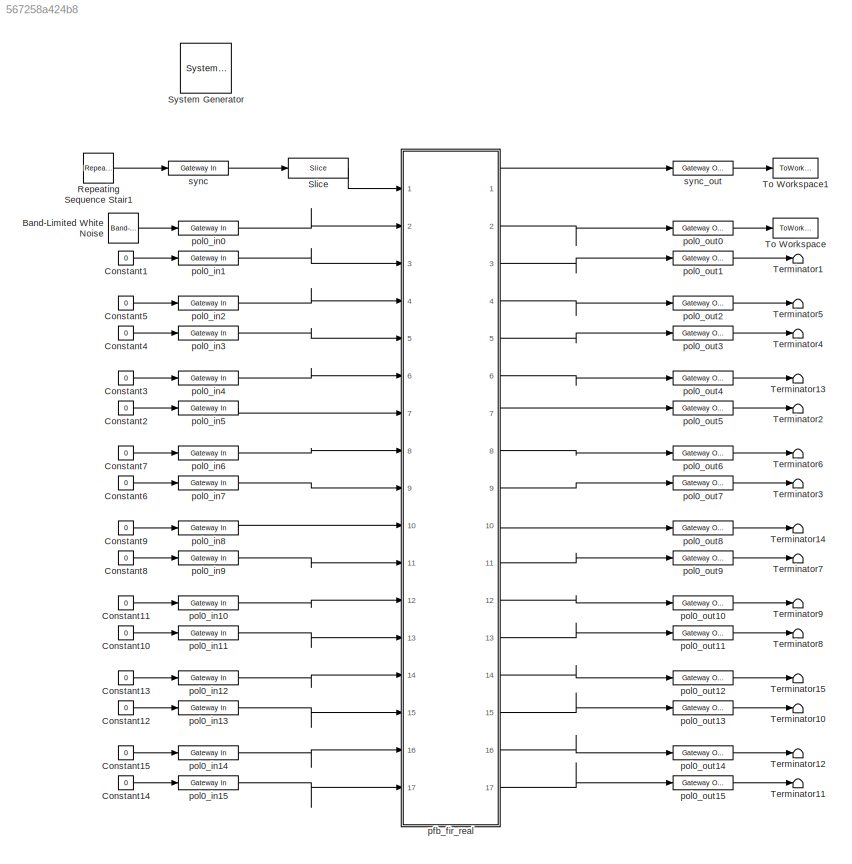
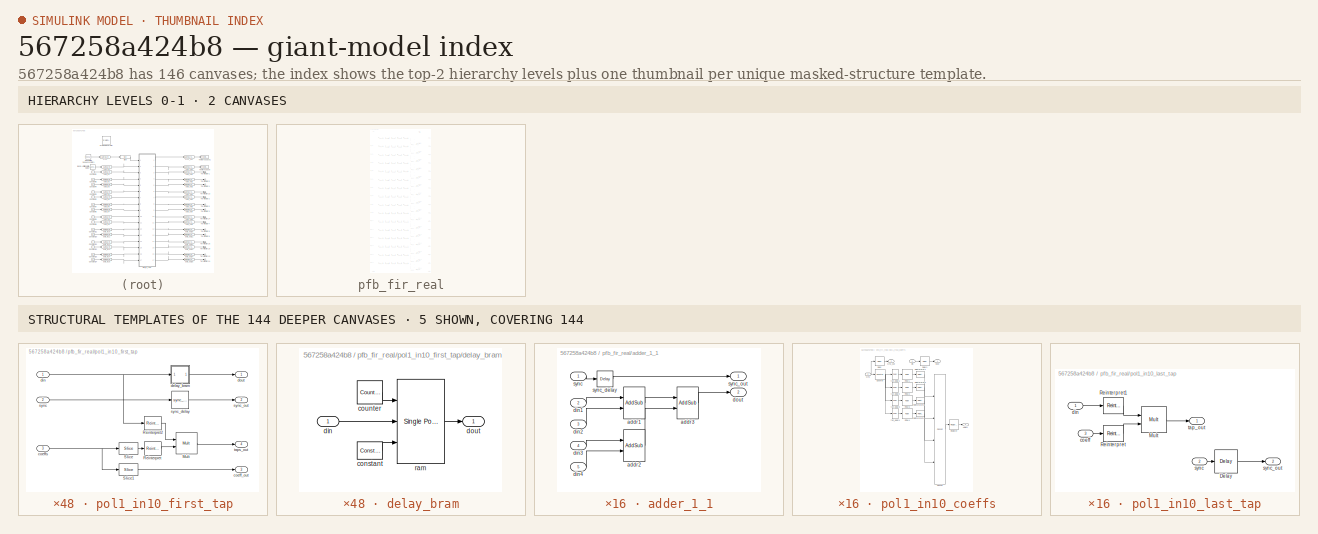
[diagram: thumbnail index - top-2 hierarchy levels (2 canvases) + 5 structural-template representatives of the remaining 144 canvases]
MODEL slx_567258a424b8
KIND model
CONFIG AbsTol = auto
CONFIG EnableMultiTasking = on
CONFIG FixedStep = auto
CONFIG MaxStep = auto
CONFIG MinStep = auto
CONFIG RelTol = 1e-3
CONFIG SampleTimeConstraint = Unconstrained
CONFIG Solver = ode45
CONFIG SolverName = ode45
CONFIG StartTime = 0.0
CONFIG StopTime = 10.0
BLOCK [Reference]  System Generator  REF=xbsIndex_r4/ System Generator
  AttributesFormatString = System\nGenerator
  Ports = []
  SourceBlock = xbsIndex_r4/ System Generator
  SourceType = Xilinx System Generator Block
  Tag = genX
  UserDataPersistent = on
BLOCK [Reference] Band-Limited White Noise  REF=simulink/Sources/Band-Limited
White Noise
  Ports = [0, 1]
  SourceBlock = simulink/Sources/Band-Limited\nWhite Noise
  SourceType = Band-Limited White Noise.
BLOCK [Constant] Constant1
  Value = 0
BLOCK [Constant] Constant10
  Value = 0
BLOCK [Constant] Constant11
  Value = 0
BLOCK [Constant] Constant12
  Value = 0
BLOCK [Constant] Constant13
  Value = 0
BLOCK [Constant] Constant14
  Value = 0
BLOCK [Constant] Constant15
  Value = 0
BLOCK [Constant] Constant2
  Value = 0
BLOCK [Constant] Constant3
  Value = 0
BLOCK [Constant] Constant4
  Value = 0
BLOCK [Constant] Constant5
  Value = 0
BLOCK [Constant] Constant6
  Value = 0
BLOCK [Constant] Constant7
  Value = 0
BLOCK [Constant] Constant8
  Value = 0
BLOCK [Constant] Constant9
  Value = 0
BLOCK [Reference] Repeating Sequence Stair1  REF=simulink/Sources/Repeating
Sequence
Stair
  Ports = [0, 1]
  SourceBlock = simulink/Sources/Repeating\nSequence\nStair
  SourceType = Repeating Sequence Stair
BLOCK [Reference] Slice  REF=xbsIndex_r4/Slice
  Ports = [1, 1]
  SourceBlock = xbsIndex_r4/Slice
  SourceType = Xilinx Bit Slice Extractor Block
BLOCK [Terminator] Terminator1
BLOCK [Terminator] Terminator10
BLOCK [Terminator] Terminator11
BLOCK [Terminator] Terminator12
BLOCK [Terminator] Terminator13
BLOCK [Terminator] Terminator14
BLOCK [Terminator] Terminator15
BLOCK [Terminator] Terminator2
BLOCK [Terminator] Terminator3
BLOCK [Terminator] Terminator4
BLOCK [Terminator] Terminator5
BLOCK [Terminator] Terminator6
BLOCK [Terminator] Terminator7
BLOCK [Terminator] Terminator8
BLOCK [Terminator] Terminator9
BLOCK [ToWorkspace] To Workspace
  MaxDataPoints = inf
  Ports = [1]
  SampleTime = -1
  VariableName = pfbout
BLOCK [ToWorkspace] To Workspace1
  MaxDataPoints = inf
  Ports = [1]
  SampleTime = -1
  VariableName = pfbsync
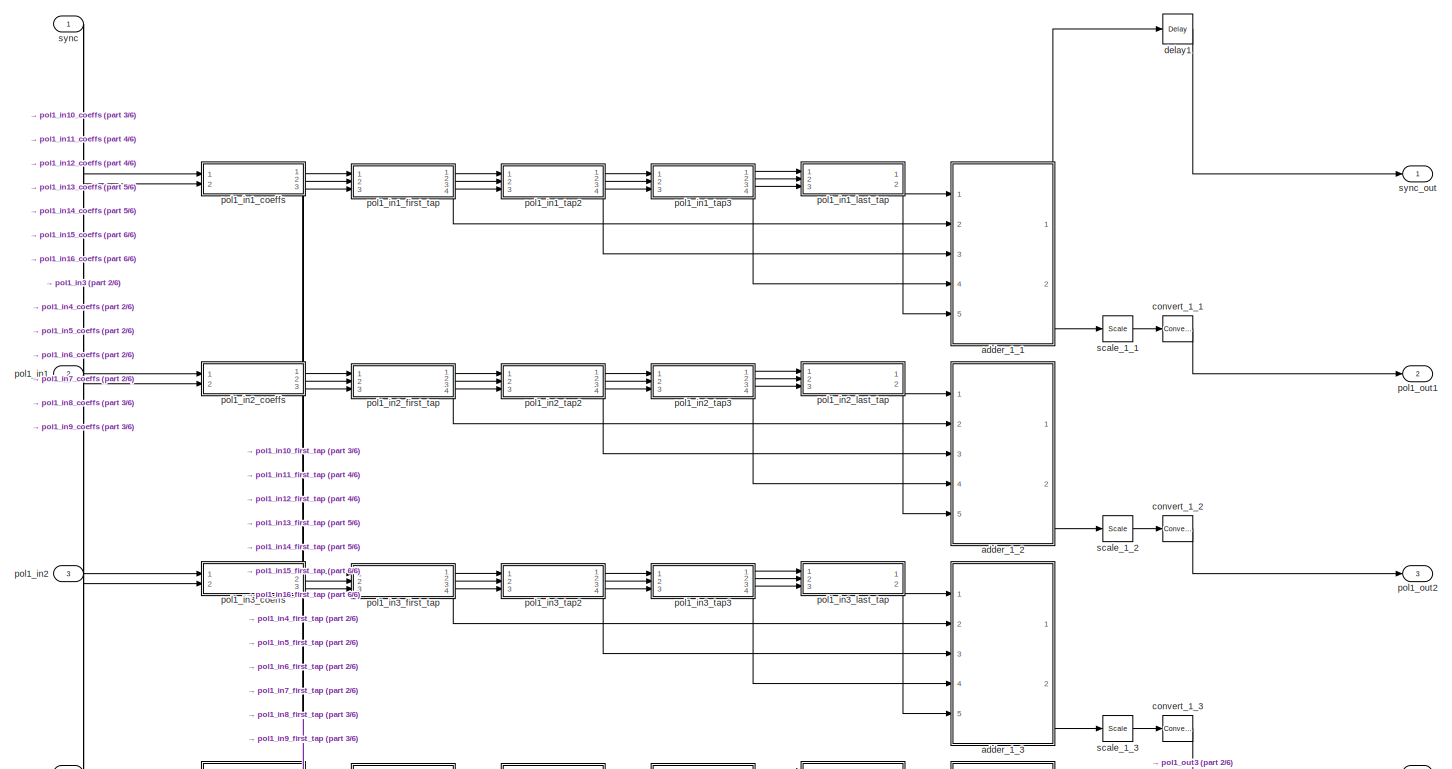
[diagram: pfb_fir_real - part 1/6, full width, top band]
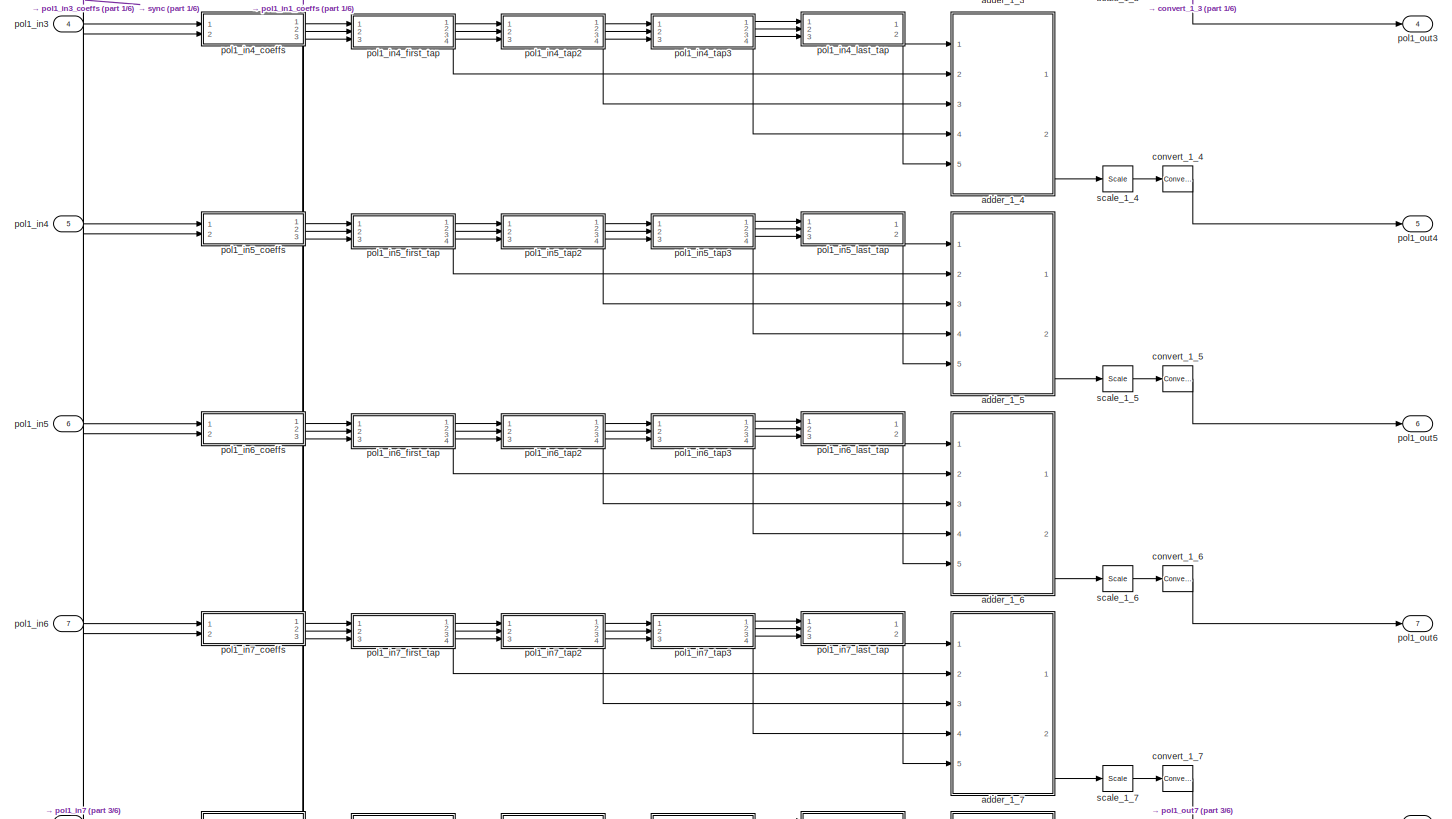
[diagram: pfb_fir_real - part 2/6, full width, middle band]
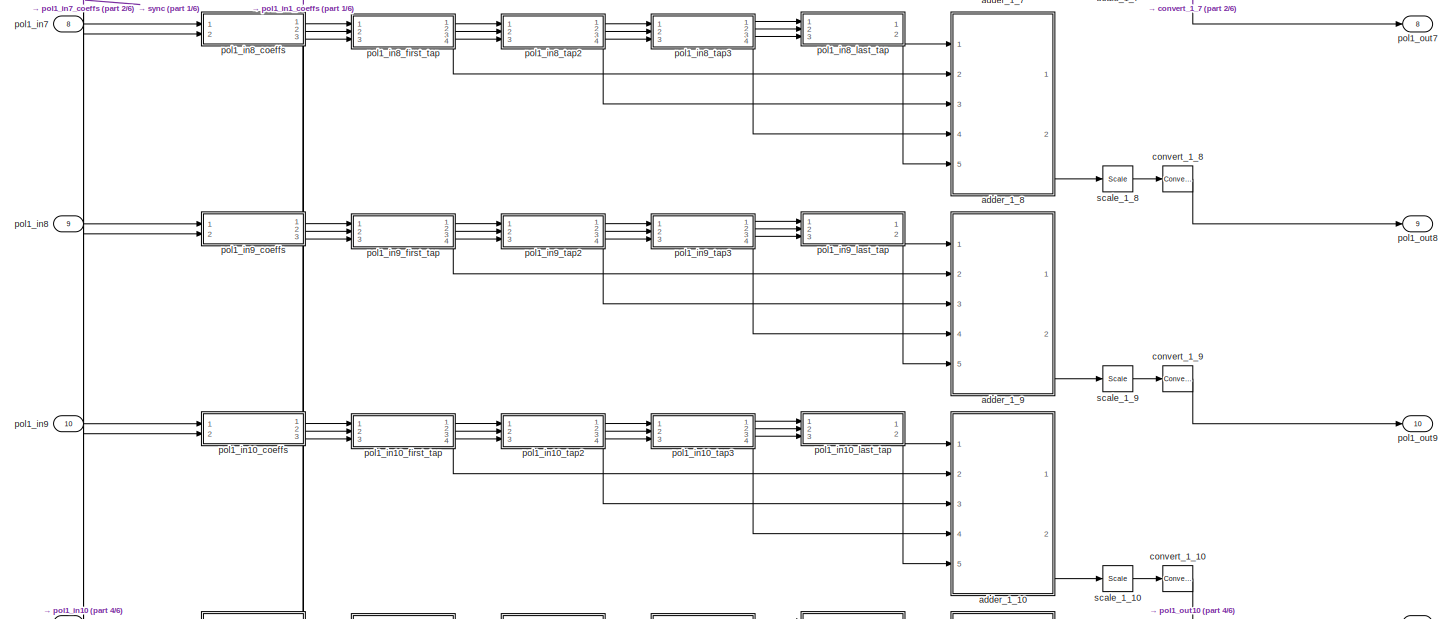
[diagram: pfb_fir_real - part 3/6, full width, middle band]
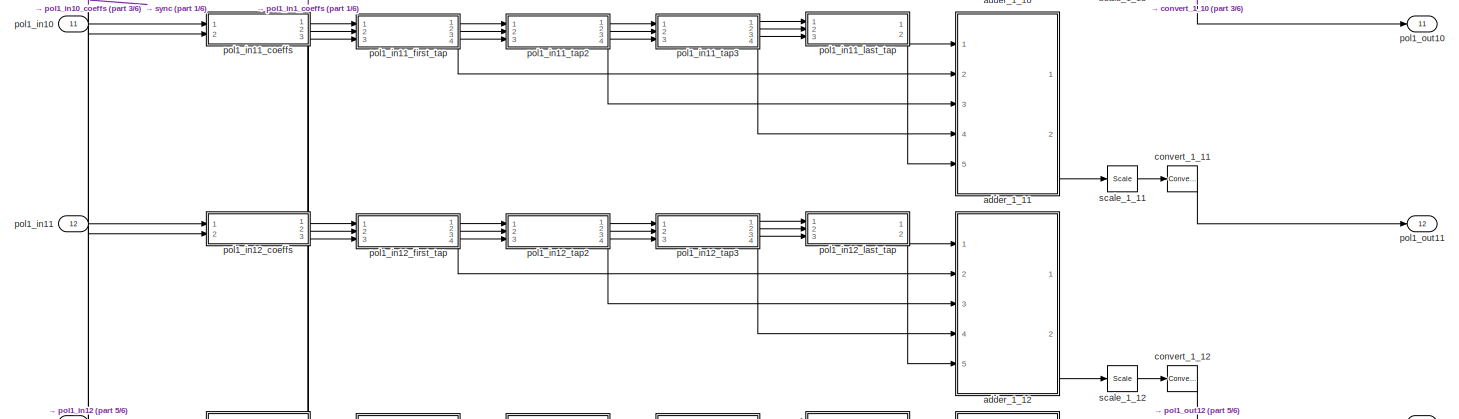
[diagram: pfb_fir_real - part 4/6, full width, bottom band]
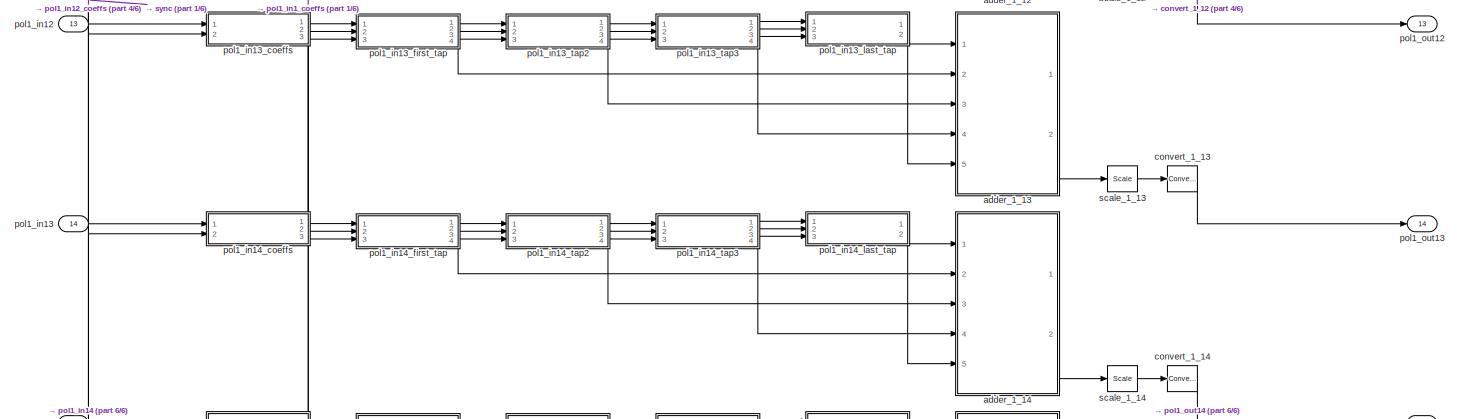
[diagram: pfb_fir_real - part 5/6, full width, bottom band]
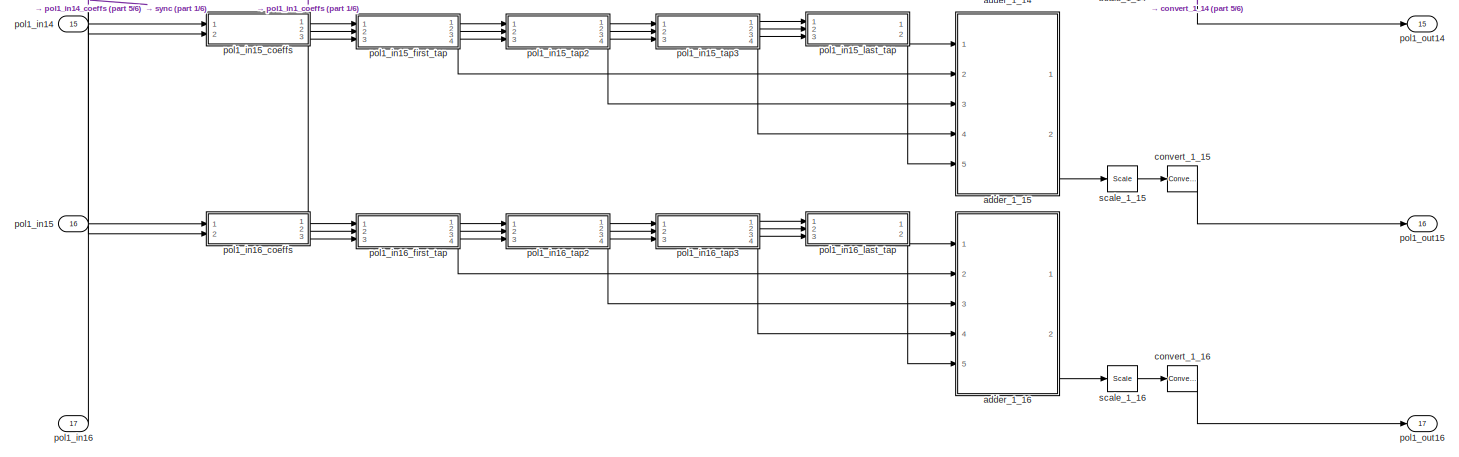
[diagram: pfb_fir_real - part 6/6, full width, bottom band]
BLOCK [SubSystem] pfb_fir_real
  AncestorBlock = casper_library_pfbs/pfb_fir_real
  AttributesFormatString = taps=4, add_latency=1
  Ports = [17, 17]
  RequestExecContextInheritance = off
  Tag = casper:pfb_fir_real
  UserDataPersistent = on
  Variant = off
BLOCK [SubSystem] pfb_fir_real/adder_1_1
  AncestorBlock = casper_library_misc/adder_tree
  AttributesFormatString = latency 2
  Ports = [5, 2]
  RequestExecContextInheritance = off
  UserDataPersistent = on
  Variant = off
BLOCK [Reference] pfb_fir_real/adder_1_1/addr1  REF=xbsIndex_r4/AddSub
  Ports = [2, 1]
  SourceBlock = xbsIndex_r4/AddSub
  SourceType = Xilinx Adder/Subtracter Block
BLOCK [Reference] pfb_fir_real/adder_1_1/addr2  REF=xbsIndex_r4/AddSub
  Ports = [2, 1]
  SourceBlock = xbsIndex_r4/AddSub
  SourceType = Xilinx Adder/Subtracter Block
BLOCK [Reference] pfb_fir_real/adder_1_1/addr3  REF=xbsIndex_r4/AddSub
  Ports = [2, 1]
  SourceBlock = xbsIndex_r4/AddSub
  SourceType = Xilinx Adder/Subtracter Block
BLOCK [Inport] pfb_fir_real/adder_1_1/din1
  IconDisplay = Port number
  Port = 2
BLOCK [Inport] pfb_fir_real/adder_1_1/din2
  IconDisplay = Port number
  Port = 3
BLOCK [Inport] pfb_fir_real/adder_1_1/din3
  IconDisplay = Port number
  Port = 4
BLOCK [Inport] pfb_fir_real/adder_1_1/din4
  IconDisplay = Port number
  Port = 5
BLOCK [Outport] pfb_fir_real/adder_1_1/dout
  IconDisplay = Port number
  Port = 2
BLOCK [Inport] pfb_fir_real/adder_1_1/sync
  IconDisplay = Port number
BLOCK [Reference] pfb_fir_real/adder_1_1/sync_delay  REF=xbsIndex_r4/Delay
  Ports = [1, 1]
  SourceBlock = xbsIndex_r4/Delay
  SourceType = Xilinx Delay Block
BLOCK [Outport] pfb_fir_real/adder_1_1/sync_out
  IconDisplay = Port number
BLOCK [SubSystem] pfb_fir_real/adder_1_10
  AncestorBlock = casper_library_misc/adder_tree
  AttributesFormatString = latency 2
  Ports = [5, 2]
  RequestExecContextInheritance = off
  UserDataPersistent = on
  Variant = off
BLOCK [Reference] pfb_fir_real/adder_1_10/addr1  REF=xbsIndex_r4/AddSub
  Ports = [2, 1]
  SourceBlock = xbsIndex_r4/AddSub
  SourceType = Xilinx Adder/Subtracter Block
BLOCK [Reference] pfb_fir_real/adder_1_10/addr2  REF=xbsIndex_r4/AddSub
  Ports = [2, 1]
  SourceBlock = xbsIndex_r4/AddSub
  SourceType = Xilinx Adder/Subtracter Block
BLOCK [Reference] pfb_fir_real/adder_1_10/addr3  REF=xbsIndex_r4/AddSub
  Ports = [2, 1]
  SourceBlock = xbsIndex_r4/AddSub
  SourceType = Xilinx Adder/Subtracter Block
BLOCK [Inport] pfb_fir_real/adder_1_10/din1
  IconDisplay = Port number
  Port = 2
BLOCK [Inport] pfb_fir_real/adder_1_10/din2
  IconDisplay = Port number
  Port = 3
BLOCK [Inport] pfb_fir_real/adder_1_10/din3
  IconDisplay = Port number
  Port = 4
BLOCK [Inport] pfb_fir_real/adder_1_10/din4
  IconDisplay = Port number
  Port = 5
BLOCK [Outport] pfb_fir_real/adder_1_10/dout
  IconDisplay = Port number
  Port = 2
BLOCK [Inport] pfb_fir_real/adder_1_10/sync
  IconDisplay = Port number
BLOCK [Reference] pfb_fir_real/adder_1_10/sync_delay  REF=xbsIndex_r4/Delay
  Ports = [1, 1]
  SourceBlock = xbsIndex_r4/Delay
  SourceType = Xilinx Delay Block
BLOCK [Outport] pfb_fir_real/adder_1_10/sync_out
  IconDisplay = Port number
BLOCK [SubSystem] pfb_fir_real/adder_1_11
  AncestorBlock = casper_library_misc/adder_tree
  AttributesFormatString = latency 2
  Ports = [5, 2]
  RequestExecContextInheritance = off
  UserDataPersistent = on
  Variant = off
BLOCK [Reference] pfb_fir_real/adder_1_11/addr1  REF=xbsIndex_r4/AddSub
  Ports = [2, 1]
  SourceBlock = xbsIndex_r4/AddSub
  SourceType = Xilinx Adder/Subtracter Block
BLOCK [Reference] pfb_fir_real/adder_1_11/addr2  REF=xbsIndex_r4/AddSub
  Ports = [2, 1]
  SourceBlock = xbsIndex_r4/AddSub
  SourceType = Xilinx Adder/Subtracter Block
BLOCK [Reference] pfb_fir_real/adder_1_11/addr3  REF=xbsIndex_r4/AddSub
  Ports = [2, 1]
  SourceBlock = xbsIndex_r4/AddSub
  SourceType = Xilinx Adder/Subtracter Block
BLOCK [Inport] pfb_fir_real/adder_1_11/din1
  IconDisplay = Port number
  Port = 2
BLOCK [Inport] pfb_fir_real/adder_1_11/din2
  IconDisplay = Port number
  Port = 3
BLOCK [Inport] pfb_fir_real/adder_1_11/din3
  IconDisplay = Port number
  Port = 4
BLOCK [Inport] pfb_fir_real/adder_1_11/din4
  IconDisplay = Port number
  Port = 5
BLOCK [Outport] pfb_fir_real/adder_1_11/dout
  IconDisplay = Port number
  Port = 2
BLOCK [Inport] pfb_fir_real/adder_1_11/sync
  IconDisplay = Port number
BLOCK [Reference] pfb_fir_real/adder_1_11/sync_delay  REF=xbsIndex_r4/Delay
  Ports = [1, 1]
  SourceBlock = xbsIndex_r4/Delay
  SourceType = Xilinx Delay Block
BLOCK [Outport] pfb_fir_real/adder_1_11/sync_out
  IconDisplay = Port number
BLOCK [SubSystem] pfb_fir_real/adder_1_12
  AncestorBlock = casper_library_misc/adder_tree
  AttributesFormatString = latency 2
  Ports = [5, 2]
  RequestExecContextInheritance = off
  UserDataPersistent = on
  Variant = off
BLOCK [Reference] pfb_fir_real/adder_1_12/addr1  REF=xbsIndex_r4/AddSub
  Ports = [2, 1]
  SourceBlock = xbsIndex_r4/AddSub
  SourceType = Xilinx Adder/Subtracter Block
BLOCK [Reference] pfb_fir_real/adder_1_12/addr2  REF=xbsIndex_r4/AddSub
  Ports = [2, 1]
  SourceBlock = xbsIndex_r4/AddSub
  SourceType = Xilinx Adder/Subtracter Block
BLOCK [Reference] pfb_fir_real/adder_1_12/addr3  REF=xbsIndex_r4/AddSub
  Ports = [2, 1]
  SourceBlock = xbsIndex_r4/AddSub
  SourceType = Xilinx Adder/Subtracter Block
BLOCK [Inport] pfb_fir_real/adder_1_12/din1
  IconDisplay = Port number
  Port = 2
BLOCK [Inport] pfb_fir_real/adder_1_12/din2
  IconDisplay = Port number
  Port = 3
BLOCK [Inport] pfb_fir_real/adder_1_12/din3
  IconDisplay = Port number
  Port = 4
BLOCK [Inport] pfb_fir_real/adder_1_12/din4
  IconDisplay = Port number
  Port = 5
BLOCK [Outport] pfb_fir_real/adder_1_12/dout
  IconDisplay = Port number
  Port = 2
BLOCK [Inport] pfb_fir_real/adder_1_12/sync
  IconDisplay = Port number
BLOCK [Reference] pfb_fir_real/adder_1_12/sync_delay  REF=xbsIndex_r4/Delay
  Ports = [1, 1]
  SourceBlock = xbsIndex_r4/Delay
  SourceType = Xilinx Delay Block
BLOCK [Outport] pfb_fir_real/adder_1_12/sync_out
  IconDisplay = Port number
BLOCK [SubSystem] pfb_fir_real/adder_1_13
  AncestorBlock = casper_library_misc/adder_tree
  AttributesFormatString = latency 2
  Ports = [5, 2]
  RequestExecContextInheritance = off
  UserDataPersistent = on
  Variant = off
BLOCK [Reference] pfb_fir_real/adder_1_13/addr1  REF=xbsIndex_r4/AddSub
  Ports = [2, 1]
  SourceBlock = xbsIndex_r4/AddSub
  SourceType = Xilinx Adder/Subtracter Block
BLOCK [Reference] pfb_fir_real/adder_1_13/addr2  REF=xbsIndex_r4/AddSub
  Ports = [2, 1]
  SourceBlock = xbsIndex_r4/AddSub
  SourceType = Xilinx Adder/Subtracter Block
BLOCK [Reference] pfb_fir_real/adder_1_13/addr3  REF=xbsIndex_r4/AddSub
  Ports = [2, 1]
  SourceBlock = xbsIndex_r4/AddSub
  SourceType = Xilinx Adder/Subtracter Block
BLOCK [Inport] pfb_fir_real/adder_1_13/din1
  IconDisplay = Port number
  Port = 2
BLOCK [Inport] pfb_fir_real/adder_1_13/din2
  IconDisplay = Port number
  Port = 3
BLOCK [Inport] pfb_fir_real/adder_1_13/din3
  IconDisplay = Port number
  Port = 4
BLOCK [Inport] pfb_fir_real/adder_1_13/din4
  IconDisplay = Port number
  Port = 5
BLOCK [Outport] pfb_fir_real/adder_1_13/dout
  IconDisplay = Port number
  Port = 2
BLOCK [Inport] pfb_fir_real/adder_1_13/sync
  IconDisplay = Port number
BLOCK [Reference] pfb_fir_real/adder_1_13/sync_delay  REF=xbsIndex_r4/Delay
  Ports = [1, 1]
  SourceBlock = xbsIndex_r4/Delay
  SourceType = Xilinx Delay Block
BLOCK [Outport] pfb_fir_real/adder_1_13/sync_out
  IconDisplay = Port number
BLOCK [SubSystem] pfb_fir_real/adder_1_14
  AncestorBlock = casper_library_misc/adder_tree
  AttributesFormatString = latency 2
  Ports = [5, 2]
  RequestExecContextInheritance = off
  UserDataPersistent = on
  Variant = off
BLOCK [Reference] pfb_fir_real/adder_1_14/addr1  REF=xbsIndex_r4/AddSub
  Ports = [2, 1]
  SourceBlock = xbsIndex_r4/AddSub
  SourceType = Xilinx Adder/Subtracter Block
BLOCK [Reference] pfb_fir_real/adder_1_14/addr2  REF=xbsIndex_r4/AddSub
  Ports = [2, 1]
  SourceBlock = xbsIndex_r4/AddSub
  SourceType = Xilinx Adder/Subtracter Block
BLOCK [Reference] pfb_fir_real/adder_1_14/addr3  REF=xbsIndex_r4/AddSub
  Ports = [2, 1]
  SourceBlock = xbsIndex_r4/AddSub
  SourceType = Xilinx Adder/Subtracter Block
BLOCK [Inport] pfb_fir_real/adder_1_14/din1
  IconDisplay = Port number
  Port = 2
BLOCK [Inport] pfb_fir_real/adder_1_14/din2
  IconDisplay = Port number
  Port = 3
BLOCK [Inport] pfb_fir_real/adder_1_14/din3
  IconDisplay = Port number
  Port = 4
BLOCK [Inport] pfb_fir_real/adder_1_14/din4
  IconDisplay = Port number
  Port = 5
BLOCK [Outport] pfb_fir_real/adder_1_14/dout
  IconDisplay = Port number
  Port = 2
BLOCK [Inport] pfb_fir_real/adder_1_14/sync
  IconDisplay = Port number
BLOCK [Reference] pfb_fir_real/adder_1_14/sync_delay  REF=xbsIndex_r4/Delay
  Ports = [1, 1]
  SourceBlock = xbsIndex_r4/Delay
  SourceType = Xilinx Delay Block
BLOCK [Outport] pfb_fir_real/adder_1_14/sync_out
  IconDisplay = Port number
BLOCK [SubSystem] pfb_fir_real/adder_1_15
  AncestorBlock = casper_library_misc/adder_tree
  AttributesFormatString = latency 2
  Ports = [5, 2]
  RequestExecContextInheritance = off
  UserDataPersistent = on
  Variant = off
BLOCK [Reference] pfb_fir_real/adder_1_15/addr1  REF=xbsIndex_r4/AddSub
  Ports = [2, 1]
  SourceBlock = xbsIndex_r4/AddSub
  SourceType = Xilinx Adder/Subtracter Block
BLOCK [Reference] pfb_fir_real/adder_1_15/addr2  REF=xbsIndex_r4/AddSub
  Ports = [2, 1]
  SourceBlock = xbsIndex_r4/AddSub
  SourceType = Xilinx Adder/Subtracter Block
BLOCK [Reference] pfb_fir_real/adder_1_15/addr3  REF=xbsIndex_r4/AddSub
  Ports = [2, 1]
  SourceBlock = xbsIndex_r4/AddSub
  SourceType = Xilinx Adder/Subtracter Block
BLOCK [Inport] pfb_fir_real/adder_1_15/din1
  IconDisplay = Port number
  Port = 2
BLOCK [Inport] pfb_fir_real/adder_1_15/din2
  IconDisplay = Port number
  Port = 3
BLOCK [Inport] pfb_fir_real/adder_1_15/din3
  IconDisplay = Port number
  Port = 4
BLOCK [Inport] pfb_fir_real/adder_1_15/din4
  IconDisplay = Port number
  Port = 5
BLOCK [Outport] pfb_fir_real/adder_1_15/dout
  IconDisplay = Port number
  Port = 2
BLOCK [Inport] pfb_fir_real/adder_1_15/sync
  IconDisplay = Port number
BLOCK [Reference] pfb_fir_real/adder_1_15/sync_delay  REF=xbsIndex_r4/Delay
  Ports = [1, 1]
  SourceBlock = xbsIndex_r4/Delay
  SourceType = Xilinx Delay Block
BLOCK [Outport] pfb_fir_real/adder_1_15/sync_out
  IconDisplay = Port number
BLOCK [SubSystem] pfb_fir_real/adder_1_16
  AncestorBlock = casper_library_misc/adder_tree
  AttributesFormatString = latency 2
  Ports = [5, 2]
  RequestExecContextInheritance = off
  UserDataPersistent = on
  Variant = off
BLOCK [Reference] pfb_fir_real/adder_1_16/addr1  REF=xbsIndex_r4/AddSub
  Ports = [2, 1]
  SourceBlock = xbsIndex_r4/AddSub
  SourceType = Xilinx Adder/Subtracter Block
BLOCK [Reference] pfb_fir_real/adder_1_16/addr2  REF=xbsIndex_r4/AddSub
  Ports = [2, 1]
  SourceBlock = xbsIndex_r4/AddSub
  SourceType = Xilinx Adder/Subtracter Block
BLOCK [Reference] pfb_fir_real/adder_1_16/addr3  REF=xbsIndex_r4/AddSub
  Ports = [2, 1]
  SourceBlock = xbsIndex_r4/AddSub
  SourceType = Xilinx Adder/Subtracter Block
BLOCK [Inport] pfb_fir_real/adder_1_16/din1
  IconDisplay = Port number
  Port = 2
BLOCK [Inport] pfb_fir_real/adder_1_16/din2
  IconDisplay = Port number
  Port = 3
BLOCK [Inport] pfb_fir_real/adder_1_16/din3
  IconDisplay = Port number
  Port = 4
BLOCK [Inport] pfb_fir_real/adder_1_16/din4
  IconDisplay = Port number
  Port = 5
BLOCK [Outport] pfb_fir_real/adder_1_16/dout
  IconDisplay = Port number
  Port = 2
BLOCK [Inport] pfb_fir_real/adder_1_16/sync
  IconDisplay = Port number
BLOCK [Reference] pfb_fir_real/adder_1_16/sync_delay  REF=xbsIndex_r4/Delay
  Ports = [1, 1]
  SourceBlock = xbsIndex_r4/Delay
  SourceType = Xilinx Delay Block
BLOCK [Outport] pfb_fir_real/adder_1_16/sync_out
  IconDisplay = Port number
BLOCK [SubSystem] pfb_fir_real/adder_1_2
  AncestorBlock = casper_library_misc/adder_tree
  AttributesFormatString = latency 2
  Ports = [5, 2]
  RequestExecContextInheritance = off
  UserDataPersistent = on
  Variant = off
BLOCK [Reference] pfb_fir_real/adder_1_2/addr1  REF=xbsIndex_r4/AddSub
  Ports = [2, 1]
  SourceBlock = xbsIndex_r4/AddSub
  SourceType = Xilinx Adder/Subtracter Block
BLOCK [Reference] pfb_fir_real/adder_1_2/addr2  REF=xbsIndex_r4/AddSub
  Ports = [2, 1]
  SourceBlock = xbsIndex_r4/AddSub
  SourceType = Xilinx Adder/Subtracter Block
BLOCK [Reference] pfb_fir_real/adder_1_2/addr3  REF=xbsIndex_r4/AddSub
  Ports = [2, 1]
  SourceBlock = xbsIndex_r4/AddSub
  SourceType = Xilinx Adder/Subtracter Block
BLOCK [Inport] pfb_fir_real/adder_1_2/din1
  IconDisplay = Port number
  Port = 2
BLOCK [Inport] pfb_fir_real/adder_1_2/din2
  IconDisplay = Port number
  Port = 3
BLOCK [Inport] pfb_fir_real/adder_1_2/din3
  IconDisplay = Port number
  Port = 4
BLOCK [Inport] pfb_fir_real/adder_1_2/din4
  IconDisplay = Port number
  Port = 5
BLOCK [Outport] pfb_fir_real/adder_1_2/dout
  IconDisplay = Port number
  Port = 2
BLOCK [Inport] pfb_fir_real/adder_1_2/sync
  IconDisplay = Port number
BLOCK [Reference] pfb_fir_real/adder_1_2/sync_delay  REF=xbsIndex_r4/Delay
  Ports = [1, 1]
  SourceBlock = xbsIndex_r4/Delay
  SourceType = Xilinx Delay Block
BLOCK [Outport] pfb_fir_real/adder_1_2/sync_out
  IconDisplay = Port number
BLOCK [SubSystem] pfb_fir_real/adder_1_3
  AncestorBlock = casper_library_misc/adder_tree
  AttributesFormatString = latency 2
  Ports = [5, 2]
  RequestExecContextInheritance = off
  UserDataPersistent = on
  Variant = off
BLOCK [Reference] pfb_fir_real/adder_1_3/addr1  REF=xbsIndex_r4/AddSub
  Ports = [2, 1]
  SourceBlock = xbsIndex_r4/AddSub
  SourceType = Xilinx Adder/Subtracter Block
BLOCK [Reference] pfb_fir_real/adder_1_3/addr2  REF=xbsIndex_r4/AddSub
  Ports = [2, 1]
  SourceBlock = xbsIndex_r4/AddSub
  SourceType = Xilinx Adder/Subtracter Block
BLOCK [Reference] pfb_fir_real/adder_1_3/addr3  REF=xbsIndex_r4/AddSub
  Ports = [2, 1]
  SourceBlock = xbsIndex_r4/AddSub
  SourceType = Xilinx Adder/Subtracter Block
BLOCK [Inport] pfb_fir_real/adder_1_3/din1
  IconDisplay = Port number
  Port = 2
BLOCK [Inport] pfb_fir_real/adder_1_3/din2
  IconDisplay = Port number
  Port = 3
BLOCK [Inport] pfb_fir_real/adder_1_3/din3
  IconDisplay = Port number
  Port = 4
BLOCK [Inport] pfb_fir_real/adder_1_3/din4
  IconDisplay = Port number
  Port = 5
BLOCK [Outport] pfb_fir_real/adder_1_3/dout
  IconDisplay = Port number
  Port = 2
BLOCK [Inport] pfb_fir_real/adder_1_3/sync
  IconDisplay = Port number
BLOCK [Reference] pfb_fir_real/adder_1_3/sync_delay  REF=xbsIndex_r4/Delay
  Ports = [1, 1]
  SourceBlock = xbsIndex_r4/Delay
  SourceType = Xilinx Delay Block
BLOCK [Outport] pfb_fir_real/adder_1_3/sync_out
  IconDisplay = Port number
BLOCK [SubSystem] pfb_fir_real/adder_1_4
  AncestorBlock = casper_library_misc/adder_tree
  AttributesFormatString = latency 2
  Ports = [5, 2]
  RequestExecContextInheritance = off
  UserDataPersistent = on
  Variant = off
BLOCK [Reference] pfb_fir_real/adder_1_4/addr1  REF=xbsIndex_r4/AddSub
  Ports = [2, 1]
  SourceBlock = xbsIndex_r4/AddSub
  SourceType = Xilinx Adder/Subtracter Block
BLOCK [Reference] pfb_fir_real/adder_1_4/addr2  REF=xbsIndex_r4/AddSub
  Ports = [2, 1]
  SourceBlock = xbsIndex_r4/AddSub
  SourceType = Xilinx Adder/Subtracter Block
BLOCK [Reference] pfb_fir_real/adder_1_4/addr3  REF=xbsIndex_r4/AddSub
  Ports = [2, 1]
  SourceBlock = xbsIndex_r4/AddSub
  SourceType = Xilinx Adder/Subtracter Block
BLOCK [Inport] pfb_fir_real/adder_1_4/din1
  IconDisplay = Port number
  Port = 2
BLOCK [Inport] pfb_fir_real/adder_1_4/din2
  IconDisplay = Port number
  Port = 3
BLOCK [Inport] pfb_fir_real/adder_1_4/din3
  IconDisplay = Port number
  Port = 4
BLOCK [Inport] pfb_fir_real/adder_1_4/din4
  IconDisplay = Port number
  Port = 5
BLOCK [Outport] pfb_fir_real/adder_1_4/dout
  IconDisplay = Port number
  Port = 2
BLOCK [Inport] pfb_fir_real/adder_1_4/sync
  IconDisplay = Port number
BLOCK [Reference] pfb_fir_real/adder_1_4/sync_delay  REF=xbsIndex_r4/Delay
  Ports = [1, 1]
  SourceBlock = xbsIndex_r4/Delay
  SourceType = Xilinx Delay Block
BLOCK [Outport] pfb_fir_real/adder_1_4/sync_out
  IconDisplay = Port number
BLOCK [SubSystem] pfb_fir_real/adder_1_5
  AncestorBlock = casper_library_misc/adder_tree
  AttributesFormatString = latency 2
  Ports = [5, 2]
  RequestExecContextInheritance = off
  UserDataPersistent = on
  Variant = off
BLOCK [Reference] pfb_fir_real/adder_1_5/addr1  REF=xbsIndex_r4/AddSub
  Ports = [2, 1]
  SourceBlock = xbsIndex_r4/AddSub
  SourceType = Xilinx Adder/Subtracter Block
BLOCK [Reference] pfb_fir_real/adder_1_5/addr2  REF=xbsIndex_r4/AddSub
  Ports = [2, 1]
  SourceBlock = xbsIndex_r4/AddSub
  SourceType = Xilinx Adder/Subtracter Block
BLOCK [Reference] pfb_fir_real/adder_1_5/addr3  REF=xbsIndex_r4/AddSub
  Ports = [2, 1]
  SourceBlock = xbsIndex_r4/AddSub
  SourceType = Xilinx Adder/Subtracter Block
BLOCK [Inport] pfb_fir_real/adder_1_5/din1
  IconDisplay = Port number
  Port = 2
BLOCK [Inport] pfb_fir_real/adder_1_5/din2
  IconDisplay = Port number
  Port = 3
BLOCK [Inport] pfb_fir_real/adder_1_5/din3
  IconDisplay = Port number
  Port = 4
BLOCK [Inport] pfb_fir_real/adder_1_5/din4
  IconDisplay = Port number
  Port = 5
BLOCK [Outport] pfb_fir_real/adder_1_5/dout
  IconDisplay = Port number
  Port = 2
BLOCK [Inport] pfb_fir_real/adder_1_5/sync
  IconDisplay = Port number
BLOCK [Reference] pfb_fir_real/adder_1_5/sync_delay  REF=xbsIndex_r4/Delay
  Ports = [1, 1]
  SourceBlock = xbsIndex_r4/Delay
  SourceType = Xilinx Delay Block
BLOCK [Outport] pfb_fir_real/adder_1_5/sync_out
  IconDisplay = Port number
BLOCK [SubSystem] pfb_fir_real/adder_1_6
  AncestorBlock = casper_library_misc/adder_tree
  AttributesFormatString = latency 2
  Ports = [5, 2]
  RequestExecContextInheritance = off
  UserDataPersistent = on
  Variant = off
BLOCK [Reference] pfb_fir_real/adder_1_6/addr1  REF=xbsIndex_r4/AddSub
  Ports = [2, 1]
  SourceBlock = xbsIndex_r4/AddSub
  SourceType = Xilinx Adder/Subtracter Block
BLOCK [Reference] pfb_fir_real/adder_1_6/addr2  REF=xbsIndex_r4/AddSub
  Ports = [2, 1]
  SourceBlock = xbsIndex_r4/AddSub
  SourceType = Xilinx Adder/Subtracter Block
BLOCK [Reference] pfb_fir_real/adder_1_6/addr3  REF=xbsIndex_r4/AddSub
  Ports = [2, 1]
  SourceBlock = xbsIndex_r4/AddSub
  SourceType = Xilinx Adder/Subtracter Block
BLOCK [Inport] pfb_fir_real/adder_1_6/din1
  IconDisplay = Port number
  Port = 2
BLOCK [Inport] pfb_fir_real/adder_1_6/din2
  IconDisplay = Port number
  Port = 3
BLOCK [Inport] pfb_fir_real/adder_1_6/din3
  IconDisplay = Port number
  Port = 4
BLOCK [Inport] pfb_fir_real/adder_1_6/din4
  IconDisplay = Port number
  Port = 5
BLOCK [Outport] pfb_fir_real/adder_1_6/dout
  IconDisplay = Port number
  Port = 2
BLOCK [Inport] pfb_fir_real/adder_1_6/sync
  IconDisplay = Port number
BLOCK [Reference] pfb_fir_real/adder_1_6/sync_delay  REF=xbsIndex_r4/Delay
  Ports = [1, 1]
  SourceBlock = xbsIndex_r4/Delay
  SourceType = Xilinx Delay Block
BLOCK [Outport] pfb_fir_real/adder_1_6/sync_out
  IconDisplay = Port number
BLOCK [SubSystem] pfb_fir_real/adder_1_7
  AncestorBlock = casper_library_misc/adder_tree
  AttributesFormatString = latency 2
  Ports = [5, 2]
  RequestExecContextInheritance = off
  UserDataPersistent = on
  Variant = off
BLOCK [Reference] pfb_fir_real/adder_1_7/addr1  REF=xbsIndex_r4/AddSub
  Ports = [2, 1]
  SourceBlock = xbsIndex_r4/AddSub
  SourceType = Xilinx Adder/Subtracter Block
BLOCK [Reference] pfb_fir_real/adder_1_7/addr2  REF=xbsIndex_r4/AddSub
  Ports = [2, 1]
  SourceBlock = xbsIndex_r4/AddSub
  SourceType = Xilinx Adder/Subtracter Block
BLOCK [Reference] pfb_fir_real/adder_1_7/addr3  REF=xbsIndex_r4/AddSub
  Ports = [2, 1]
  SourceBlock = xbsIndex_r4/AddSub
  SourceType = Xilinx Adder/Subtracter Block
BLOCK [Inport] pfb_fir_real/adder_1_7/din1
  IconDisplay = Port number
  Port = 2
BLOCK [Inport] pfb_fir_real/adder_1_7/din2
  IconDisplay = Port number
  Port = 3
BLOCK [Inport] pfb_fir_real/adder_1_7/din3
  IconDisplay = Port number
  Port = 4
BLOCK [Inport] pfb_fir_real/adder_1_7/din4
  IconDisplay = Port number
  Port = 5
BLOCK [Outport] pfb_fir_real/adder_1_7/dout
  IconDisplay = Port number
  Port = 2
BLOCK [Inport] pfb_fir_real/adder_1_7/sync
  IconDisplay = Port number
BLOCK [Reference] pfb_fir_real/adder_1_7/sync_delay  REF=xbsIndex_r4/Delay
  Ports = [1, 1]
  SourceBlock = xbsIndex_r4/Delay
  SourceType = Xilinx Delay Block
BLOCK [Outport] pfb_fir_real/adder_1_7/sync_out
  IconDisplay = Port number
BLOCK [SubSystem] pfb_fir_real/adder_1_8
  AncestorBlock = casper_library_misc/adder_tree
  AttributesFormatString = latency 2
  Ports = [5, 2]
  RequestExecContextInheritance = off
  UserDataPersistent = on
  Variant = off
BLOCK [Reference] pfb_fir_real/adder_1_8/addr1  REF=xbsIndex_r4/AddSub
  Ports = [2, 1]
  SourceBlock = xbsIndex_r4/AddSub
  SourceType = Xilinx Adder/Subtracter Block
BLOCK [Reference] pfb_fir_real/adder_1_8/addr2  REF=xbsIndex_r4/AddSub
  Ports = [2, 1]
  SourceBlock = xbsIndex_r4/AddSub
  SourceType = Xilinx Adder/Subtracter Block
BLOCK [Reference] pfb_fir_real/adder_1_8/addr3  REF=xbsIndex_r4/AddSub
  Ports = [2, 1]
  SourceBlock = xbsIndex_r4/AddSub
  SourceType = Xilinx Adder/Subtracter Block
BLOCK [Inport] pfb_fir_real/adder_1_8/din1
  IconDisplay = Port number
  Port = 2
BLOCK [Inport] pfb_fir_real/adder_1_8/din2
  IconDisplay = Port number
  Port = 3
BLOCK [Inport] pfb_fir_real/adder_1_8/din3
  IconDisplay = Port number
  Port = 4
BLOCK [Inport] pfb_fir_real/adder_1_8/din4
  IconDisplay = Port number
  Port = 5
BLOCK [Outport] pfb_fir_real/adder_1_8/dout
  IconDisplay = Port number
  Port = 2
BLOCK [Inport] pfb_fir_real/adder_1_8/sync
  IconDisplay = Port number
BLOCK [Reference] pfb_fir_real/adder_1_8/sync_delay  REF=xbsIndex_r4/Delay
  Ports = [1, 1]
  SourceBlock = xbsIndex_r4/Delay
  SourceType = Xilinx Delay Block
BLOCK [Outport] pfb_fir_real/adder_1_8/sync_out
  IconDisplay = Port number
BLOCK [SubSystem] pfb_fir_real/adder_1_9
  AncestorBlock = casper_library_misc/adder_tree
  AttributesFormatString = latency 2
  Ports = [5, 2]
  RequestExecContextInheritance = off
  UserDataPersistent = on
  Variant = off
BLOCK [Reference] pfb_fir_real/adder_1_9/addr1  REF=xbsIndex_r4/AddSub
  Ports = [2, 1]
  SourceBlock = xbsIndex_r4/AddSub
  SourceType = Xilinx Adder/Subtracter Block
BLOCK [Reference] pfb_fir_real/adder_1_9/addr2  REF=xbsIndex_r4/AddSub
  Ports = [2, 1]
  SourceBlock = xbsIndex_r4/AddSub
  SourceType = Xilinx Adder/Subtracter Block
BLOCK [Reference] pfb_fir_real/adder_1_9/addr3  REF=xbsIndex_r4/AddSub
  Ports = [2, 1]
  SourceBlock = xbsIndex_r4/AddSub
  SourceType = Xilinx Adder/Subtracter Block
BLOCK [Inport] pfb_fir_real/adder_1_9/din1
  IconDisplay = Port number
  Port = 2
BLOCK [Inport] pfb_fir_real/adder_1_9/din2
  IconDisplay = Port number
  Port = 3
BLOCK [Inport] pfb_fir_real/adder_1_9/din3
  IconDisplay = Port number
  Port = 4
BLOCK [Inport] pfb_fir_real/adder_1_9/din4
  IconDisplay = Port number
  Port = 5
BLOCK [Outport] pfb_fir_real/adder_1_9/dout
  IconDisplay = Port number
  Port = 2
BLOCK [Inport] pfb_fir_real/adder_1_9/sync
  IconDisplay = Port number
BLOCK [Reference] pfb_fir_real/adder_1_9/sync_delay  REF=xbsIndex_r4/Delay
  Ports = [1, 1]
  SourceBlock = xbsIndex_r4/Delay
  SourceType = Xilinx Delay Block
BLOCK [Outport] pfb_fir_real/adder_1_9/sync_out
  IconDisplay = Port number
BLOCK [Reference] pfb_fir_real/convert_1_1  REF=xbsIndex_r4/Convert
  Ports = [1, 1]
  SourceBlock = xbsIndex_r4/Convert
  SourceType = Xilinx Type Converter Block
BLOCK [Reference] pfb_fir_real/convert_1_10  REF=xbsIndex_r4/Convert
  Ports = [1, 1]
  SourceBlock = xbsIndex_r4/Convert
  SourceType = Xilinx Type Converter Block
BLOCK [Reference] pfb_fir_real/convert_1_11  REF=xbsIndex_r4/Convert
  Ports = [1, 1]
  SourceBlock = xbsIndex_r4/Convert
  SourceType = Xilinx Type Converter Block
BLOCK [Reference] pfb_fir_real/convert_1_12  REF=xbsIndex_r4/Convert
  Ports = [1, 1]
  SourceBlock = xbsIndex_r4/Convert
  SourceType = Xilinx Type Converter Block
BLOCK [Reference] pfb_fir_real/convert_1_13  REF=xbsIndex_r4/Convert
  Ports = [1, 1]
  SourceBlock = xbsIndex_r4/Convert
  SourceType = Xilinx Type Converter Block
BLOCK [Reference] pfb_fir_real/convert_1_14  REF=xbsIndex_r4/Convert
  Ports = [1, 1]
  SourceBlock = xbsIndex_r4/Convert
  SourceType = Xilinx Type Converter Block
BLOCK [Reference] pfb_fir_real/convert_1_15  REF=xbsIndex_r4/Convert
  Ports = [1, 1]
  SourceBlock = xbsIndex_r4/Convert
  SourceType = Xilinx Type Converter Block
BLOCK [Reference] pfb_fir_real/convert_1_16  REF=xbsIndex_r4/Convert
  Ports = [1, 1]
  SourceBlock = xbsIndex_r4/Convert
  SourceType = Xilinx Type Converter Block
BLOCK [Reference] pfb_fir_real/convert_1_2  REF=xbsIndex_r4/Convert
  Ports = [1, 1]
  SourceBlock = xbsIndex_r4/Convert
  SourceType = Xilinx Type Converter Block
BLOCK [Reference] pfb_fir_real/convert_1_3  REF=xbsIndex_r4/Convert
  Ports = [1, 1]
  SourceBlock = xbsIndex_r4/Convert
  SourceType = Xilinx Type Converter Block
BLOCK [Reference] pfb_fir_real/convert_1_4  REF=xbsIndex_r4/Convert
  Ports = [1, 1]
  SourceBlock = xbsIndex_r4/Convert
  SourceType = Xilinx Type Converter Block
BLOCK [Reference] pfb_fir_real/convert_1_5  REF=xbsIndex_r4/Convert
  Ports = [1, 1]
  SourceBlock = xbsIndex_r4/Convert
  SourceType = Xilinx Type Converter Block
BLOCK [Reference] pfb_fir_real/convert_1_6  REF=xbsIndex_r4/Convert
  Ports = [1, 1]
  SourceBlock = xbsIndex_r4/Convert
  SourceType = Xilinx Type Converter Block
BLOCK [Reference] pfb_fir_real/convert_1_7  REF=xbsIndex_r4/Convert
  Ports = [1, 1]
  SourceBlock = xbsIndex_r4/Convert
  SourceType = Xilinx Type Converter Block
BLOCK [Reference] pfb_fir_real/convert_1_8  REF=xbsIndex_r4/Convert
  Ports = [1, 1]
  SourceBlock = xbsIndex_r4/Convert
  SourceType = Xilinx Type Converter Block
BLOCK [Reference] pfb_fir_real/convert_1_9  REF=xbsIndex_r4/Convert
  Ports = [1, 1]
  SourceBlock = xbsIndex_r4/Convert
  SourceType = Xilinx Type Converter Block
BLOCK [Reference] pfb_fir_real/delay1  REF=xbsIndex_r4/Delay
  Ports = [1, 1]
  SourceBlock = xbsIndex_r4/Delay
  SourceType = Xilinx Delay Block
BLOCK [Inport] pfb_fir_real/pol1_in1
  IconDisplay = Port number
  Port = 2
BLOCK [Inport] pfb_fir_real/pol1_in10
  IconDisplay = Port number
  Port = 11
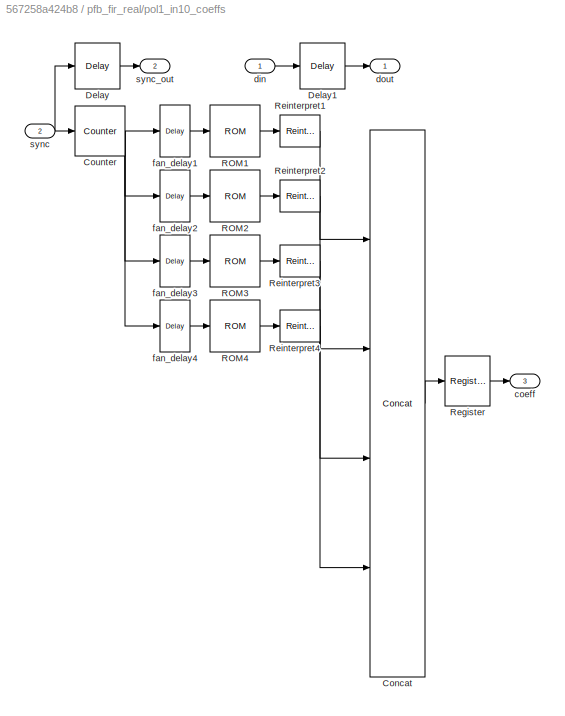
BLOCK [SubSystem] pfb_fir_real/pol1_in10_coeffs
  AncestorBlock = casper_library_pfbs/pfb_coeff_gen
  AttributesFormatString = PFBSize=14, n_inputs=4,\ntaps=4, input=9
  Ports = [2, 3]
  RequestExecContextInheritance = off
  UserDataPersistent = on
  Variant = off
BLOCK [Reference] pfb_fir_real/pol1_in10_coeffs/Concat  REF=xbsIndex_r4/Concat
  Ports = [4, 1]
  SourceBlock = xbsIndex_r4/Concat
  SourceType = Xilinx Bus Concatenator Block
BLOCK [Reference] pfb_fir_real/pol1_in10_coeffs/Counter  REF=xbsIndex_r4/Counter
  Ports = [1, 1]
  SourceBlock = xbsIndex_r4/Counter
  SourceType = Xilinx Counter Block
BLOCK [Reference] pfb_fir_real/pol1_in10_coeffs/Delay  REF=xbsIndex_r4/Delay
  Ports = [1, 1]
  SourceBlock = xbsIndex_r4/Delay
  SourceType = Xilinx Delay Block
BLOCK [Reference] pfb_fir_real/pol1_in10_coeffs/Delay1  REF=xbsIndex_r4/Delay
  Ports = [1, 1]
  SourceBlock = xbsIndex_r4/Delay
  SourceType = Xilinx Delay Block
BLOCK [Reference] pfb_fir_real/pol1_in10_coeffs/ROM1  REF=xbsIndex_r4/ROM
  Ports = [1, 1]
  SourceBlock = xbsIndex_r4/ROM
  SourceType = Xilinx Single Port Read-Only Memory Block
BLOCK [Reference] pfb_fir_real/pol1_in10_coeffs/ROM2  REF=xbsIndex_r4/ROM
  Ports = [1, 1]
  SourceBlock = xbsIndex_r4/ROM
  SourceType = Xilinx Single Port Read-Only Memory Block
BLOCK [Reference] pfb_fir_real/pol1_in10_coeffs/ROM3  REF=xbsIndex_r4/ROM
  Ports = [1, 1]
  SourceBlock = xbsIndex_r4/ROM
  SourceType = Xilinx Single Port Read-Only Memory Block
BLOCK [Reference] pfb_fir_real/pol1_in10_coeffs/ROM4  REF=xbsIndex_r4/ROM
  Ports = [1, 1]
  SourceBlock = xbsIndex_r4/ROM
  SourceType = Xilinx Single Port Read-Only Memory Block
BLOCK [Reference] pfb_fir_real/pol1_in10_coeffs/Register  REF=xbsIndex_r4/Register
  Ports = [1, 1]
  SourceBlock = xbsIndex_r4/Register
  SourceType = Xilinx Register Block
BLOCK [Reference] pfb_fir_real/pol1_in10_coeffs/Reinterpret1  REF=xbsIndex_r4/Reinterpret
  Ports = [1, 1]
  SourceBlock = xbsIndex_r4/Reinterpret
  SourceType = Xilinx Type Reinterpreter Block
BLOCK [Reference] pfb_fir_real/pol1_in10_coeffs/Reinterpret2  REF=xbsIndex_r4/Reinterpret
  Ports = [1, 1]
  SourceBlock = xbsIndex_r4/Reinterpret
  SourceType = Xilinx Type Reinterpreter Block
BLOCK [Reference] pfb_fir_real/pol1_in10_coeffs/Reinterpret3  REF=xbsIndex_r4/Reinterpret
  Ports = [1, 1]
  SourceBlock = xbsIndex_r4/Reinterpret
  SourceType = Xilinx Type Reinterpreter Block
BLOCK [Reference] pfb_fir_real/pol1_in10_coeffs/Reinterpret4  REF=xbsIndex_r4/Reinterpret
  Ports = [1, 1]
  SourceBlock = xbsIndex_r4/Reinterpret
  SourceType = Xilinx Type Reinterpreter Block
BLOCK [Outport] pfb_fir_real/pol1_in10_coeffs/coeff
  IconDisplay = Port number
  Port = 3
BLOCK [Inport] pfb_fir_real/pol1_in10_coeffs/din
  IconDisplay = Port number
BLOCK [Outport] pfb_fir_real/pol1_in10_coeffs/dout
  IconDisplay = Port number
BLOCK [Reference] pfb_fir_real/pol1_in10_coeffs/fan_delay1  REF=xbsIndex_r4/Delay
  Ports = [1, 1]
  SourceBlock = xbsIndex_r4/Delay
  SourceType = Xilinx Delay Block
BLOCK [Reference] pfb_fir_real/pol1_in10_coeffs/fan_delay2  REF=xbsIndex_r4/Delay
  Ports = [1, 1]
  SourceBlock = xbsIndex_r4/Delay
  SourceType = Xilinx Delay Block
BLOCK [Reference] pfb_fir_real/pol1_in10_coeffs/fan_delay3  REF=xbsIndex_r4/Delay
  Ports = [1, 1]
  SourceBlock = xbsIndex_r4/Delay
  SourceType = Xilinx Delay Block
BLOCK [Reference] pfb_fir_real/pol1_in10_coeffs/fan_delay4  REF=xbsIndex_r4/Delay
  Ports = [1, 1]
  SourceBlock = xbsIndex_r4/Delay
  SourceType = Xilinx Delay Block
BLOCK [Inport] pfb_fir_real/pol1_in10_coeffs/sync
  IconDisplay = Port number
  Port = 2
BLOCK [Outport] pfb_fir_real/pol1_in10_coeffs/sync_out
  IconDisplay = Port number
  Port = 2
BLOCK [SubSystem] pfb_fir_real/pol1_in10_first_tap
  AncestorBlock = casper_library_pfbs/first_tap_real
  AttributesFormatString = taps=4
  Ports = [3, 4]
  RequestExecContextInheritance = off
  UserDataPersistent = on
  Variant = off
BLOCK [Reference] pfb_fir_real/pol1_in10_first_tap/Mult  REF=xbsIndex_r4/Mult
  Ports = [2, 1]
  SourceBlock = xbsIndex_r4/Mult
  SourceType = Xilinx Multiplier Block
BLOCK [Reference] pfb_fir_real/pol1_in10_first_tap/Reinterpret  REF=xbsIndex_r4/Reinterpret
  Ports = [1, 1]
  SourceBlock = xbsIndex_r4/Reinterpret
  SourceType = Xilinx Type Reinterpreter Block
BLOCK [Reference] pfb_fir_real/pol1_in10_first_tap/Reinterpret2  REF=xbsIndex_r4/Reinterpret
  Ports = [1, 1]
  SourceBlock = xbsIndex_r4/Reinterpret
  SourceType = Xilinx Type Reinterpreter Block
BLOCK [Reference] pfb_fir_real/pol1_in10_first_tap/Slice  REF=xbsIndex_r4/Slice
  Ports = [1, 1]
  SourceBlock = xbsIndex_r4/Slice
  SourceType = Xilinx Bit Slice Extractor Block
BLOCK [Reference] pfb_fir_real/pol1_in10_first_tap/Slice1  REF=xbsIndex_r4/Slice
  Ports = [1, 1]
  SourceBlock = xbsIndex_r4/Slice
  SourceType = Xilinx Bit Slice Extractor Block
BLOCK [Outport] pfb_fir_real/pol1_in10_first_tap/coeff_out
  IconDisplay = Port number
  Port = 3
BLOCK [Inport] pfb_fir_real/pol1_in10_first_tap/coeffs
  IconDisplay = Port number
  Port = 3
BLOCK [SubSystem] pfb_fir_real/pol1_in10_first_tap/delay_bram
  AncestorBlock = casper_library_delays/delay_bram
  Ports = [1, 1]
  RequestExecContextInheritance = off
  UserDataPersistent = on
  Variant = off
BLOCK [Reference] pfb_fir_real/pol1_in10_first_tap/delay_bram/constant  REF=xbsIndex_r4/Constant
  Ports = [0, 1]
  SourceBlock = xbsIndex_r4/Constant
  SourceType = Xilinx Constant Block Block
BLOCK [Reference] pfb_fir_real/pol1_in10_first_tap/delay_bram/counter  REF=xbsIndex_r4/Counter
  Ports = [0, 1]
  SourceBlock = xbsIndex_r4/Counter
  SourceType = Xilinx Counter Block
BLOCK [Inport] pfb_fir_real/pol1_in10_first_tap/delay_bram/din
  IconDisplay = Port number
BLOCK [Outport] pfb_fir_real/pol1_in10_first_tap/delay_bram/dout
  IconDisplay = Port number
BLOCK [Reference] pfb_fir_real/pol1_in10_first_tap/delay_bram/ram  REF=xbsIndex_r4/Single Port RAM
  Ports = [3, 1]
  SourceBlock = xbsIndex_r4/Single Port RAM
  SourceType = Xilinx Single Port Random Access Memory Block
BLOCK [Inport] pfb_fir_real/pol1_in10_first_tap/din
  IconDisplay = Port number
BLOCK [Outport] pfb_fir_real/pol1_in10_first_tap/dout
  IconDisplay = Port number
BLOCK [Inport] pfb_fir_real/pol1_in10_first_tap/sync
  IconDisplay = Port number
  Port = 2
BLOCK [Reference] pfb_fir_real/pol1_in10_first_tap/sync_delay  REF=casper_library_delays/sync_delay  (lib defined in mdl_259a08a3fac5, mdl_65009615caaa, +5 more)
  Ports = [1, 1]
  SourceBlock = casper_library_delays/sync_delay
  SourceType = sync_delay
BLOCK [Outport] pfb_fir_real/pol1_in10_first_tap/sync_out
  IconDisplay = Port number
  Port = 2
BLOCK [Outport] pfb_fir_real/pol1_in10_first_tap/taps_out
  IconDisplay = Port number
  Port = 4
BLOCK [SubSystem] pfb_fir_real/pol1_in10_last_tap
  AncestorBlock = casper_library_pfbs/last_tap_real
  Ports = [3, 2]
  RequestExecContextInheritance = off
  UserDataPersistent = on
  Variant = off
BLOCK [Reference] pfb_fir_real/pol1_in10_last_tap/Delay  REF=xbsIndex_r4/Delay
  Ports = [1, 1]
  SourceBlock = xbsIndex_r4/Delay
  SourceType = Xilinx Delay Block
BLOCK [Reference] pfb_fir_real/pol1_in10_last_tap/Mult  REF=xbsIndex_r4/Mult
  Ports = [2, 1]
  SourceBlock = xbsIndex_r4/Mult
  SourceType = Xilinx Multiplier Block
BLOCK [Reference] pfb_fir_real/pol1_in10_last_tap/Reinterpret  REF=xbsIndex_r4/Reinterpret
  Ports = [1, 1]
  SourceBlock = xbsIndex_r4/Reinterpret
  SourceType = Xilinx Type Reinterpreter Block
BLOCK [Reference] pfb_fir_real/pol1_in10_last_tap/Reinterpret1  REF=xbsIndex_r4/Reinterpret
  Ports = [1, 1]
  SourceBlock = xbsIndex_r4/Reinterpret
  SourceType = Xilinx Type Reinterpreter Block
BLOCK [Inport] pfb_fir_real/pol1_in10_last_tap/coeff
  IconDisplay = Port number
  Port = 3
BLOCK [Inport] pfb_fir_real/pol1_in10_last_tap/din
  IconDisplay = Port number
BLOCK [Inport] pfb_fir_real/pol1_in10_last_tap/sync
  IconDisplay = Port number
  Port = 2
BLOCK [Outport] pfb_fir_real/pol1_in10_last_tap/sync_out
  IconDisplay = Port number
  Port = 2
BLOCK [Outport] pfb_fir_real/pol1_in10_last_tap/tap_out
  IconDisplay = Port number
BLOCK [SubSystem] pfb_fir_real/pol1_in10_tap2
  AncestorBlock = casper_library_pfbs/tap_real
  Ports = [3, 4]
  RequestExecContextInheritance = off
  Variant = off
BLOCK [Reference] pfb_fir_real/pol1_in10_tap2/Mult  REF=xbsIndex_r4/Mult
  Ports = [2, 1]
  SourceBlock = xbsIndex_r4/Mult
  SourceType = Xilinx Multiplier Block
BLOCK [Reference] pfb_fir_real/pol1_in10_tap2/Reinterpret  REF=xbsIndex_r4/Reinterpret
  Ports = [1, 1]
  SourceBlock = xbsIndex_r4/Reinterpret
  SourceType = Xilinx Type Reinterpreter Block
BLOCK [Reference] pfb_fir_real/pol1_in10_tap2/Reinterpret1  REF=xbsIndex_r4/Reinterpret
  Ports = [1, 1]
  SourceBlock = xbsIndex_r4/Reinterpret
  SourceType = Xilinx Type Reinterpreter Block
BLOCK [Reference] pfb_fir_real/pol1_in10_tap2/Slice  REF=xbsIndex_r4/Slice
  Ports = [1, 1]
  SourceBlock = xbsIndex_r4/Slice
  SourceType = Xilinx Bit Slice Extractor Block
BLOCK [Reference] pfb_fir_real/pol1_in10_tap2/Slice1  REF=xbsIndex_r4/Slice
  Ports = [1, 1]
  SourceBlock = xbsIndex_r4/Slice
  SourceType = Xilinx Bit Slice Extractor Block
BLOCK [Inport] pfb_fir_real/pol1_in10_tap2/coeff
  IconDisplay = Port number
  Port = 3
BLOCK [Outport] pfb_fir_real/pol1_in10_tap2/coeff_out
  IconDisplay = Port number
  Port = 3
BLOCK [SubSystem] pfb_fir_real/pol1_in10_tap2/delay_bram
  AncestorBlock = casper_library_delays/delay_bram
  Ports = [1, 1]
  RequestExecContextInheritance = off
  UserDataPersistent = on
  Variant = off
BLOCK [Reference] pfb_fir_real/pol1_in10_tap2/delay_bram/constant  REF=xbsIndex_r4/Constant
  Ports = [0, 1]
  SourceBlock = xbsIndex_r4/Constant
  SourceType = Xilinx Constant Block Block
BLOCK [Reference] pfb_fir_real/pol1_in10_tap2/delay_bram/counter  REF=xbsIndex_r4/Counter
  Ports = [0, 1]
  SourceBlock = xbsIndex_r4/Counter
  SourceType = Xilinx Counter Block
BLOCK [Inport] pfb_fir_real/pol1_in10_tap2/delay_bram/din
  IconDisplay = Port number
BLOCK [Outport] pfb_fir_real/pol1_in10_tap2/delay_bram/dout
  IconDisplay = Port number
BLOCK [Reference] pfb_fir_real/pol1_in10_tap2/delay_bram/ram  REF=xbsIndex_r4/Single Port RAM
  Ports = [3, 1]
  SourceBlock = xbsIndex_r4/Single Port RAM
  SourceType = Xilinx Single Port Random Access Memory Block
BLOCK [Inport] pfb_fir_real/pol1_in10_tap2/din
  IconDisplay = Port number
BLOCK [Outport] pfb_fir_real/pol1_in10_tap2/dout
  IconDisplay = Port number
BLOCK [Inport] pfb_fir_real/pol1_in10_tap2/sync
  IconDisplay = Port number
  Port = 2
BLOCK [Reference] pfb_fir_real/pol1_in10_tap2/sync_delay  REF=casper_library_delays/sync_delay  (lib defined in mdl_259a08a3fac5, mdl_65009615caaa, +5 more)
  Ports = [1, 1]
  SourceBlock = casper_library_delays/sync_delay
  SourceType = sync_delay
BLOCK [Outport] pfb_fir_real/pol1_in10_tap2/sync_out
  IconDisplay = Port number
  Port = 2
BLOCK [Outport] pfb_fir_real/pol1_in10_tap2/taps_out
  IconDisplay = Port number
  Port = 4
BLOCK [SubSystem] pfb_fir_real/pol1_in10_tap3
  AncestorBlock = casper_library_pfbs/tap_real
  Ports = [3, 4]
  RequestExecContextInheritance = off
  Variant = off
BLOCK [Reference] pfb_fir_real/pol1_in10_tap3/Mult  REF=xbsIndex_r4/Mult
  Ports = [2, 1]
  SourceBlock = xbsIndex_r4/Mult
  SourceType = Xilinx Multiplier Block
BLOCK [Reference] pfb_fir_real/pol1_in10_tap3/Reinterpret  REF=xbsIndex_r4/Reinterpret
  Ports = [1, 1]
  SourceBlock = xbsIndex_r4/Reinterpret
  SourceType = Xilinx Type Reinterpreter Block
BLOCK [Reference] pfb_fir_real/pol1_in10_tap3/Reinterpret1  REF=xbsIndex_r4/Reinterpret
  Ports = [1, 1]
  SourceBlock = xbsIndex_r4/Reinterpret
  SourceType = Xilinx Type Reinterpreter Block
BLOCK [Reference] pfb_fir_real/pol1_in10_tap3/Slice  REF=xbsIndex_r4/Slice
  Ports = [1, 1]
  SourceBlock = xbsIndex_r4/Slice
  SourceType = Xilinx Bit Slice Extractor Block
BLOCK [Reference] pfb_fir_real/pol1_in10_tap3/Slice1  REF=xbsIndex_r4/Slice
  Ports = [1, 1]
  SourceBlock = xbsIndex_r4/Slice
  SourceType = Xilinx Bit Slice Extractor Block
BLOCK [Inport] pfb_fir_real/pol1_in10_tap3/coeff
  IconDisplay = Port number
  Port = 3
BLOCK [Outport] pfb_fir_real/pol1_in10_tap3/coeff_out
  IconDisplay = Port number
  Port = 3
BLOCK [SubSystem] pfb_fir_real/pol1_in10_tap3/delay_bram
  AncestorBlock = casper_library_delays/delay_bram
  Ports = [1, 1]
  RequestExecContextInheritance = off
  UserDataPersistent = on
  Variant = off
BLOCK [Reference] pfb_fir_real/pol1_in10_tap3/delay_bram/constant  REF=xbsIndex_r4/Constant
  Ports = [0, 1]
  SourceBlock = xbsIndex_r4/Constant
  SourceType = Xilinx Constant Block Block
BLOCK [Reference] pfb_fir_real/pol1_in10_tap3/delay_bram/counter  REF=xbsIndex_r4/Counter
  Ports = [0, 1]
  SourceBlock = xbsIndex_r4/Counter
  SourceType = Xilinx Counter Block
BLOCK [Inport] pfb_fir_real/pol1_in10_tap3/delay_bram/din
  IconDisplay = Port number
BLOCK [Outport] pfb_fir_real/pol1_in10_tap3/delay_bram/dout
  IconDisplay = Port number
BLOCK [Reference] pfb_fir_real/pol1_in10_tap3/delay_bram/ram  REF=xbsIndex_r4/Single Port RAM
  Ports = [3, 1]
  SourceBlock = xbsIndex_r4/Single Port RAM
  SourceType = Xilinx Single Port Random Access Memory Block
BLOCK [Inport] pfb_fir_real/pol1_in10_tap3/din
  IconDisplay = Port number
BLOCK [Outport] pfb_fir_real/pol1_in10_tap3/dout
  IconDisplay = Port number
BLOCK [Inport] pfb_fir_real/pol1_in10_tap3/sync
  IconDisplay = Port number
  Port = 2
BLOCK [Reference] pfb_fir_real/pol1_in10_tap3/sync_delay  REF=casper_library_delays/sync_delay  (lib defined in mdl_259a08a3fac5, mdl_65009615caaa, +5 more)
  Ports = [1, 1]
  SourceBlock = casper_library_delays/sync_delay
  SourceType = sync_delay
BLOCK [Outport] pfb_fir_real/pol1_in10_tap3/sync_out
  IconDisplay = Port number
  Port = 2
BLOCK [Outport] pfb_fir_real/pol1_in10_tap3/taps_out
  IconDisplay = Port number
  Port = 4
BLOCK [Inport] pfb_fir_real/pol1_in11
  IconDisplay = Port number
  Port = 12
BLOCK [SubSystem] pfb_fir_real/pol1_in11_coeffs
  AncestorBlock = casper_library_pfbs/pfb_coeff_gen
  AttributesFormatString = PFBSize=14, n_inputs=4,\ntaps=4, input=10
  Ports = [2, 3]
  RequestExecContextInheritance = off
  UserDataPersistent = on
  Variant = off
BLOCK [Reference] pfb_fir_real/pol1_in11_coeffs/Concat  REF=xbsIndex_r4/Concat
  Ports = [4, 1]
  SourceBlock = xbsIndex_r4/Concat
  SourceType = Xilinx Bus Concatenator Block
BLOCK [Reference] pfb_fir_real/pol1_in11_coeffs/Counter  REF=xbsIndex_r4/Counter
  Ports = [1, 1]
  SourceBlock = xbsIndex_r4/Counter
  SourceType = Xilinx Counter Block
BLOCK [Reference] pfb_fir_real/pol1_in11_coeffs/Delay  REF=xbsIndex_r4/Delay
  Ports = [1, 1]
  SourceBlock = xbsIndex_r4/Delay
  SourceType = Xilinx Delay Block
BLOCK [Reference] pfb_fir_real/pol1_in11_coeffs/Delay1  REF=xbsIndex_r4/Delay
  Ports = [1, 1]
  SourceBlock = xbsIndex_r4/Delay
  SourceType = Xilinx Delay Block
BLOCK [Reference] pfb_fir_real/pol1_in11_coeffs/ROM1  REF=xbsIndex_r4/ROM
  Ports = [1, 1]
  SourceBlock = xbsIndex_r4/ROM
  SourceType = Xilinx Single Port Read-Only Memory Block
BLOCK [Reference] pfb_fir_real/pol1_in11_coeffs/ROM2  REF=xbsIndex_r4/ROM
  Ports = [1, 1]
  SourceBlock = xbsIndex_r4/ROM
  SourceType = Xilinx Single Port Read-Only Memory Block
BLOCK [Reference] pfb_fir_real/pol1_in11_coeffs/ROM3  REF=xbsIndex_r4/ROM
  Ports = [1, 1]
  SourceBlock = xbsIndex_r4/ROM
  SourceType = Xilinx Single Port Read-Only Memory Block
BLOCK [Reference] pfb_fir_real/pol1_in11_coeffs/ROM4  REF=xbsIndex_r4/ROM
  Ports = [1, 1]
  SourceBlock = xbsIndex_r4/ROM
  SourceType = Xilinx Single Port Read-Only Memory Block
BLOCK [Reference] pfb_fir_real/pol1_in11_coeffs/Register  REF=xbsIndex_r4/Register
  Ports = [1, 1]
  SourceBlock = xbsIndex_r4/Register
  SourceType = Xilinx Register Block
BLOCK [Reference] pfb_fir_real/pol1_in11_coeffs/Reinterpret1  REF=xbsIndex_r4/Reinterpret
  Ports = [1, 1]
  SourceBlock = xbsIndex_r4/Reinterpret
  SourceType = Xilinx Type Reinterpreter Block
BLOCK [Reference] pfb_fir_real/pol1_in11_coeffs/Reinterpret2  REF=xbsIndex_r4/Reinterpret
  Ports = [1, 1]
  SourceBlock = xbsIndex_r4/Reinterpret
  SourceType = Xilinx Type Reinterpreter Block
BLOCK [Reference] pfb_fir_real/pol1_in11_coeffs/Reinterpret3  REF=xbsIndex_r4/Reinterpret
  Ports = [1, 1]
  SourceBlock = xbsIndex_r4/Reinterpret
  SourceType = Xilinx Type Reinterpreter Block
BLOCK [Reference] pfb_fir_real/pol1_in11_coeffs/Reinterpret4  REF=xbsIndex_r4/Reinterpret
  Ports = [1, 1]
  SourceBlock = xbsIndex_r4/Reinterpret
  SourceType = Xilinx Type Reinterpreter Block
BLOCK [Outport] pfb_fir_real/pol1_in11_coeffs/coeff
  IconDisplay = Port number
  Port = 3
BLOCK [Inport] pfb_fir_real/pol1_in11_coeffs/din
  IconDisplay = Port number
BLOCK [Outport] pfb_fir_real/pol1_in11_coeffs/dout
  IconDisplay = Port number
BLOCK [Reference] pfb_fir_real/pol1_in11_coeffs/fan_delay1  REF=xbsIndex_r4/Delay
  Ports = [1, 1]
  SourceBlock = xbsIndex_r4/Delay
  SourceType = Xilinx Delay Block
BLOCK [Reference] pfb_fir_real/pol1_in11_coeffs/fan_delay2  REF=xbsIndex_r4/Delay
  Ports = [1, 1]
  SourceBlock = xbsIndex_r4/Delay
  SourceType = Xilinx Delay Block
BLOCK [Reference] pfb_fir_real/pol1_in11_coeffs/fan_delay3  REF=xbsIndex_r4/Delay
  Ports = [1, 1]
  SourceBlock = xbsIndex_r4/Delay
  SourceType = Xilinx Delay Block
BLOCK [Reference] pfb_fir_real/pol1_in11_coeffs/fan_delay4  REF=xbsIndex_r4/Delay
  Ports = [1, 1]
  SourceBlock = xbsIndex_r4/Delay
  SourceType = Xilinx Delay Block
BLOCK [Inport] pfb_fir_real/pol1_in11_coeffs/sync
  IconDisplay = Port number
  Port = 2
BLOCK [Outport] pfb_fir_real/pol1_in11_coeffs/sync_out
  IconDisplay = Port number
  Port = 2
BLOCK [SubSystem] pfb_fir_real/pol1_in11_first_tap
  AncestorBlock = casper_library_pfbs/first_tap_real
  AttributesFormatString = taps=4
  Ports = [3, 4]
  RequestExecContextInheritance = off
  UserDataPersistent = on
  Variant = off
BLOCK [Reference] pfb_fir_real/pol1_in11_first_tap/Mult  REF=xbsIndex_r4/Mult
  Ports = [2, 1]
  SourceBlock = xbsIndex_r4/Mult
  SourceType = Xilinx Multiplier Block
BLOCK [Reference] pfb_fir_real/pol1_in11_first_tap/Reinterpret  REF=xbsIndex_r4/Reinterpret
  Ports = [1, 1]
  SourceBlock = xbsIndex_r4/Reinterpret
  SourceType = Xilinx Type Reinterpreter Block
BLOCK [Reference] pfb_fir_real/pol1_in11_first_tap/Reinterpret2  REF=xbsIndex_r4/Reinterpret
  Ports = [1, 1]
  SourceBlock = xbsIndex_r4/Reinterpret
  SourceType = Xilinx Type Reinterpreter Block
BLOCK [Reference] pfb_fir_real/pol1_in11_first_tap/Slice  REF=xbsIndex_r4/Slice
  Ports = [1, 1]
  SourceBlock = xbsIndex_r4/Slice
  SourceType = Xilinx Bit Slice Extractor Block
BLOCK [Reference] pfb_fir_real/pol1_in11_first_tap/Slice1  REF=xbsIndex_r4/Slice
  Ports = [1, 1]
  SourceBlock = xbsIndex_r4/Slice
  SourceType = Xilinx Bit Slice Extractor Block
BLOCK [Outport] pfb_fir_real/pol1_in11_first_tap/coeff_out
  IconDisplay = Port number
  Port = 3
BLOCK [Inport] pfb_fir_real/pol1_in11_first_tap/coeffs
  IconDisplay = Port number
  Port = 3
BLOCK [SubSystem] pfb_fir_real/pol1_in11_first_tap/delay_bram
  AncestorBlock = casper_library_delays/delay_bram
  Ports = [1, 1]
  RequestExecContextInheritance = off
  UserDataPersistent = on
  Variant = off
BLOCK [Reference] pfb_fir_real/pol1_in11_first_tap/delay_bram/constant  REF=xbsIndex_r4/Constant
  Ports = [0, 1]
  SourceBlock = xbsIndex_r4/Constant
  SourceType = Xilinx Constant Block Block
BLOCK [Reference] pfb_fir_real/pol1_in11_first_tap/delay_bram/counter  REF=xbsIndex_r4/Counter
  Ports = [0, 1]
  SourceBlock = xbsIndex_r4/Counter
  SourceType = Xilinx Counter Block
BLOCK [Inport] pfb_fir_real/pol1_in11_first_tap/delay_bram/din
  IconDisplay = Port number
BLOCK [Outport] pfb_fir_real/pol1_in11_first_tap/delay_bram/dout
  IconDisplay = Port number
BLOCK [Reference] pfb_fir_real/pol1_in11_first_tap/delay_bram/ram  REF=xbsIndex_r4/Single Port RAM
  Ports = [3, 1]
  SourceBlock = xbsIndex_r4/Single Port RAM
  SourceType = Xilinx Single Port Random Access Memory Block
BLOCK [Inport] pfb_fir_real/pol1_in11_first_tap/din
  IconDisplay = Port number
BLOCK [Outport] pfb_fir_real/pol1_in11_first_tap/dout
  IconDisplay = Port number
BLOCK [Inport] pfb_fir_real/pol1_in11_first_tap/sync
  IconDisplay = Port number
  Port = 2
BLOCK [Reference] pfb_fir_real/pol1_in11_first_tap/sync_delay  REF=casper_library_delays/sync_delay  (lib defined in mdl_259a08a3fac5, mdl_65009615caaa, +5 more)
  Ports = [1, 1]
  SourceBlock = casper_library_delays/sync_delay
  SourceType = sync_delay
BLOCK [Outport] pfb_fir_real/pol1_in11_first_tap/sync_out
  IconDisplay = Port number
  Port = 2
BLOCK [Outport] pfb_fir_real/pol1_in11_first_tap/taps_out
  IconDisplay = Port number
  Port = 4
BLOCK [SubSystem] pfb_fir_real/pol1_in11_last_tap
  AncestorBlock = casper_library_pfbs/last_tap_real
  Ports = [3, 2]
  RequestExecContextInheritance = off
  UserDataPersistent = on
  Variant = off
BLOCK [Reference] pfb_fir_real/pol1_in11_last_tap/Delay  REF=xbsIndex_r4/Delay
  Ports = [1, 1]
  SourceBlock = xbsIndex_r4/Delay
  SourceType = Xilinx Delay Block
BLOCK [Reference] pfb_fir_real/pol1_in11_last_tap/Mult  REF=xbsIndex_r4/Mult
  Ports = [2, 1]
  SourceBlock = xbsIndex_r4/Mult
  SourceType = Xilinx Multiplier Block
BLOCK [Reference] pfb_fir_real/pol1_in11_last_tap/Reinterpret  REF=xbsIndex_r4/Reinterpret
  Ports = [1, 1]
  SourceBlock = xbsIndex_r4/Reinterpret
  SourceType = Xilinx Type Reinterpreter Block
BLOCK [Reference] pfb_fir_real/pol1_in11_last_tap/Reinterpret1  REF=xbsIndex_r4/Reinterpret
  Ports = [1, 1]
  SourceBlock = xbsIndex_r4/Reinterpret
  SourceType = Xilinx Type Reinterpreter Block
BLOCK [Inport] pfb_fir_real/pol1_in11_last_tap/coeff
  IconDisplay = Port number
  Port = 3
BLOCK [Inport] pfb_fir_real/pol1_in11_last_tap/din
  IconDisplay = Port number
BLOCK [Inport] pfb_fir_real/pol1_in11_last_tap/sync
  IconDisplay = Port number
  Port = 2
BLOCK [Outport] pfb_fir_real/pol1_in11_last_tap/sync_out
  IconDisplay = Port number
  Port = 2
BLOCK [Outport] pfb_fir_real/pol1_in11_last_tap/tap_out
  IconDisplay = Port number
BLOCK [SubSystem] pfb_fir_real/pol1_in11_tap2
  AncestorBlock = casper_library_pfbs/tap_real
  Ports = [3, 4]
  RequestExecContextInheritance = off
  Variant = off
BLOCK [Reference] pfb_fir_real/pol1_in11_tap2/Mult  REF=xbsIndex_r4/Mult
  Ports = [2, 1]
  SourceBlock = xbsIndex_r4/Mult
  SourceType = Xilinx Multiplier Block
BLOCK [Reference] pfb_fir_real/pol1_in11_tap2/Reinterpret  REF=xbsIndex_r4/Reinterpret
  Ports = [1, 1]
  SourceBlock = xbsIndex_r4/Reinterpret
  SourceType = Xilinx Type Reinterpreter Block
BLOCK [Reference] pfb_fir_real/pol1_in11_tap2/Reinterpret1  REF=xbsIndex_r4/Reinterpret
  Ports = [1, 1]
  SourceBlock = xbsIndex_r4/Reinterpret
  SourceType = Xilinx Type Reinterpreter Block
BLOCK [Reference] pfb_fir_real/pol1_in11_tap2/Slice  REF=xbsIndex_r4/Slice
  Ports = [1, 1]
  SourceBlock = xbsIndex_r4/Slice
  SourceType = Xilinx Bit Slice Extractor Block
BLOCK [Reference] pfb_fir_real/pol1_in11_tap2/Slice1  REF=xbsIndex_r4/Slice
  Ports = [1, 1]
  SourceBlock = xbsIndex_r4/Slice
  SourceType = Xilinx Bit Slice Extractor Block
BLOCK [Inport] pfb_fir_real/pol1_in11_tap2/coeff
  IconDisplay = Port number
  Port = 3
BLOCK [Outport] pfb_fir_real/pol1_in11_tap2/coeff_out
  IconDisplay = Port number
  Port = 3
BLOCK [SubSystem] pfb_fir_real/pol1_in11_tap2/delay_bram
  AncestorBlock = casper_library_delays/delay_bram
  Ports = [1, 1]
  RequestExecContextInheritance = off
  UserDataPersistent = on
  Variant = off
BLOCK [Reference] pfb_fir_real/pol1_in11_tap2/delay_bram/constant  REF=xbsIndex_r4/Constant
  Ports = [0, 1]
  SourceBlock = xbsIndex_r4/Constant
  SourceType = Xilinx Constant Block Block
BLOCK [Reference] pfb_fir_real/pol1_in11_tap2/delay_bram/counter  REF=xbsIndex_r4/Counter
  Ports = [0, 1]
  SourceBlock = xbsIndex_r4/Counter
  SourceType = Xilinx Counter Block
BLOCK [Inport] pfb_fir_real/pol1_in11_tap2/delay_bram/din
  IconDisplay = Port number
BLOCK [Outport] pfb_fir_real/pol1_in11_tap2/delay_bram/dout
  IconDisplay = Port number
BLOCK [Reference] pfb_fir_real/pol1_in11_tap2/delay_bram/ram  REF=xbsIndex_r4/Single Port RAM
  Ports = [3, 1]
  SourceBlock = xbsIndex_r4/Single Port RAM
  SourceType = Xilinx Single Port Random Access Memory Block
BLOCK [Inport] pfb_fir_real/pol1_in11_tap2/din
  IconDisplay = Port number
BLOCK [Outport] pfb_fir_real/pol1_in11_tap2/dout
  IconDisplay = Port number
BLOCK [Inport] pfb_fir_real/pol1_in11_tap2/sync
  IconDisplay = Port number
  Port = 2
BLOCK [Reference] pfb_fir_real/pol1_in11_tap2/sync_delay  REF=casper_library_delays/sync_delay  (lib defined in mdl_259a08a3fac5, mdl_65009615caaa, +5 more)
  Ports = [1, 1]
  SourceBlock = casper_library_delays/sync_delay
  SourceType = sync_delay
BLOCK [Outport] pfb_fir_real/pol1_in11_tap2/sync_out
  IconDisplay = Port number
  Port = 2
BLOCK [Outport] pfb_fir_real/pol1_in11_tap2/taps_out
  IconDisplay = Port number
  Port = 4
BLOCK [SubSystem] pfb_fir_real/pol1_in11_tap3
  AncestorBlock = casper_library_pfbs/tap_real
  Ports = [3, 4]
  RequestExecContextInheritance = off
  Variant = off
BLOCK [Reference] pfb_fir_real/pol1_in11_tap3/Mult  REF=xbsIndex_r4/Mult
  Ports = [2, 1]
  SourceBlock = xbsIndex_r4/Mult
  SourceType = Xilinx Multiplier Block
BLOCK [Reference] pfb_fir_real/pol1_in11_tap3/Reinterpret  REF=xbsIndex_r4/Reinterpret
  Ports = [1, 1]
  SourceBlock = xbsIndex_r4/Reinterpret
  SourceType = Xilinx Type Reinterpreter Block
BLOCK [Reference] pfb_fir_real/pol1_in11_tap3/Reinterpret1  REF=xbsIndex_r4/Reinterpret
  Ports = [1, 1]
  SourceBlock = xbsIndex_r4/Reinterpret
  SourceType = Xilinx Type Reinterpreter Block
BLOCK [Reference] pfb_fir_real/pol1_in11_tap3/Slice  REF=xbsIndex_r4/Slice
  Ports = [1, 1]
  SourceBlock = xbsIndex_r4/Slice
  SourceType = Xilinx Bit Slice Extractor Block
BLOCK [Reference] pfb_fir_real/pol1_in11_tap3/Slice1  REF=xbsIndex_r4/Slice
  Ports = [1, 1]
  SourceBlock = xbsIndex_r4/Slice
  SourceType = Xilinx Bit Slice Extractor Block
BLOCK [Inport] pfb_fir_real/pol1_in11_tap3/coeff
  IconDisplay = Port number
  Port = 3
BLOCK [Outport] pfb_fir_real/pol1_in11_tap3/coeff_out
  IconDisplay = Port number
  Port = 3
BLOCK [SubSystem] pfb_fir_real/pol1_in11_tap3/delay_bram
  AncestorBlock = casper_library_delays/delay_bram
  Ports = [1, 1]
  RequestExecContextInheritance = off
  UserDataPersistent = on
  Variant = off
BLOCK [Reference] pfb_fir_real/pol1_in11_tap3/delay_bram/constant  REF=xbsIndex_r4/Constant
  Ports = [0, 1]
  SourceBlock = xbsIndex_r4/Constant
  SourceType = Xilinx Constant Block Block
BLOCK [Reference] pfb_fir_real/pol1_in11_tap3/delay_bram/counter  REF=xbsIndex_r4/Counter
  Ports = [0, 1]
  SourceBlock = xbsIndex_r4/Counter
  SourceType = Xilinx Counter Block
BLOCK [Inport] pfb_fir_real/pol1_in11_tap3/delay_bram/din
  IconDisplay = Port number
BLOCK [Outport] pfb_fir_real/pol1_in11_tap3/delay_bram/dout
  IconDisplay = Port number
BLOCK [Reference] pfb_fir_real/pol1_in11_tap3/delay_bram/ram  REF=xbsIndex_r4/Single Port RAM
  Ports = [3, 1]
  SourceBlock = xbsIndex_r4/Single Port RAM
  SourceType = Xilinx Single Port Random Access Memory Block
BLOCK [Inport] pfb_fir_real/pol1_in11_tap3/din
  IconDisplay = Port number
BLOCK [Outport] pfb_fir_real/pol1_in11_tap3/dout
  IconDisplay = Port number
BLOCK [Inport] pfb_fir_real/pol1_in11_tap3/sync
  IconDisplay = Port number
  Port = 2
BLOCK [Reference] pfb_fir_real/pol1_in11_tap3/sync_delay  REF=casper_library_delays/sync_delay  (lib defined in mdl_259a08a3fac5, mdl_65009615caaa, +5 more)
  Ports = [1, 1]
  SourceBlock = casper_library_delays/sync_delay
  SourceType = sync_delay
BLOCK [Outport] pfb_fir_real/pol1_in11_tap3/sync_out
  IconDisplay = Port number
  Port = 2
BLOCK [Outport] pfb_fir_real/pol1_in11_tap3/taps_out
  IconDisplay = Port number
  Port = 4
BLOCK [Inport] pfb_fir_real/pol1_in12
  IconDisplay = Port number
  Port = 13
BLOCK [SubSystem] pfb_fir_real/pol1_in12_coeffs
  AncestorBlock = casper_library_pfbs/pfb_coeff_gen
  AttributesFormatString = PFBSize=14, n_inputs=4,\ntaps=4, input=11
  Ports = [2, 3]
  RequestExecContextInheritance = off
  UserDataPersistent = on
  Variant = off
BLOCK [Reference] pfb_fir_real/pol1_in12_coeffs/Concat  REF=xbsIndex_r4/Concat
  Ports = [4, 1]
  SourceBlock = xbsIndex_r4/Concat
  SourceType = Xilinx Bus Concatenator Block
BLOCK [Reference] pfb_fir_real/pol1_in12_coeffs/Counter  REF=xbsIndex_r4/Counter
  Ports = [1, 1]
  SourceBlock = xbsIndex_r4/Counter
  SourceType = Xilinx Counter Block
BLOCK [Reference] pfb_fir_real/pol1_in12_coeffs/Delay  REF=xbsIndex_r4/Delay
  Ports = [1, 1]
  SourceBlock = xbsIndex_r4/Delay
  SourceType = Xilinx Delay Block
BLOCK [Reference] pfb_fir_real/pol1_in12_coeffs/Delay1  REF=xbsIndex_r4/Delay
  Ports = [1, 1]
  SourceBlock = xbsIndex_r4/Delay
  SourceType = Xilinx Delay Block
BLOCK [Reference] pfb_fir_real/pol1_in12_coeffs/ROM1  REF=xbsIndex_r4/ROM
  Ports = [1, 1]
  SourceBlock = xbsIndex_r4/ROM
  SourceType = Xilinx Single Port Read-Only Memory Block
BLOCK [Reference] pfb_fir_real/pol1_in12_coeffs/ROM2  REF=xbsIndex_r4/ROM
  Ports = [1, 1]
  SourceBlock = xbsIndex_r4/ROM
  SourceType = Xilinx Single Port Read-Only Memory Block
BLOCK [Reference] pfb_fir_real/pol1_in12_coeffs/ROM3  REF=xbsIndex_r4/ROM
  Ports = [1, 1]
  SourceBlock = xbsIndex_r4/ROM
  SourceType = Xilinx Single Port Read-Only Memory Block
BLOCK [Reference] pfb_fir_real/pol1_in12_coeffs/ROM4  REF=xbsIndex_r4/ROM
  Ports = [1, 1]
  SourceBlock = xbsIndex_r4/ROM
  SourceType = Xilinx Single Port Read-Only Memory Block
BLOCK [Reference] pfb_fir_real/pol1_in12_coeffs/Register  REF=xbsIndex_r4/Register
  Ports = [1, 1]
  SourceBlock = xbsIndex_r4/Register
  SourceType = Xilinx Register Block
BLOCK [Reference] pfb_fir_real/pol1_in12_coeffs/Reinterpret1  REF=xbsIndex_r4/Reinterpret
  Ports = [1, 1]
  SourceBlock = xbsIndex_r4/Reinterpret
  SourceType = Xilinx Type Reinterpreter Block
BLOCK [Reference] pfb_fir_real/pol1_in12_coeffs/Reinterpret2  REF=xbsIndex_r4/Reinterpret
  Ports = [1, 1]
  SourceBlock = xbsIndex_r4/Reinterpret
  SourceType = Xilinx Type Reinterpreter Block
BLOCK [Reference] pfb_fir_real/pol1_in12_coeffs/Reinterpret3  REF=xbsIndex_r4/Reinterpret
  Ports = [1, 1]
  SourceBlock = xbsIndex_r4/Reinterpret
  SourceType = Xilinx Type Reinterpreter Block
BLOCK [Reference] pfb_fir_real/pol1_in12_coeffs/Reinterpret4  REF=xbsIndex_r4/Reinterpret
  Ports = [1, 1]
  SourceBlock = xbsIndex_r4/Reinterpret
  SourceType = Xilinx Type Reinterpreter Block
BLOCK [Outport] pfb_fir_real/pol1_in12_coeffs/coeff
  IconDisplay = Port number
  Port = 3
BLOCK [Inport] pfb_fir_real/pol1_in12_coeffs/din
  IconDisplay = Port number
BLOCK [Outport] pfb_fir_real/pol1_in12_coeffs/dout
  IconDisplay = Port number
BLOCK [Reference] pfb_fir_real/pol1_in12_coeffs/fan_delay1  REF=xbsIndex_r4/Delay
  Ports = [1, 1]
  SourceBlock = xbsIndex_r4/Delay
  SourceType = Xilinx Delay Block
BLOCK [Reference] pfb_fir_real/pol1_in12_coeffs/fan_delay2  REF=xbsIndex_r4/Delay
  Ports = [1, 1]
  SourceBlock = xbsIndex_r4/Delay
  SourceType = Xilinx Delay Block
BLOCK [Reference] pfb_fir_real/pol1_in12_coeffs/fan_delay3  REF=xbsIndex_r4/Delay
  Ports = [1, 1]
  SourceBlock = xbsIndex_r4/Delay
  SourceType = Xilinx Delay Block
BLOCK [Reference] pfb_fir_real/pol1_in12_coeffs/fan_delay4  REF=xbsIndex_r4/Delay
  Ports = [1, 1]
  SourceBlock = xbsIndex_r4/Delay
  SourceType = Xilinx Delay Block
BLOCK [Inport] pfb_fir_real/pol1_in12_coeffs/sync
  IconDisplay = Port number
  Port = 2
BLOCK [Outport] pfb_fir_real/pol1_in12_coeffs/sync_out
  IconDisplay = Port number
  Port = 2
BLOCK [SubSystem] pfb_fir_real/pol1_in12_first_tap
  AncestorBlock = casper_library_pfbs/first_tap_real
  AttributesFormatString = taps=4
  Ports = [3, 4]
  RequestExecContextInheritance = off
  UserDataPersistent = on
  Variant = off
BLOCK [Reference] pfb_fir_real/pol1_in12_first_tap/Mult  REF=xbsIndex_r4/Mult
  Ports = [2, 1]
  SourceBlock = xbsIndex_r4/Mult
  SourceType = Xilinx Multiplier Block
BLOCK [Reference] pfb_fir_real/pol1_in12_first_tap/Reinterpret  REF=xbsIndex_r4/Reinterpret
  Ports = [1, 1]
  SourceBlock = xbsIndex_r4/Reinterpret
  SourceType = Xilinx Type Reinterpreter Block
BLOCK [Reference] pfb_fir_real/pol1_in12_first_tap/Reinterpret2  REF=xbsIndex_r4/Reinterpret
  Ports = [1, 1]
  SourceBlock = xbsIndex_r4/Reinterpret
  SourceType = Xilinx Type Reinterpreter Block
BLOCK [Reference] pfb_fir_real/pol1_in12_first_tap/Slice  REF=xbsIndex_r4/Slice
  Ports = [1, 1]
  SourceBlock = xbsIndex_r4/Slice
  SourceType = Xilinx Bit Slice Extractor Block
BLOCK [Reference] pfb_fir_real/pol1_in12_first_tap/Slice1  REF=xbsIndex_r4/Slice
  Ports = [1, 1]
  SourceBlock = xbsIndex_r4/Slice
  SourceType = Xilinx Bit Slice Extractor Block
BLOCK [Outport] pfb_fir_real/pol1_in12_first_tap/coeff_out
  IconDisplay = Port number
  Port = 3
BLOCK [Inport] pfb_fir_real/pol1_in12_first_tap/coeffs
  IconDisplay = Port number
  Port = 3
BLOCK [SubSystem] pfb_fir_real/pol1_in12_first_tap/delay_bram
  AncestorBlock = casper_library_delays/delay_bram
  Ports = [1, 1]
  RequestExecContextInheritance = off
  UserDataPersistent = on
  Variant = off
BLOCK [Reference] pfb_fir_real/pol1_in12_first_tap/delay_bram/constant  REF=xbsIndex_r4/Constant
  Ports = [0, 1]
  SourceBlock = xbsIndex_r4/Constant
  SourceType = Xilinx Constant Block Block
BLOCK [Reference] pfb_fir_real/pol1_in12_first_tap/delay_bram/counter  REF=xbsIndex_r4/Counter
  Ports = [0, 1]
  SourceBlock = xbsIndex_r4/Counter
  SourceType = Xilinx Counter Block
BLOCK [Inport] pfb_fir_real/pol1_in12_first_tap/delay_bram/din
  IconDisplay = Port number
BLOCK [Outport] pfb_fir_real/pol1_in12_first_tap/delay_bram/dout
  IconDisplay = Port number
BLOCK [Reference] pfb_fir_real/pol1_in12_first_tap/delay_bram/ram  REF=xbsIndex_r4/Single Port RAM
  Ports = [3, 1]
  SourceBlock = xbsIndex_r4/Single Port RAM
  SourceType = Xilinx Single Port Random Access Memory Block
BLOCK [Inport] pfb_fir_real/pol1_in12_first_tap/din
  IconDisplay = Port number
BLOCK [Outport] pfb_fir_real/pol1_in12_first_tap/dout
  IconDisplay = Port number
BLOCK [Inport] pfb_fir_real/pol1_in12_first_tap/sync
  IconDisplay = Port number
  Port = 2
BLOCK [Reference] pfb_fir_real/pol1_in12_first_tap/sync_delay  REF=casper_library_delays/sync_delay  (lib defined in mdl_259a08a3fac5, mdl_65009615caaa, +5 more)
  Ports = [1, 1]
  SourceBlock = casper_library_delays/sync_delay
  SourceType = sync_delay
BLOCK [Outport] pfb_fir_real/pol1_in12_first_tap/sync_out
  IconDisplay = Port number
  Port = 2
BLOCK [Outport] pfb_fir_real/pol1_in12_first_tap/taps_out
  IconDisplay = Port number
  Port = 4
BLOCK [SubSystem] pfb_fir_real/pol1_in12_last_tap
  AncestorBlock = casper_library_pfbs/last_tap_real
  Ports = [3, 2]
  RequestExecContextInheritance = off
  UserDataPersistent = on
  Variant = off
BLOCK [Reference] pfb_fir_real/pol1_in12_last_tap/Delay  REF=xbsIndex_r4/Delay
  Ports = [1, 1]
  SourceBlock = xbsIndex_r4/Delay
  SourceType = Xilinx Delay Block
BLOCK [Reference] pfb_fir_real/pol1_in12_last_tap/Mult  REF=xbsIndex_r4/Mult
  Ports = [2, 1]
  SourceBlock = xbsIndex_r4/Mult
  SourceType = Xilinx Multiplier Block
BLOCK [Reference] pfb_fir_real/pol1_in12_last_tap/Reinterpret  REF=xbsIndex_r4/Reinterpret
  Ports = [1, 1]
  SourceBlock = xbsIndex_r4/Reinterpret
  SourceType = Xilinx Type Reinterpreter Block
BLOCK [Reference] pfb_fir_real/pol1_in12_last_tap/Reinterpret1  REF=xbsIndex_r4/Reinterpret
  Ports = [1, 1]
  SourceBlock = xbsIndex_r4/Reinterpret
  SourceType = Xilinx Type Reinterpreter Block
BLOCK [Inport] pfb_fir_real/pol1_in12_last_tap/coeff
  IconDisplay = Port number
  Port = 3
BLOCK [Inport] pfb_fir_real/pol1_in12_last_tap/din
  IconDisplay = Port number
BLOCK [Inport] pfb_fir_real/pol1_in12_last_tap/sync
  IconDisplay = Port number
  Port = 2
BLOCK [Outport] pfb_fir_real/pol1_in12_last_tap/sync_out
  IconDisplay = Port number
  Port = 2
BLOCK [Outport] pfb_fir_real/pol1_in12_last_tap/tap_out
  IconDisplay = Port number
BLOCK [SubSystem] pfb_fir_real/pol1_in12_tap2
  AncestorBlock = casper_library_pfbs/tap_real
  Ports = [3, 4]
  RequestExecContextInheritance = off
  Variant = off
BLOCK [Reference] pfb_fir_real/pol1_in12_tap2/Mult  REF=xbsIndex_r4/Mult
  Ports = [2, 1]
  SourceBlock = xbsIndex_r4/Mult
  SourceType = Xilinx Multiplier Block
BLOCK [Reference] pfb_fir_real/pol1_in12_tap2/Reinterpret  REF=xbsIndex_r4/Reinterpret
  Ports = [1, 1]
  SourceBlock = xbsIndex_r4/Reinterpret
  SourceType = Xilinx Type Reinterpreter Block
BLOCK [Reference] pfb_fir_real/pol1_in12_tap2/Reinterpret1  REF=xbsIndex_r4/Reinterpret
  Ports = [1, 1]
  SourceBlock = xbsIndex_r4/Reinterpret
  SourceType = Xilinx Type Reinterpreter Block
BLOCK [Reference] pfb_fir_real/pol1_in12_tap2/Slice  REF=xbsIndex_r4/Slice
  Ports = [1, 1]
  SourceBlock = xbsIndex_r4/Slice
  SourceType = Xilinx Bit Slice Extractor Block
BLOCK [Reference] pfb_fir_real/pol1_in12_tap2/Slice1  REF=xbsIndex_r4/Slice
  Ports = [1, 1]
  SourceBlock = xbsIndex_r4/Slice
  SourceType = Xilinx Bit Slice Extractor Block
BLOCK [Inport] pfb_fir_real/pol1_in12_tap2/coeff
  IconDisplay = Port number
  Port = 3
BLOCK [Outport] pfb_fir_real/pol1_in12_tap2/coeff_out
  IconDisplay = Port number
  Port = 3
BLOCK [SubSystem] pfb_fir_real/pol1_in12_tap2/delay_bram
  AncestorBlock = casper_library_delays/delay_bram
  Ports = [1, 1]
  RequestExecContextInheritance = off
  UserDataPersistent = on
  Variant = off
BLOCK [Reference] pfb_fir_real/pol1_in12_tap2/delay_bram/constant  REF=xbsIndex_r4/Constant
  Ports = [0, 1]
  SourceBlock = xbsIndex_r4/Constant
  SourceType = Xilinx Constant Block Block
BLOCK [Reference] pfb_fir_real/pol1_in12_tap2/delay_bram/counter  REF=xbsIndex_r4/Counter
  Ports = [0, 1]
  SourceBlock = xbsIndex_r4/Counter
  SourceType = Xilinx Counter Block
BLOCK [Inport] pfb_fir_real/pol1_in12_tap2/delay_bram/din
  IconDisplay = Port number
BLOCK [Outport] pfb_fir_real/pol1_in12_tap2/delay_bram/dout
  IconDisplay = Port number
BLOCK [Reference] pfb_fir_real/pol1_in12_tap2/delay_bram/ram  REF=xbsIndex_r4/Single Port RAM
  Ports = [3, 1]
  SourceBlock = xbsIndex_r4/Single Port RAM
  SourceType = Xilinx Single Port Random Access Memory Block
BLOCK [Inport] pfb_fir_real/pol1_in12_tap2/din
  IconDisplay = Port number
BLOCK [Outport] pfb_fir_real/pol1_in12_tap2/dout
  IconDisplay = Port number
BLOCK [Inport] pfb_fir_real/pol1_in12_tap2/sync
  IconDisplay = Port number
  Port = 2
BLOCK [Reference] pfb_fir_real/pol1_in12_tap2/sync_delay  REF=casper_library_delays/sync_delay  (lib defined in mdl_259a08a3fac5, mdl_65009615caaa, +5 more)
  Ports = [1, 1]
  SourceBlock = casper_library_delays/sync_delay
  SourceType = sync_delay
BLOCK [Outport] pfb_fir_real/pol1_in12_tap2/sync_out
  IconDisplay = Port number
  Port = 2
BLOCK [Outport] pfb_fir_real/pol1_in12_tap2/taps_out
  IconDisplay = Port number
  Port = 4
BLOCK [SubSystem] pfb_fir_real/pol1_in12_tap3
  AncestorBlock = casper_library_pfbs/tap_real
  Ports = [3, 4]
  RequestExecContextInheritance = off
  Variant = off
BLOCK [Reference] pfb_fir_real/pol1_in12_tap3/Mult  REF=xbsIndex_r4/Mult
  Ports = [2, 1]
  SourceBlock = xbsIndex_r4/Mult
  SourceType = Xilinx Multiplier Block
BLOCK [Reference] pfb_fir_real/pol1_in12_tap3/Reinterpret  REF=xbsIndex_r4/Reinterpret
  Ports = [1, 1]
  SourceBlock = xbsIndex_r4/Reinterpret
  SourceType = Xilinx Type Reinterpreter Block
BLOCK [Reference] pfb_fir_real/pol1_in12_tap3/Reinterpret1  REF=xbsIndex_r4/Reinterpret
  Ports = [1, 1]
  SourceBlock = xbsIndex_r4/Reinterpret
  SourceType = Xilinx Type Reinterpreter Block
BLOCK [Reference] pfb_fir_real/pol1_in12_tap3/Slice  REF=xbsIndex_r4/Slice
  Ports = [1, 1]
  SourceBlock = xbsIndex_r4/Slice
  SourceType = Xilinx Bit Slice Extractor Block
BLOCK [Reference] pfb_fir_real/pol1_in12_tap3/Slice1  REF=xbsIndex_r4/Slice
  Ports = [1, 1]
  SourceBlock = xbsIndex_r4/Slice
  SourceType = Xilinx Bit Slice Extractor Block
BLOCK [Inport] pfb_fir_real/pol1_in12_tap3/coeff
  IconDisplay = Port number
  Port = 3
BLOCK [Outport] pfb_fir_real/pol1_in12_tap3/coeff_out
  IconDisplay = Port number
  Port = 3
BLOCK [SubSystem] pfb_fir_real/pol1_in12_tap3/delay_bram
  AncestorBlock = casper_library_delays/delay_bram
  Ports = [1, 1]
  RequestExecContextInheritance = off
  UserDataPersistent = on
  Variant = off
BLOCK [Reference] pfb_fir_real/pol1_in12_tap3/delay_bram/constant  REF=xbsIndex_r4/Constant
  Ports = [0, 1]
  SourceBlock = xbsIndex_r4/Constant
  SourceType = Xilinx Constant Block Block
BLOCK [Reference] pfb_fir_real/pol1_in12_tap3/delay_bram/counter  REF=xbsIndex_r4/Counter
  Ports = [0, 1]
  SourceBlock = xbsIndex_r4/Counter
  SourceType = Xilinx Counter Block
BLOCK [Inport] pfb_fir_real/pol1_in12_tap3/delay_bram/din
  IconDisplay = Port number
BLOCK [Outport] pfb_fir_real/pol1_in12_tap3/delay_bram/dout
  IconDisplay = Port number
BLOCK [Reference] pfb_fir_real/pol1_in12_tap3/delay_bram/ram  REF=xbsIndex_r4/Single Port RAM
  Ports = [3, 1]
  SourceBlock = xbsIndex_r4/Single Port RAM
  SourceType = Xilinx Single Port Random Access Memory Block
BLOCK [Inport] pfb_fir_real/pol1_in12_tap3/din
  IconDisplay = Port number
BLOCK [Outport] pfb_fir_real/pol1_in12_tap3/dout
  IconDisplay = Port number
BLOCK [Inport] pfb_fir_real/pol1_in12_tap3/sync
  IconDisplay = Port number
  Port = 2
BLOCK [Reference] pfb_fir_real/pol1_in12_tap3/sync_delay  REF=casper_library_delays/sync_delay  (lib defined in mdl_259a08a3fac5, mdl_65009615caaa, +5 more)
  Ports = [1, 1]
  SourceBlock = casper_library_delays/sync_delay
  SourceType = sync_delay
BLOCK [Outport] pfb_fir_real/pol1_in12_tap3/sync_out
  IconDisplay = Port number
  Port = 2
BLOCK [Outport] pfb_fir_real/pol1_in12_tap3/taps_out
  IconDisplay = Port number
  Port = 4
BLOCK [Inport] pfb_fir_real/pol1_in13
  IconDisplay = Port number
  Port = 14
BLOCK [SubSystem] pfb_fir_real/pol1_in13_coeffs
  AncestorBlock = casper_library_pfbs/pfb_coeff_gen
  AttributesFormatString = PFBSize=14, n_inputs=4,\ntaps=4, input=12
  Ports = [2, 3]
  RequestExecContextInheritance = off
  UserDataPersistent = on
  Variant = off
BLOCK [Reference] pfb_fir_real/pol1_in13_coeffs/Concat  REF=xbsIndex_r4/Concat
  Ports = [4, 1]
  SourceBlock = xbsIndex_r4/Concat
  SourceType = Xilinx Bus Concatenator Block
BLOCK [Reference] pfb_fir_real/pol1_in13_coeffs/Counter  REF=xbsIndex_r4/Counter
  Ports = [1, 1]
  SourceBlock = xbsIndex_r4/Counter
  SourceType = Xilinx Counter Block
BLOCK [Reference] pfb_fir_real/pol1_in13_coeffs/Delay  REF=xbsIndex_r4/Delay
  Ports = [1, 1]
  SourceBlock = xbsIndex_r4/Delay
  SourceType = Xilinx Delay Block
BLOCK [Reference] pfb_fir_real/pol1_in13_coeffs/Delay1  REF=xbsIndex_r4/Delay
  Ports = [1, 1]
  SourceBlock = xbsIndex_r4/Delay
  SourceType = Xilinx Delay Block
BLOCK [Reference] pfb_fir_real/pol1_in13_coeffs/ROM1  REF=xbsIndex_r4/ROM
  Ports = [1, 1]
  SourceBlock = xbsIndex_r4/ROM
  SourceType = Xilinx Single Port Read-Only Memory Block
BLOCK [Reference] pfb_fir_real/pol1_in13_coeffs/ROM2  REF=xbsIndex_r4/ROM
  Ports = [1, 1]
  SourceBlock = xbsIndex_r4/ROM
  SourceType = Xilinx Single Port Read-Only Memory Block
BLOCK [Reference] pfb_fir_real/pol1_in13_coeffs/ROM3  REF=xbsIndex_r4/ROM
  Ports = [1, 1]
  SourceBlock = xbsIndex_r4/ROM
  SourceType = Xilinx Single Port Read-Only Memory Block
BLOCK [Reference] pfb_fir_real/pol1_in13_coeffs/ROM4  REF=xbsIndex_r4/ROM
  Ports = [1, 1]
  SourceBlock = xbsIndex_r4/ROM
  SourceType = Xilinx Single Port Read-Only Memory Block
BLOCK [Reference] pfb_fir_real/pol1_in13_coeffs/Register  REF=xbsIndex_r4/Register
  Ports = [1, 1]
  SourceBlock = xbsIndex_r4/Register
  SourceType = Xilinx Register Block
BLOCK [Reference] pfb_fir_real/pol1_in13_coeffs/Reinterpret1  REF=xbsIndex_r4/Reinterpret
  Ports = [1, 1]
  SourceBlock = xbsIndex_r4/Reinterpret
  SourceType = Xilinx Type Reinterpreter Block
BLOCK [Reference] pfb_fir_real/pol1_in13_coeffs/Reinterpret2  REF=xbsIndex_r4/Reinterpret
  Ports = [1, 1]
  SourceBlock = xbsIndex_r4/Reinterpret
  SourceType = Xilinx Type Reinterpreter Block
BLOCK [Reference] pfb_fir_real/pol1_in13_coeffs/Reinterpret3  REF=xbsIndex_r4/Reinterpret
  Ports = [1, 1]
  SourceBlock = xbsIndex_r4/Reinterpret
  SourceType = Xilinx Type Reinterpreter Block
BLOCK [Reference] pfb_fir_real/pol1_in13_coeffs/Reinterpret4  REF=xbsIndex_r4/Reinterpret
  Ports = [1, 1]
  SourceBlock = xbsIndex_r4/Reinterpret
  SourceType = Xilinx Type Reinterpreter Block
BLOCK [Outport] pfb_fir_real/pol1_in13_coeffs/coeff
  IconDisplay = Port number
  Port = 3
BLOCK [Inport] pfb_fir_real/pol1_in13_coeffs/din
  IconDisplay = Port number
BLOCK [Outport] pfb_fir_real/pol1_in13_coeffs/dout
  IconDisplay = Port number
BLOCK [Reference] pfb_fir_real/pol1_in13_coeffs/fan_delay1  REF=xbsIndex_r4/Delay
  Ports = [1, 1]
  SourceBlock = xbsIndex_r4/Delay
  SourceType = Xilinx Delay Block
BLOCK [Reference] pfb_fir_real/pol1_in13_coeffs/fan_delay2  REF=xbsIndex_r4/Delay
  Ports = [1, 1]
  SourceBlock = xbsIndex_r4/Delay
  SourceType = Xilinx Delay Block
BLOCK [Reference] pfb_fir_real/pol1_in13_coeffs/fan_delay3  REF=xbsIndex_r4/Delay
  Ports = [1, 1]
  SourceBlock = xbsIndex_r4/Delay
  SourceType = Xilinx Delay Block
BLOCK [Reference] pfb_fir_real/pol1_in13_coeffs/fan_delay4  REF=xbsIndex_r4/Delay
  Ports = [1, 1]
  SourceBlock = xbsIndex_r4/Delay
  SourceType = Xilinx Delay Block
BLOCK [Inport] pfb_fir_real/pol1_in13_coeffs/sync
  IconDisplay = Port number
  Port = 2
BLOCK [Outport] pfb_fir_real/pol1_in13_coeffs/sync_out
  IconDisplay = Port number
  Port = 2
BLOCK [SubSystem] pfb_fir_real/pol1_in13_first_tap
  AncestorBlock = casper_library_pfbs/first_tap_real
  AttributesFormatString = taps=4
  Ports = [3, 4]
  RequestExecContextInheritance = off
  UserDataPersistent = on
  Variant = off
BLOCK [Reference] pfb_fir_real/pol1_in13_first_tap/Mult  REF=xbsIndex_r4/Mult
  Ports = [2, 1]
  SourceBlock = xbsIndex_r4/Mult
  SourceType = Xilinx Multiplier Block
BLOCK [Reference] pfb_fir_real/pol1_in13_first_tap/Reinterpret  REF=xbsIndex_r4/Reinterpret
  Ports = [1, 1]
  SourceBlock = xbsIndex_r4/Reinterpret
  SourceType = Xilinx Type Reinterpreter Block
BLOCK [Reference] pfb_fir_real/pol1_in13_first_tap/Reinterpret2  REF=xbsIndex_r4/Reinterpret
  Ports = [1, 1]
  SourceBlock = xbsIndex_r4/Reinterpret
  SourceType = Xilinx Type Reinterpreter Block
BLOCK [Reference] pfb_fir_real/pol1_in13_first_tap/Slice  REF=xbsIndex_r4/Slice
  Ports = [1, 1]
  SourceBlock = xbsIndex_r4/Slice
  SourceType = Xilinx Bit Slice Extractor Block
BLOCK [Reference] pfb_fir_real/pol1_in13_first_tap/Slice1  REF=xbsIndex_r4/Slice
  Ports = [1, 1]
  SourceBlock = xbsIndex_r4/Slice
  SourceType = Xilinx Bit Slice Extractor Block
BLOCK [Outport] pfb_fir_real/pol1_in13_first_tap/coeff_out
  IconDisplay = Port number
  Port = 3
BLOCK [Inport] pfb_fir_real/pol1_in13_first_tap/coeffs
  IconDisplay = Port number
  Port = 3
BLOCK [SubSystem] pfb_fir_real/pol1_in13_first_tap/delay_bram
  AncestorBlock = casper_library_delays/delay_bram
  Ports = [1, 1]
  RequestExecContextInheritance = off
  UserDataPersistent = on
  Variant = off
BLOCK [Reference] pfb_fir_real/pol1_in13_first_tap/delay_bram/constant  REF=xbsIndex_r4/Constant
  Ports = [0, 1]
  SourceBlock = xbsIndex_r4/Constant
  SourceType = Xilinx Constant Block Block
BLOCK [Reference] pfb_fir_real/pol1_in13_first_tap/delay_bram/counter  REF=xbsIndex_r4/Counter
  Ports = [0, 1]
  SourceBlock = xbsIndex_r4/Counter
  SourceType = Xilinx Counter Block
BLOCK [Inport] pfb_fir_real/pol1_in13_first_tap/delay_bram/din
  IconDisplay = Port number
BLOCK [Outport] pfb_fir_real/pol1_in13_first_tap/delay_bram/dout
  IconDisplay = Port number
BLOCK [Reference] pfb_fir_real/pol1_in13_first_tap/delay_bram/ram  REF=xbsIndex_r4/Single Port RAM
  Ports = [3, 1]
  SourceBlock = xbsIndex_r4/Single Port RAM
  SourceType = Xilinx Single Port Random Access Memory Block
BLOCK [Inport] pfb_fir_real/pol1_in13_first_tap/din
  IconDisplay = Port number
BLOCK [Outport] pfb_fir_real/pol1_in13_first_tap/dout
  IconDisplay = Port number
BLOCK [Inport] pfb_fir_real/pol1_in13_first_tap/sync
  IconDisplay = Port number
  Port = 2
BLOCK [Reference] pfb_fir_real/pol1_in13_first_tap/sync_delay  REF=casper_library_delays/sync_delay  (lib defined in mdl_259a08a3fac5, mdl_65009615caaa, +5 more)
  Ports = [1, 1]
  SourceBlock = casper_library_delays/sync_delay
  SourceType = sync_delay
BLOCK [Outport] pfb_fir_real/pol1_in13_first_tap/sync_out
  IconDisplay = Port number
  Port = 2
BLOCK [Outport] pfb_fir_real/pol1_in13_first_tap/taps_out
  IconDisplay = Port number
  Port = 4
BLOCK [SubSystem] pfb_fir_real/pol1_in13_last_tap
  AncestorBlock = casper_library_pfbs/last_tap_real
  Ports = [3, 2]
  RequestExecContextInheritance = off
  UserDataPersistent = on
  Variant = off
BLOCK [Reference] pfb_fir_real/pol1_in13_last_tap/Delay  REF=xbsIndex_r4/Delay
  Ports = [1, 1]
  SourceBlock = xbsIndex_r4/Delay
  SourceType = Xilinx Delay Block
BLOCK [Reference] pfb_fir_real/pol1_in13_last_tap/Mult  REF=xbsIndex_r4/Mult
  Ports = [2, 1]
  SourceBlock = xbsIndex_r4/Mult
  SourceType = Xilinx Multiplier Block
BLOCK [Reference] pfb_fir_real/pol1_in13_last_tap/Reinterpret  REF=xbsIndex_r4/Reinterpret
  Ports = [1, 1]
  SourceBlock = xbsIndex_r4/Reinterpret
  SourceType = Xilinx Type Reinterpreter Block
BLOCK [Reference] pfb_fir_real/pol1_in13_last_tap/Reinterpret1  REF=xbsIndex_r4/Reinterpret
  Ports = [1, 1]
  SourceBlock = xbsIndex_r4/Reinterpret
  SourceType = Xilinx Type Reinterpreter Block
BLOCK [Inport] pfb_fir_real/pol1_in13_last_tap/coeff
  IconDisplay = Port number
  Port = 3
BLOCK [Inport] pfb_fir_real/pol1_in13_last_tap/din
  IconDisplay = Port number
BLOCK [Inport] pfb_fir_real/pol1_in13_last_tap/sync
  IconDisplay = Port number
  Port = 2
BLOCK [Outport] pfb_fir_real/pol1_in13_last_tap/sync_out
  IconDisplay = Port number
  Port = 2
BLOCK [Outport] pfb_fir_real/pol1_in13_last_tap/tap_out
  IconDisplay = Port number
BLOCK [SubSystem] pfb_fir_real/pol1_in13_tap2
  AncestorBlock = casper_library_pfbs/tap_real
  Ports = [3, 4]
  RequestExecContextInheritance = off
  Variant = off
BLOCK [Reference] pfb_fir_real/pol1_in13_tap2/Mult  REF=xbsIndex_r4/Mult
  Ports = [2, 1]
  SourceBlock = xbsIndex_r4/Mult
  SourceType = Xilinx Multiplier Block
BLOCK [Reference] pfb_fir_real/pol1_in13_tap2/Reinterpret  REF=xbsIndex_r4/Reinterpret
  Ports = [1, 1]
  SourceBlock = xbsIndex_r4/Reinterpret
  SourceType = Xilinx Type Reinterpreter Block
BLOCK [Reference] pfb_fir_real/pol1_in13_tap2/Reinterpret1  REF=xbsIndex_r4/Reinterpret
  Ports = [1, 1]
  SourceBlock = xbsIndex_r4/Reinterpret
  SourceType = Xilinx Type Reinterpreter Block
BLOCK [Reference] pfb_fir_real/pol1_in13_tap2/Slice  REF=xbsIndex_r4/Slice
  Ports = [1, 1]
  SourceBlock = xbsIndex_r4/Slice
  SourceType = Xilinx Bit Slice Extractor Block
BLOCK [Reference] pfb_fir_real/pol1_in13_tap2/Slice1  REF=xbsIndex_r4/Slice
  Ports = [1, 1]
  SourceBlock = xbsIndex_r4/Slice
  SourceType = Xilinx Bit Slice Extractor Block
BLOCK [Inport] pfb_fir_real/pol1_in13_tap2/coeff
  IconDisplay = Port number
  Port = 3
BLOCK [Outport] pfb_fir_real/pol1_in13_tap2/coeff_out
  IconDisplay = Port number
  Port = 3
BLOCK [SubSystem] pfb_fir_real/pol1_in13_tap2/delay_bram
  AncestorBlock = casper_library_delays/delay_bram
  Ports = [1, 1]
  RequestExecContextInheritance = off
  UserDataPersistent = on
  Variant = off
BLOCK [Reference] pfb_fir_real/pol1_in13_tap2/delay_bram/constant  REF=xbsIndex_r4/Constant
  Ports = [0, 1]
  SourceBlock = xbsIndex_r4/Constant
  SourceType = Xilinx Constant Block Block
BLOCK [Reference] pfb_fir_real/pol1_in13_tap2/delay_bram/counter  REF=xbsIndex_r4/Counter
  Ports = [0, 1]
  SourceBlock = xbsIndex_r4/Counter
  SourceType = Xilinx Counter Block
BLOCK [Inport] pfb_fir_real/pol1_in13_tap2/delay_bram/din
  IconDisplay = Port number
BLOCK [Outport] pfb_fir_real/pol1_in13_tap2/delay_bram/dout
  IconDisplay = Port number
BLOCK [Reference] pfb_fir_real/pol1_in13_tap2/delay_bram/ram  REF=xbsIndex_r4/Single Port RAM
  Ports = [3, 1]
  SourceBlock = xbsIndex_r4/Single Port RAM
  SourceType = Xilinx Single Port Random Access Memory Block
BLOCK [Inport] pfb_fir_real/pol1_in13_tap2/din
  IconDisplay = Port number
BLOCK [Outport] pfb_fir_real/pol1_in13_tap2/dout
  IconDisplay = Port number
BLOCK [Inport] pfb_fir_real/pol1_in13_tap2/sync
  IconDisplay = Port number
  Port = 2
BLOCK [Reference] pfb_fir_real/pol1_in13_tap2/sync_delay  REF=casper_library_delays/sync_delay  (lib defined in mdl_259a08a3fac5, mdl_65009615caaa, +5 more)
  Ports = [1, 1]
  SourceBlock = casper_library_delays/sync_delay
  SourceType = sync_delay
BLOCK [Outport] pfb_fir_real/pol1_in13_tap2/sync_out
  IconDisplay = Port number
  Port = 2
BLOCK [Outport] pfb_fir_real/pol1_in13_tap2/taps_out
  IconDisplay = Port number
  Port = 4
BLOCK [SubSystem] pfb_fir_real/pol1_in13_tap3
  AncestorBlock = casper_library_pfbs/tap_real
  Ports = [3, 4]
  RequestExecContextInheritance = off
  Variant = off
BLOCK [Reference] pfb_fir_real/pol1_in13_tap3/Mult  REF=xbsIndex_r4/Mult
  Ports = [2, 1]
  SourceBlock = xbsIndex_r4/Mult
  SourceType = Xilinx Multiplier Block
BLOCK [Reference] pfb_fir_real/pol1_in13_tap3/Reinterpret  REF=xbsIndex_r4/Reinterpret
  Ports = [1, 1]
  SourceBlock = xbsIndex_r4/Reinterpret
  SourceType = Xilinx Type Reinterpreter Block
BLOCK [Reference] pfb_fir_real/pol1_in13_tap3/Reinterpret1  REF=xbsIndex_r4/Reinterpret
  Ports = [1, 1]
  SourceBlock = xbsIndex_r4/Reinterpret
  SourceType = Xilinx Type Reinterpreter Block
BLOCK [Reference] pfb_fir_real/pol1_in13_tap3/Slice  REF=xbsIndex_r4/Slice
  Ports = [1, 1]
  SourceBlock = xbsIndex_r4/Slice
  SourceType = Xilinx Bit Slice Extractor Block
BLOCK [Reference] pfb_fir_real/pol1_in13_tap3/Slice1  REF=xbsIndex_r4/Slice
  Ports = [1, 1]
  SourceBlock = xbsIndex_r4/Slice
  SourceType = Xilinx Bit Slice Extractor Block
BLOCK [Inport] pfb_fir_real/pol1_in13_tap3/coeff
  IconDisplay = Port number
  Port = 3
BLOCK [Outport] pfb_fir_real/pol1_in13_tap3/coeff_out
  IconDisplay = Port number
  Port = 3
BLOCK [SubSystem] pfb_fir_real/pol1_in13_tap3/delay_bram
  AncestorBlock = casper_library_delays/delay_bram
  Ports = [1, 1]
  RequestExecContextInheritance = off
  UserDataPersistent = on
  Variant = off
BLOCK [Reference] pfb_fir_real/pol1_in13_tap3/delay_bram/constant  REF=xbsIndex_r4/Constant
  Ports = [0, 1]
  SourceBlock = xbsIndex_r4/Constant
  SourceType = Xilinx Constant Block Block
BLOCK [Reference] pfb_fir_real/pol1_in13_tap3/delay_bram/counter  REF=xbsIndex_r4/Counter
  Ports = [0, 1]
  SourceBlock = xbsIndex_r4/Counter
  SourceType = Xilinx Counter Block
BLOCK [Inport] pfb_fir_real/pol1_in13_tap3/delay_bram/din
  IconDisplay = Port number
BLOCK [Outport] pfb_fir_real/pol1_in13_tap3/delay_bram/dout
  IconDisplay = Port number
BLOCK [Reference] pfb_fir_real/pol1_in13_tap3/delay_bram/ram  REF=xbsIndex_r4/Single Port RAM
  Ports = [3, 1]
  SourceBlock = xbsIndex_r4/Single Port RAM
  SourceType = Xilinx Single Port Random Access Memory Block
BLOCK [Inport] pfb_fir_real/pol1_in13_tap3/din
  IconDisplay = Port number
BLOCK [Outport] pfb_fir_real/pol1_in13_tap3/dout
  IconDisplay = Port number
BLOCK [Inport] pfb_fir_real/pol1_in13_tap3/sync
  IconDisplay = Port number
  Port = 2
BLOCK [Reference] pfb_fir_real/pol1_in13_tap3/sync_delay  REF=casper_library_delays/sync_delay  (lib defined in mdl_259a08a3fac5, mdl_65009615caaa, +5 more)
  Ports = [1, 1]
  SourceBlock = casper_library_delays/sync_delay
  SourceType = sync_delay
BLOCK [Outport] pfb_fir_real/pol1_in13_tap3/sync_out
  IconDisplay = Port number
  Port = 2
BLOCK [Outport] pfb_fir_real/pol1_in13_tap3/taps_out
  IconDisplay = Port number
  Port = 4
BLOCK [Inport] pfb_fir_real/pol1_in14
  IconDisplay = Port number
  Port = 15
BLOCK [SubSystem] pfb_fir_real/pol1_in14_coeffs
  AncestorBlock = casper_library_pfbs/pfb_coeff_gen
  AttributesFormatString = PFBSize=14, n_inputs=4,\ntaps=4, input=13
  Ports = [2, 3]
  RequestExecContextInheritance = off
  UserDataPersistent = on
  Variant = off
BLOCK [Reference] pfb_fir_real/pol1_in14_coeffs/Concat  REF=xbsIndex_r4/Concat
  Ports = [4, 1]
  SourceBlock = xbsIndex_r4/Concat
  SourceType = Xilinx Bus Concatenator Block
BLOCK [Reference] pfb_fir_real/pol1_in14_coeffs/Counter  REF=xbsIndex_r4/Counter
  Ports = [1, 1]
  SourceBlock = xbsIndex_r4/Counter
  SourceType = Xilinx Counter Block
BLOCK [Reference] pfb_fir_real/pol1_in14_coeffs/Delay  REF=xbsIndex_r4/Delay
  Ports = [1, 1]
  SourceBlock = xbsIndex_r4/Delay
  SourceType = Xilinx Delay Block
BLOCK [Reference] pfb_fir_real/pol1_in14_coeffs/Delay1  REF=xbsIndex_r4/Delay
  Ports = [1, 1]
  SourceBlock = xbsIndex_r4/Delay
  SourceType = Xilinx Delay Block
BLOCK [Reference] pfb_fir_real/pol1_in14_coeffs/ROM1  REF=xbsIndex_r4/ROM
  Ports = [1, 1]
  SourceBlock = xbsIndex_r4/ROM
  SourceType = Xilinx Single Port Read-Only Memory Block
BLOCK [Reference] pfb_fir_real/pol1_in14_coeffs/ROM2  REF=xbsIndex_r4/ROM
  Ports = [1, 1]
  SourceBlock = xbsIndex_r4/ROM
  SourceType = Xilinx Single Port Read-Only Memory Block
BLOCK [Reference] pfb_fir_real/pol1_in14_coeffs/ROM3  REF=xbsIndex_r4/ROM
  Ports = [1, 1]
  SourceBlock = xbsIndex_r4/ROM
  SourceType = Xilinx Single Port Read-Only Memory Block
BLOCK [Reference] pfb_fir_real/pol1_in14_coeffs/ROM4  REF=xbsIndex_r4/ROM
  Ports = [1, 1]
  SourceBlock = xbsIndex_r4/ROM
  SourceType = Xilinx Single Port Read-Only Memory Block
BLOCK [Reference] pfb_fir_real/pol1_in14_coeffs/Register  REF=xbsIndex_r4/Register
  Ports = [1, 1]
  SourceBlock = xbsIndex_r4/Register
  SourceType = Xilinx Register Block
BLOCK [Reference] pfb_fir_real/pol1_in14_coeffs/Reinterpret1  REF=xbsIndex_r4/Reinterpret
  Ports = [1, 1]
  SourceBlock = xbsIndex_r4/Reinterpret
  SourceType = Xilinx Type Reinterpreter Block
BLOCK [Reference] pfb_fir_real/pol1_in14_coeffs/Reinterpret2  REF=xbsIndex_r4/Reinterpret
  Ports = [1, 1]
  SourceBlock = xbsIndex_r4/Reinterpret
  SourceType = Xilinx Type Reinterpreter Block
BLOCK [Reference] pfb_fir_real/pol1_in14_coeffs/Reinterpret3  REF=xbsIndex_r4/Reinterpret
  Ports = [1, 1]
  SourceBlock = xbsIndex_r4/Reinterpret
  SourceType = Xilinx Type Reinterpreter Block
BLOCK [Reference] pfb_fir_real/pol1_in14_coeffs/Reinterpret4  REF=xbsIndex_r4/Reinterpret
  Ports = [1, 1]
  SourceBlock = xbsIndex_r4/Reinterpret
  SourceType = Xilinx Type Reinterpreter Block
BLOCK [Outport] pfb_fir_real/pol1_in14_coeffs/coeff
  IconDisplay = Port number
  Port = 3
BLOCK [Inport] pfb_fir_real/pol1_in14_coeffs/din
  IconDisplay = Port number
BLOCK [Outport] pfb_fir_real/pol1_in14_coeffs/dout
  IconDisplay = Port number
BLOCK [Reference] pfb_fir_real/pol1_in14_coeffs/fan_delay1  REF=xbsIndex_r4/Delay
  Ports = [1, 1]
  SourceBlock = xbsIndex_r4/Delay
  SourceType = Xilinx Delay Block
BLOCK [Reference] pfb_fir_real/pol1_in14_coeffs/fan_delay2  REF=xbsIndex_r4/Delay
  Ports = [1, 1]
  SourceBlock = xbsIndex_r4/Delay
  SourceType = Xilinx Delay Block
BLOCK [Reference] pfb_fir_real/pol1_in14_coeffs/fan_delay3  REF=xbsIndex_r4/Delay
  Ports = [1, 1]
  SourceBlock = xbsIndex_r4/Delay
  SourceType = Xilinx Delay Block
BLOCK [Reference] pfb_fir_real/pol1_in14_coeffs/fan_delay4  REF=xbsIndex_r4/Delay
  Ports = [1, 1]
  SourceBlock = xbsIndex_r4/Delay
  SourceType = Xilinx Delay Block
BLOCK [Inport] pfb_fir_real/pol1_in14_coeffs/sync
  IconDisplay = Port number
  Port = 2
BLOCK [Outport] pfb_fir_real/pol1_in14_coeffs/sync_out
  IconDisplay = Port number
  Port = 2
BLOCK [SubSystem] pfb_fir_real/pol1_in14_first_tap
  AncestorBlock = casper_library_pfbs/first_tap_real
  AttributesFormatString = taps=4
  Ports = [3, 4]
  RequestExecContextInheritance = off
  UserDataPersistent = on
  Variant = off
BLOCK [Reference] pfb_fir_real/pol1_in14_first_tap/Mult  REF=xbsIndex_r4/Mult
  Ports = [2, 1]
  SourceBlock = xbsIndex_r4/Mult
  SourceType = Xilinx Multiplier Block
BLOCK [Reference] pfb_fir_real/pol1_in14_first_tap/Reinterpret  REF=xbsIndex_r4/Reinterpret
  Ports = [1, 1]
  SourceBlock = xbsIndex_r4/Reinterpret
  SourceType = Xilinx Type Reinterpreter Block
BLOCK [Reference] pfb_fir_real/pol1_in14_first_tap/Reinterpret2  REF=xbsIndex_r4/Reinterpret
  Ports = [1, 1]
  SourceBlock = xbsIndex_r4/Reinterpret
  SourceType = Xilinx Type Reinterpreter Block
BLOCK [Reference] pfb_fir_real/pol1_in14_first_tap/Slice  REF=xbsIndex_r4/Slice
  Ports = [1, 1]
  SourceBlock = xbsIndex_r4/Slice
  SourceType = Xilinx Bit Slice Extractor Block
BLOCK [Reference] pfb_fir_real/pol1_in14_first_tap/Slice1  REF=xbsIndex_r4/Slice
  Ports = [1, 1]
  SourceBlock = xbsIndex_r4/Slice
  SourceType = Xilinx Bit Slice Extractor Block
BLOCK [Outport] pfb_fir_real/pol1_in14_first_tap/coeff_out
  IconDisplay = Port number
  Port = 3
BLOCK [Inport] pfb_fir_real/pol1_in14_first_tap/coeffs
  IconDisplay = Port number
  Port = 3
BLOCK [SubSystem] pfb_fir_real/pol1_in14_first_tap/delay_bram
  AncestorBlock = casper_library_delays/delay_bram
  Ports = [1, 1]
  RequestExecContextInheritance = off
  UserDataPersistent = on
  Variant = off
BLOCK [Reference] pfb_fir_real/pol1_in14_first_tap/delay_bram/constant  REF=xbsIndex_r4/Constant
  Ports = [0, 1]
  SourceBlock = xbsIndex_r4/Constant
  SourceType = Xilinx Constant Block Block
BLOCK [Reference] pfb_fir_real/pol1_in14_first_tap/delay_bram/counter  REF=xbsIndex_r4/Counter
  Ports = [0, 1]
  SourceBlock = xbsIndex_r4/Counter
  SourceType = Xilinx Counter Block
BLOCK [Inport] pfb_fir_real/pol1_in14_first_tap/delay_bram/din
  IconDisplay = Port number
BLOCK [Outport] pfb_fir_real/pol1_in14_first_tap/delay_bram/dout
  IconDisplay = Port number
BLOCK [Reference] pfb_fir_real/pol1_in14_first_tap/delay_bram/ram  REF=xbsIndex_r4/Single Port RAM
  Ports = [3, 1]
  SourceBlock = xbsIndex_r4/Single Port RAM
  SourceType = Xilinx Single Port Random Access Memory Block
BLOCK [Inport] pfb_fir_real/pol1_in14_first_tap/din
  IconDisplay = Port number
BLOCK [Outport] pfb_fir_real/pol1_in14_first_tap/dout
  IconDisplay = Port number
BLOCK [Inport] pfb_fir_real/pol1_in14_first_tap/sync
  IconDisplay = Port number
  Port = 2
BLOCK [Reference] pfb_fir_real/pol1_in14_first_tap/sync_delay  REF=casper_library_delays/sync_delay  (lib defined in mdl_259a08a3fac5, mdl_65009615caaa, +5 more)
  Ports = [1, 1]
  SourceBlock = casper_library_delays/sync_delay
  SourceType = sync_delay
BLOCK [Outport] pfb_fir_real/pol1_in14_first_tap/sync_out
  IconDisplay = Port number
  Port = 2
BLOCK [Outport] pfb_fir_real/pol1_in14_first_tap/taps_out
  IconDisplay = Port number
  Port = 4
BLOCK [SubSystem] pfb_fir_real/pol1_in14_last_tap
  AncestorBlock = casper_library_pfbs/last_tap_real
  Ports = [3, 2]
  RequestExecContextInheritance = off
  UserDataPersistent = on
  Variant = off
BLOCK [Reference] pfb_fir_real/pol1_in14_last_tap/Delay  REF=xbsIndex_r4/Delay
  Ports = [1, 1]
  SourceBlock = xbsIndex_r4/Delay
  SourceType = Xilinx Delay Block
BLOCK [Reference] pfb_fir_real/pol1_in14_last_tap/Mult  REF=xbsIndex_r4/Mult
  Ports = [2, 1]
  SourceBlock = xbsIndex_r4/Mult
  SourceType = Xilinx Multiplier Block
BLOCK [Reference] pfb_fir_real/pol1_in14_last_tap/Reinterpret  REF=xbsIndex_r4/Reinterpret
  Ports = [1, 1]
  SourceBlock = xbsIndex_r4/Reinterpret
  SourceType = Xilinx Type Reinterpreter Block
BLOCK [Reference] pfb_fir_real/pol1_in14_last_tap/Reinterpret1  REF=xbsIndex_r4/Reinterpret
  Ports = [1, 1]
  SourceBlock = xbsIndex_r4/Reinterpret
  SourceType = Xilinx Type Reinterpreter Block
BLOCK [Inport] pfb_fir_real/pol1_in14_last_tap/coeff
  IconDisplay = Port number
  Port = 3
BLOCK [Inport] pfb_fir_real/pol1_in14_last_tap/din
  IconDisplay = Port number
BLOCK [Inport] pfb_fir_real/pol1_in14_last_tap/sync
  IconDisplay = Port number
  Port = 2
BLOCK [Outport] pfb_fir_real/pol1_in14_last_tap/sync_out
  IconDisplay = Port number
  Port = 2
BLOCK [Outport] pfb_fir_real/pol1_in14_last_tap/tap_out
  IconDisplay = Port number
BLOCK [SubSystem] pfb_fir_real/pol1_in14_tap2
  AncestorBlock = casper_library_pfbs/tap_real
  Ports = [3, 4]
  RequestExecContextInheritance = off
  Variant = off
BLOCK [Reference] pfb_fir_real/pol1_in14_tap2/Mult  REF=xbsIndex_r4/Mult
  Ports = [2, 1]
  SourceBlock = xbsIndex_r4/Mult
  SourceType = Xilinx Multiplier Block
BLOCK [Reference] pfb_fir_real/pol1_in14_tap2/Reinterpret  REF=xbsIndex_r4/Reinterpret
  Ports = [1, 1]
  SourceBlock = xbsIndex_r4/Reinterpret
  SourceType = Xilinx Type Reinterpreter Block
BLOCK [Reference] pfb_fir_real/pol1_in14_tap2/Reinterpret1  REF=xbsIndex_r4/Reinterpret
  Ports = [1, 1]
  SourceBlock = xbsIndex_r4/Reinterpret
  SourceType = Xilinx Type Reinterpreter Block
BLOCK [Reference] pfb_fir_real/pol1_in14_tap2/Slice  REF=xbsIndex_r4/Slice
  Ports = [1, 1]
  SourceBlock = xbsIndex_r4/Slice
  SourceType = Xilinx Bit Slice Extractor Block
BLOCK [Reference] pfb_fir_real/pol1_in14_tap2/Slice1  REF=xbsIndex_r4/Slice
  Ports = [1, 1]
  SourceBlock = xbsIndex_r4/Slice
  SourceType = Xilinx Bit Slice Extractor Block
BLOCK [Inport] pfb_fir_real/pol1_in14_tap2/coeff
  IconDisplay = Port number
  Port = 3
BLOCK [Outport] pfb_fir_real/pol1_in14_tap2/coeff_out
  IconDisplay = Port number
  Port = 3
BLOCK [SubSystem] pfb_fir_real/pol1_in14_tap2/delay_bram
  AncestorBlock = casper_library_delays/delay_bram
  Ports = [1, 1]
  RequestExecContextInheritance = off
  UserDataPersistent = on
  Variant = off
BLOCK [Reference] pfb_fir_real/pol1_in14_tap2/delay_bram/constant  REF=xbsIndex_r4/Constant
  Ports = [0, 1]
  SourceBlock = xbsIndex_r4/Constant
  SourceType = Xilinx Constant Block Block
BLOCK [Reference] pfb_fir_real/pol1_in14_tap2/delay_bram/counter  REF=xbsIndex_r4/Counter
  Ports = [0, 1]
  SourceBlock = xbsIndex_r4/Counter
  SourceType = Xilinx Counter Block
BLOCK [Inport] pfb_fir_real/pol1_in14_tap2/delay_bram/din
  IconDisplay = Port number
BLOCK [Outport] pfb_fir_real/pol1_in14_tap2/delay_bram/dout
  IconDisplay = Port number
BLOCK [Reference] pfb_fir_real/pol1_in14_tap2/delay_bram/ram  REF=xbsIndex_r4/Single Port RAM
  Ports = [3, 1]
  SourceBlock = xbsIndex_r4/Single Port RAM
  SourceType = Xilinx Single Port Random Access Memory Block
BLOCK [Inport] pfb_fir_real/pol1_in14_tap2/din
  IconDisplay = Port number
BLOCK [Outport] pfb_fir_real/pol1_in14_tap2/dout
  IconDisplay = Port number
BLOCK [Inport] pfb_fir_real/pol1_in14_tap2/sync
  IconDisplay = Port number
  Port = 2
BLOCK [Reference] pfb_fir_real/pol1_in14_tap2/sync_delay  REF=casper_library_delays/sync_delay  (lib defined in mdl_259a08a3fac5, mdl_65009615caaa, +5 more)
  Ports = [1, 1]
  SourceBlock = casper_library_delays/sync_delay
  SourceType = sync_delay
BLOCK [Outport] pfb_fir_real/pol1_in14_tap2/sync_out
  IconDisplay = Port number
  Port = 2
BLOCK [Outport] pfb_fir_real/pol1_in14_tap2/taps_out
  IconDisplay = Port number
  Port = 4
BLOCK [SubSystem] pfb_fir_real/pol1_in14_tap3
  AncestorBlock = casper_library_pfbs/tap_real
  Ports = [3, 4]
  RequestExecContextInheritance = off
  Variant = off
BLOCK [Reference] pfb_fir_real/pol1_in14_tap3/Mult  REF=xbsIndex_r4/Mult
  Ports = [2, 1]
  SourceBlock = xbsIndex_r4/Mult
  SourceType = Xilinx Multiplier Block
BLOCK [Reference] pfb_fir_real/pol1_in14_tap3/Reinterpret  REF=xbsIndex_r4/Reinterpret
  Ports = [1, 1]
  SourceBlock = xbsIndex_r4/Reinterpret
  SourceType = Xilinx Type Reinterpreter Block
BLOCK [Reference] pfb_fir_real/pol1_in14_tap3/Reinterpret1  REF=xbsIndex_r4/Reinterpret
  Ports = [1, 1]
  SourceBlock = xbsIndex_r4/Reinterpret
  SourceType = Xilinx Type Reinterpreter Block
BLOCK [Reference] pfb_fir_real/pol1_in14_tap3/Slice  REF=xbsIndex_r4/Slice
  Ports = [1, 1]
  SourceBlock = xbsIndex_r4/Slice
  SourceType = Xilinx Bit Slice Extractor Block
BLOCK [Reference] pfb_fir_real/pol1_in14_tap3/Slice1  REF=xbsIndex_r4/Slice
  Ports = [1, 1]
  SourceBlock = xbsIndex_r4/Slice
  SourceType = Xilinx Bit Slice Extractor Block
BLOCK [Inport] pfb_fir_real/pol1_in14_tap3/coeff
  IconDisplay = Port number
  Port = 3
BLOCK [Outport] pfb_fir_real/pol1_in14_tap3/coeff_out
  IconDisplay = Port number
  Port = 3
BLOCK [SubSystem] pfb_fir_real/pol1_in14_tap3/delay_bram
  AncestorBlock = casper_library_delays/delay_bram
  Ports = [1, 1]
  RequestExecContextInheritance = off
  UserDataPersistent = on
  Variant = off
BLOCK [Reference] pfb_fir_real/pol1_in14_tap3/delay_bram/constant  REF=xbsIndex_r4/Constant
  Ports = [0, 1]
  SourceBlock = xbsIndex_r4/Constant
  SourceType = Xilinx Constant Block Block
BLOCK [Reference] pfb_fir_real/pol1_in14_tap3/delay_bram/counter  REF=xbsIndex_r4/Counter
  Ports = [0, 1]
  SourceBlock = xbsIndex_r4/Counter
  SourceType = Xilinx Counter Block
BLOCK [Inport] pfb_fir_real/pol1_in14_tap3/delay_bram/din
  IconDisplay = Port number
BLOCK [Outport] pfb_fir_real/pol1_in14_tap3/delay_bram/dout
  IconDisplay = Port number
BLOCK [Reference] pfb_fir_real/pol1_in14_tap3/delay_bram/ram  REF=xbsIndex_r4/Single Port RAM
  Ports = [3, 1]
  SourceBlock = xbsIndex_r4/Single Port RAM
  SourceType = Xilinx Single Port Random Access Memory Block
BLOCK [Inport] pfb_fir_real/pol1_in14_tap3/din
  IconDisplay = Port number
BLOCK [Outport] pfb_fir_real/pol1_in14_tap3/dout
  IconDisplay = Port number
BLOCK [Inport] pfb_fir_real/pol1_in14_tap3/sync
  IconDisplay = Port number
  Port = 2
BLOCK [Reference] pfb_fir_real/pol1_in14_tap3/sync_delay  REF=casper_library_delays/sync_delay  (lib defined in mdl_259a08a3fac5, mdl_65009615caaa, +5 more)
  Ports = [1, 1]
  SourceBlock = casper_library_delays/sync_delay
  SourceType = sync_delay
BLOCK [Outport] pfb_fir_real/pol1_in14_tap3/sync_out
  IconDisplay = Port number
  Port = 2
BLOCK [Outport] pfb_fir_real/pol1_in14_tap3/taps_out
  IconDisplay = Port number
  Port = 4
BLOCK [Inport] pfb_fir_real/pol1_in15
  IconDisplay = Port number
  Port = 16
BLOCK [SubSystem] pfb_fir_real/pol1_in15_coeffs
  AncestorBlock = casper_library_pfbs/pfb_coeff_gen
  AttributesFormatString = PFBSize=14, n_inputs=4,\ntaps=4, input=14
  Ports = [2, 3]
  RequestExecContextInheritance = off
  UserDataPersistent = on
  Variant = off
BLOCK [Reference] pfb_fir_real/pol1_in15_coeffs/Concat  REF=xbsIndex_r4/Concat
  Ports = [4, 1]
  SourceBlock = xbsIndex_r4/Concat
  SourceType = Xilinx Bus Concatenator Block
BLOCK [Reference] pfb_fir_real/pol1_in15_coeffs/Counter  REF=xbsIndex_r4/Counter
  Ports = [1, 1]
  SourceBlock = xbsIndex_r4/Counter
  SourceType = Xilinx Counter Block
BLOCK [Reference] pfb_fir_real/pol1_in15_coeffs/Delay  REF=xbsIndex_r4/Delay
  Ports = [1, 1]
  SourceBlock = xbsIndex_r4/Delay
  SourceType = Xilinx Delay Block
BLOCK [Reference] pfb_fir_real/pol1_in15_coeffs/Delay1  REF=xbsIndex_r4/Delay
  Ports = [1, 1]
  SourceBlock = xbsIndex_r4/Delay
  SourceType = Xilinx Delay Block
BLOCK [Reference] pfb_fir_real/pol1_in15_coeffs/ROM1  REF=xbsIndex_r4/ROM
  Ports = [1, 1]
  SourceBlock = xbsIndex_r4/ROM
  SourceType = Xilinx Single Port Read-Only Memory Block
BLOCK [Reference] pfb_fir_real/pol1_in15_coeffs/ROM2  REF=xbsIndex_r4/ROM
  Ports = [1, 1]
  SourceBlock = xbsIndex_r4/ROM
  SourceType = Xilinx Single Port Read-Only Memory Block
BLOCK [Reference] pfb_fir_real/pol1_in15_coeffs/ROM3  REF=xbsIndex_r4/ROM
  Ports = [1, 1]
  SourceBlock = xbsIndex_r4/ROM
  SourceType = Xilinx Single Port Read-Only Memory Block
BLOCK [Reference] pfb_fir_real/pol1_in15_coeffs/ROM4  REF=xbsIndex_r4/ROM
  Ports = [1, 1]
  SourceBlock = xbsIndex_r4/ROM
  SourceType = Xilinx Single Port Read-Only Memory Block
BLOCK [Reference] pfb_fir_real/pol1_in15_coeffs/Register  REF=xbsIndex_r4/Register
  Ports = [1, 1]
  SourceBlock = xbsIndex_r4/Register
  SourceType = Xilinx Register Block
BLOCK [Reference] pfb_fir_real/pol1_in15_coeffs/Reinterpret1  REF=xbsIndex_r4/Reinterpret
  Ports = [1, 1]
  SourceBlock = xbsIndex_r4/Reinterpret
  SourceType = Xilinx Type Reinterpreter Block
BLOCK [Reference] pfb_fir_real/pol1_in15_coeffs/Reinterpret2  REF=xbsIndex_r4/Reinterpret
  Ports = [1, 1]
  SourceBlock = xbsIndex_r4/Reinterpret
  SourceType = Xilinx Type Reinterpreter Block
BLOCK [Reference] pfb_fir_real/pol1_in15_coeffs/Reinterpret3  REF=xbsIndex_r4/Reinterpret
  Ports = [1, 1]
  SourceBlock = xbsIndex_r4/Reinterpret
  SourceType = Xilinx Type Reinterpreter Block
BLOCK [Reference] pfb_fir_real/pol1_in15_coeffs/Reinterpret4  REF=xbsIndex_r4/Reinterpret
  Ports = [1, 1]
  SourceBlock = xbsIndex_r4/Reinterpret
  SourceType = Xilinx Type Reinterpreter Block
BLOCK [Outport] pfb_fir_real/pol1_in15_coeffs/coeff
  IconDisplay = Port number
  Port = 3
BLOCK [Inport] pfb_fir_real/pol1_in15_coeffs/din
  IconDisplay = Port number
BLOCK [Outport] pfb_fir_real/pol1_in15_coeffs/dout
  IconDisplay = Port number
BLOCK [Reference] pfb_fir_real/pol1_in15_coeffs/fan_delay1  REF=xbsIndex_r4/Delay
  Ports = [1, 1]
  SourceBlock = xbsIndex_r4/Delay
  SourceType = Xilinx Delay Block
BLOCK [Reference] pfb_fir_real/pol1_in15_coeffs/fan_delay2  REF=xbsIndex_r4/Delay
  Ports = [1, 1]
  SourceBlock = xbsIndex_r4/Delay
  SourceType = Xilinx Delay Block
BLOCK [Reference] pfb_fir_real/pol1_in15_coeffs/fan_delay3  REF=xbsIndex_r4/Delay
  Ports = [1, 1]
  SourceBlock = xbsIndex_r4/Delay
  SourceType = Xilinx Delay Block
BLOCK [Reference] pfb_fir_real/pol1_in15_coeffs/fan_delay4  REF=xbsIndex_r4/Delay
  Ports = [1, 1]
  SourceBlock = xbsIndex_r4/Delay
  SourceType = Xilinx Delay Block
BLOCK [Inport] pfb_fir_real/pol1_in15_coeffs/sync
  IconDisplay = Port number
  Port = 2
BLOCK [Outport] pfb_fir_real/pol1_in15_coeffs/sync_out
  IconDisplay = Port number
  Port = 2
BLOCK [SubSystem] pfb_fir_real/pol1_in15_first_tap
  AncestorBlock = casper_library_pfbs/first_tap_real
  AttributesFormatString = taps=4
  Ports = [3, 4]
  RequestExecContextInheritance = off
  UserDataPersistent = on
  Variant = off
BLOCK [Reference] pfb_fir_real/pol1_in15_first_tap/Mult  REF=xbsIndex_r4/Mult
  Ports = [2, 1]
  SourceBlock = xbsIndex_r4/Mult
  SourceType = Xilinx Multiplier Block
BLOCK [Reference] pfb_fir_real/pol1_in15_first_tap/Reinterpret  REF=xbsIndex_r4/Reinterpret
  Ports = [1, 1]
  SourceBlock = xbsIndex_r4/Reinterpret
  SourceType = Xilinx Type Reinterpreter Block
BLOCK [Reference] pfb_fir_real/pol1_in15_first_tap/Reinterpret2  REF=xbsIndex_r4/Reinterpret
  Ports = [1, 1]
  SourceBlock = xbsIndex_r4/Reinterpret
  SourceType = Xilinx Type Reinterpreter Block
BLOCK [Reference] pfb_fir_real/pol1_in15_first_tap/Slice  REF=xbsIndex_r4/Slice
  Ports = [1, 1]
  SourceBlock = xbsIndex_r4/Slice
  SourceType = Xilinx Bit Slice Extractor Block
BLOCK [Reference] pfb_fir_real/pol1_in15_first_tap/Slice1  REF=xbsIndex_r4/Slice
  Ports = [1, 1]
  SourceBlock = xbsIndex_r4/Slice
  SourceType = Xilinx Bit Slice Extractor Block
BLOCK [Outport] pfb_fir_real/pol1_in15_first_tap/coeff_out
  IconDisplay = Port number
  Port = 3
BLOCK [Inport] pfb_fir_real/pol1_in15_first_tap/coeffs
  IconDisplay = Port number
  Port = 3
BLOCK [SubSystem] pfb_fir_real/pol1_in15_first_tap/delay_bram
  AncestorBlock = casper_library_delays/delay_bram
  Ports = [1, 1]
  RequestExecContextInheritance = off
  UserDataPersistent = on
  Variant = off
BLOCK [Reference] pfb_fir_real/pol1_in15_first_tap/delay_bram/constant  REF=xbsIndex_r4/Constant
  Ports = [0, 1]
  SourceBlock = xbsIndex_r4/Constant
  SourceType = Xilinx Constant Block Block
BLOCK [Reference] pfb_fir_real/pol1_in15_first_tap/delay_bram/counter  REF=xbsIndex_r4/Counter
  Ports = [0, 1]
  SourceBlock = xbsIndex_r4/Counter
  SourceType = Xilinx Counter Block
BLOCK [Inport] pfb_fir_real/pol1_in15_first_tap/delay_bram/din
  IconDisplay = Port number
BLOCK [Outport] pfb_fir_real/pol1_in15_first_tap/delay_bram/dout
  IconDisplay = Port number
BLOCK [Reference] pfb_fir_real/pol1_in15_first_tap/delay_bram/ram  REF=xbsIndex_r4/Single Port RAM
  Ports = [3, 1]
  SourceBlock = xbsIndex_r4/Single Port RAM
  SourceType = Xilinx Single Port Random Access Memory Block
BLOCK [Inport] pfb_fir_real/pol1_in15_first_tap/din
  IconDisplay = Port number
BLOCK [Outport] pfb_fir_real/pol1_in15_first_tap/dout
  IconDisplay = Port number
BLOCK [Inport] pfb_fir_real/pol1_in15_first_tap/sync
  IconDisplay = Port number
  Port = 2
BLOCK [Reference] pfb_fir_real/pol1_in15_first_tap/sync_delay  REF=casper_library_delays/sync_delay  (lib defined in mdl_259a08a3fac5, mdl_65009615caaa, +5 more)
  Ports = [1, 1]
  SourceBlock = casper_library_delays/sync_delay
  SourceType = sync_delay
BLOCK [Outport] pfb_fir_real/pol1_in15_first_tap/sync_out
  IconDisplay = Port number
  Port = 2
BLOCK [Outport] pfb_fir_real/pol1_in15_first_tap/taps_out
  IconDisplay = Port number
  Port = 4
BLOCK [SubSystem] pfb_fir_real/pol1_in15_last_tap
  AncestorBlock = casper_library_pfbs/last_tap_real
  Ports = [3, 2]
  RequestExecContextInheritance = off
  UserDataPersistent = on
  Variant = off
BLOCK [Reference] pfb_fir_real/pol1_in15_last_tap/Delay  REF=xbsIndex_r4/Delay
  Ports = [1, 1]
  SourceBlock = xbsIndex_r4/Delay
  SourceType = Xilinx Delay Block
BLOCK [Reference] pfb_fir_real/pol1_in15_last_tap/Mult  REF=xbsIndex_r4/Mult
  Ports = [2, 1]
  SourceBlock = xbsIndex_r4/Mult
  SourceType = Xilinx Multiplier Block
BLOCK [Reference] pfb_fir_real/pol1_in15_last_tap/Reinterpret  REF=xbsIndex_r4/Reinterpret
  Ports = [1, 1]
  SourceBlock = xbsIndex_r4/Reinterpret
  SourceType = Xilinx Type Reinterpreter Block
BLOCK [Reference] pfb_fir_real/pol1_in15_last_tap/Reinterpret1  REF=xbsIndex_r4/Reinterpret
  Ports = [1, 1]
  SourceBlock = xbsIndex_r4/Reinterpret
  SourceType = Xilinx Type Reinterpreter Block
BLOCK [Inport] pfb_fir_real/pol1_in15_last_tap/coeff
  IconDisplay = Port number
  Port = 3
BLOCK [Inport] pfb_fir_real/pol1_in15_last_tap/din
  IconDisplay = Port number
BLOCK [Inport] pfb_fir_real/pol1_in15_last_tap/sync
  IconDisplay = Port number
  Port = 2
BLOCK [Outport] pfb_fir_real/pol1_in15_last_tap/sync_out
  IconDisplay = Port number
  Port = 2
BLOCK [Outport] pfb_fir_real/pol1_in15_last_tap/tap_out
  IconDisplay = Port number
BLOCK [SubSystem] pfb_fir_real/pol1_in15_tap2
  AncestorBlock = casper_library_pfbs/tap_real
  Ports = [3, 4]
  RequestExecContextInheritance = off
  Variant = off
BLOCK [Reference] pfb_fir_real/pol1_in15_tap2/Mult  REF=xbsIndex_r4/Mult
  Ports = [2, 1]
  SourceBlock = xbsIndex_r4/Mult
  SourceType = Xilinx Multiplier Block
BLOCK [Reference] pfb_fir_real/pol1_in15_tap2/Reinterpret  REF=xbsIndex_r4/Reinterpret
  Ports = [1, 1]
  SourceBlock = xbsIndex_r4/Reinterpret
  SourceType = Xilinx Type Reinterpreter Block
BLOCK [Reference] pfb_fir_real/pol1_in15_tap2/Reinterpret1  REF=xbsIndex_r4/Reinterpret
  Ports = [1, 1]
  SourceBlock = xbsIndex_r4/Reinterpret
  SourceType = Xilinx Type Reinterpreter Block
BLOCK [Reference] pfb_fir_real/pol1_in15_tap2/Slice  REF=xbsIndex_r4/Slice
  Ports = [1, 1]
  SourceBlock = xbsIndex_r4/Slice
  SourceType = Xilinx Bit Slice Extractor Block
BLOCK [Reference] pfb_fir_real/pol1_in15_tap2/Slice1  REF=xbsIndex_r4/Slice
  Ports = [1, 1]
  SourceBlock = xbsIndex_r4/Slice
  SourceType = Xilinx Bit Slice Extractor Block
BLOCK [Inport] pfb_fir_real/pol1_in15_tap2/coeff
  IconDisplay = Port number
  Port = 3
BLOCK [Outport] pfb_fir_real/pol1_in15_tap2/coeff_out
  IconDisplay = Port number
  Port = 3
BLOCK [SubSystem] pfb_fir_real/pol1_in15_tap2/delay_bram
  AncestorBlock = casper_library_delays/delay_bram
  Ports = [1, 1]
  RequestExecContextInheritance = off
  UserDataPersistent = on
  Variant = off
BLOCK [Reference] pfb_fir_real/pol1_in15_tap2/delay_bram/constant  REF=xbsIndex_r4/Constant
  Ports = [0, 1]
  SourceBlock = xbsIndex_r4/Constant
  SourceType = Xilinx Constant Block Block
BLOCK [Reference] pfb_fir_real/pol1_in15_tap2/delay_bram/counter  REF=xbsIndex_r4/Counter
  Ports = [0, 1]
  SourceBlock = xbsIndex_r4/Counter
  SourceType = Xilinx Counter Block
BLOCK [Inport] pfb_fir_real/pol1_in15_tap2/delay_bram/din
  IconDisplay = Port number
BLOCK [Outport] pfb_fir_real/pol1_in15_tap2/delay_bram/dout
  IconDisplay = Port number
BLOCK [Reference] pfb_fir_real/pol1_in15_tap2/delay_bram/ram  REF=xbsIndex_r4/Single Port RAM
  Ports = [3, 1]
  SourceBlock = xbsIndex_r4/Single Port RAM
  SourceType = Xilinx Single Port Random Access Memory Block
BLOCK [Inport] pfb_fir_real/pol1_in15_tap2/din
  IconDisplay = Port number
BLOCK [Outport] pfb_fir_real/pol1_in15_tap2/dout
  IconDisplay = Port number
BLOCK [Inport] pfb_fir_real/pol1_in15_tap2/sync
  IconDisplay = Port number
  Port = 2
BLOCK [Reference] pfb_fir_real/pol1_in15_tap2/sync_delay  REF=casper_library_delays/sync_delay  (lib defined in mdl_259a08a3fac5, mdl_65009615caaa, +5 more)
  Ports = [1, 1]
  SourceBlock = casper_library_delays/sync_delay
  SourceType = sync_delay
BLOCK [Outport] pfb_fir_real/pol1_in15_tap2/sync_out
  IconDisplay = Port number
  Port = 2
BLOCK [Outport] pfb_fir_real/pol1_in15_tap2/taps_out
  IconDisplay = Port number
  Port = 4
BLOCK [SubSystem] pfb_fir_real/pol1_in15_tap3
  AncestorBlock = casper_library_pfbs/tap_real
  Ports = [3, 4]
  RequestExecContextInheritance = off
  Variant = off
BLOCK [Reference] pfb_fir_real/pol1_in15_tap3/Mult  REF=xbsIndex_r4/Mult
  Ports = [2, 1]
  SourceBlock = xbsIndex_r4/Mult
  SourceType = Xilinx Multiplier Block
BLOCK [Reference] pfb_fir_real/pol1_in15_tap3/Reinterpret  REF=xbsIndex_r4/Reinterpret
  Ports = [1, 1]
  SourceBlock = xbsIndex_r4/Reinterpret
  SourceType = Xilinx Type Reinterpreter Block
BLOCK [Reference] pfb_fir_real/pol1_in15_tap3/Reinterpret1  REF=xbsIndex_r4/Reinterpret
  Ports = [1, 1]
  SourceBlock = xbsIndex_r4/Reinterpret
  SourceType = Xilinx Type Reinterpreter Block
BLOCK [Reference] pfb_fir_real/pol1_in15_tap3/Slice  REF=xbsIndex_r4/Slice
  Ports = [1, 1]
  SourceBlock = xbsIndex_r4/Slice
  SourceType = Xilinx Bit Slice Extractor Block
BLOCK [Reference] pfb_fir_real/pol1_in15_tap3/Slice1  REF=xbsIndex_r4/Slice
  Ports = [1, 1]
  SourceBlock = xbsIndex_r4/Slice
  SourceType = Xilinx Bit Slice Extractor Block
BLOCK [Inport] pfb_fir_real/pol1_in15_tap3/coeff
  IconDisplay = Port number
  Port = 3
BLOCK [Outport] pfb_fir_real/pol1_in15_tap3/coeff_out
  IconDisplay = Port number
  Port = 3
BLOCK [SubSystem] pfb_fir_real/pol1_in15_tap3/delay_bram
  AncestorBlock = casper_library_delays/delay_bram
  Ports = [1, 1]
  RequestExecContextInheritance = off
  UserDataPersistent = on
  Variant = off
BLOCK [Reference] pfb_fir_real/pol1_in15_tap3/delay_bram/constant  REF=xbsIndex_r4/Constant
  Ports = [0, 1]
  SourceBlock = xbsIndex_r4/Constant
  SourceType = Xilinx Constant Block Block
BLOCK [Reference] pfb_fir_real/pol1_in15_tap3/delay_bram/counter  REF=xbsIndex_r4/Counter
  Ports = [0, 1]
  SourceBlock = xbsIndex_r4/Counter
  SourceType = Xilinx Counter Block
BLOCK [Inport] pfb_fir_real/pol1_in15_tap3/delay_bram/din
  IconDisplay = Port number
BLOCK [Outport] pfb_fir_real/pol1_in15_tap3/delay_bram/dout
  IconDisplay = Port number
BLOCK [Reference] pfb_fir_real/pol1_in15_tap3/delay_bram/ram  REF=xbsIndex_r4/Single Port RAM
  Ports = [3, 1]
  SourceBlock = xbsIndex_r4/Single Port RAM
  SourceType = Xilinx Single Port Random Access Memory Block
BLOCK [Inport] pfb_fir_real/pol1_in15_tap3/din
  IconDisplay = Port number
BLOCK [Outport] pfb_fir_real/pol1_in15_tap3/dout
  IconDisplay = Port number
BLOCK [Inport] pfb_fir_real/pol1_in15_tap3/sync
  IconDisplay = Port number
  Port = 2
BLOCK [Reference] pfb_fir_real/pol1_in15_tap3/sync_delay  REF=casper_library_delays/sync_delay  (lib defined in mdl_259a08a3fac5, mdl_65009615caaa, +5 more)
  Ports = [1, 1]
  SourceBlock = casper_library_delays/sync_delay
  SourceType = sync_delay
BLOCK [Outport] pfb_fir_real/pol1_in15_tap3/sync_out
  IconDisplay = Port number
  Port = 2
BLOCK [Outport] pfb_fir_real/pol1_in15_tap3/taps_out
  IconDisplay = Port number
  Port = 4
BLOCK [Inport] pfb_fir_real/pol1_in16
  IconDisplay = Port number
  Port = 17
BLOCK [SubSystem] pfb_fir_real/pol1_in16_coeffs
  AncestorBlock = casper_library_pfbs/pfb_coeff_gen
  AttributesFormatString = PFBSize=14, n_inputs=4,\ntaps=4, input=15
  Ports = [2, 3]
  RequestExecContextInheritance = off
  UserDataPersistent = on
  Variant = off
BLOCK [Reference] pfb_fir_real/pol1_in16_coeffs/Concat  REF=xbsIndex_r4/Concat
  Ports = [4, 1]
  SourceBlock = xbsIndex_r4/Concat
  SourceType = Xilinx Bus Concatenator Block
BLOCK [Reference] pfb_fir_real/pol1_in16_coeffs/Counter  REF=xbsIndex_r4/Counter
  Ports = [1, 1]
  SourceBlock = xbsIndex_r4/Counter
  SourceType = Xilinx Counter Block
BLOCK [Reference] pfb_fir_real/pol1_in16_coeffs/Delay  REF=xbsIndex_r4/Delay
  Ports = [1, 1]
  SourceBlock = xbsIndex_r4/Delay
  SourceType = Xilinx Delay Block
BLOCK [Reference] pfb_fir_real/pol1_in16_coeffs/Delay1  REF=xbsIndex_r4/Delay
  Ports = [1, 1]
  SourceBlock = xbsIndex_r4/Delay
  SourceType = Xilinx Delay Block
BLOCK [Reference] pfb_fir_real/pol1_in16_coeffs/ROM1  REF=xbsIndex_r4/ROM
  Ports = [1, 1]
  SourceBlock = xbsIndex_r4/ROM
  SourceType = Xilinx Single Port Read-Only Memory Block
BLOCK [Reference] pfb_fir_real/pol1_in16_coeffs/ROM2  REF=xbsIndex_r4/ROM
  Ports = [1, 1]
  SourceBlock = xbsIndex_r4/ROM
  SourceType = Xilinx Single Port Read-Only Memory Block
BLOCK [Reference] pfb_fir_real/pol1_in16_coeffs/ROM3  REF=xbsIndex_r4/ROM
  Ports = [1, 1]
  SourceBlock = xbsIndex_r4/ROM
  SourceType = Xilinx Single Port Read-Only Memory Block
BLOCK [Reference] pfb_fir_real/pol1_in16_coeffs/ROM4  REF=xbsIndex_r4/ROM
  Ports = [1, 1]
  SourceBlock = xbsIndex_r4/ROM
  SourceType = Xilinx Single Port Read-Only Memory Block
BLOCK [Reference] pfb_fir_real/pol1_in16_coeffs/Register  REF=xbsIndex_r4/Register
  Ports = [1, 1]
  SourceBlock = xbsIndex_r4/Register
  SourceType = Xilinx Register Block
BLOCK [Reference] pfb_fir_real/pol1_in16_coeffs/Reinterpret1  REF=xbsIndex_r4/Reinterpret
  Ports = [1, 1]
  SourceBlock = xbsIndex_r4/Reinterpret
  SourceType = Xilinx Type Reinterpreter Block
BLOCK [Reference] pfb_fir_real/pol1_in16_coeffs/Reinterpret2  REF=xbsIndex_r4/Reinterpret
  Ports = [1, 1]
  SourceBlock = xbsIndex_r4/Reinterpret
  SourceType = Xilinx Type Reinterpreter Block
BLOCK [Reference] pfb_fir_real/pol1_in16_coeffs/Reinterpret3  REF=xbsIndex_r4/Reinterpret
  Ports = [1, 1]
  SourceBlock = xbsIndex_r4/Reinterpret
  SourceType = Xilinx Type Reinterpreter Block
BLOCK [Reference] pfb_fir_real/pol1_in16_coeffs/Reinterpret4  REF=xbsIndex_r4/Reinterpret
  Ports = [1, 1]
  SourceBlock = xbsIndex_r4/Reinterpret
  SourceType = Xilinx Type Reinterpreter Block
BLOCK [Outport] pfb_fir_real/pol1_in16_coeffs/coeff
  IconDisplay = Port number
  Port = 3
BLOCK [Inport] pfb_fir_real/pol1_in16_coeffs/din
  IconDisplay = Port number
BLOCK [Outport] pfb_fir_real/pol1_in16_coeffs/dout
  IconDisplay = Port number
BLOCK [Reference] pfb_fir_real/pol1_in16_coeffs/fan_delay1  REF=xbsIndex_r4/Delay
  Ports = [1, 1]
  SourceBlock = xbsIndex_r4/Delay
  SourceType = Xilinx Delay Block
BLOCK [Reference] pfb_fir_real/pol1_in16_coeffs/fan_delay2  REF=xbsIndex_r4/Delay
  Ports = [1, 1]
  SourceBlock = xbsIndex_r4/Delay
  SourceType = Xilinx Delay Block
BLOCK [Reference] pfb_fir_real/pol1_in16_coeffs/fan_delay3  REF=xbsIndex_r4/Delay
  Ports = [1, 1]
  SourceBlock = xbsIndex_r4/Delay
  SourceType = Xilinx Delay Block
BLOCK [Reference] pfb_fir_real/pol1_in16_coeffs/fan_delay4  REF=xbsIndex_r4/Delay
  Ports = [1, 1]
  SourceBlock = xbsIndex_r4/Delay
  SourceType = Xilinx Delay Block
BLOCK [Inport] pfb_fir_real/pol1_in16_coeffs/sync
  IconDisplay = Port number
  Port = 2
BLOCK [Outport] pfb_fir_real/pol1_in16_coeffs/sync_out
  IconDisplay = Port number
  Port = 2
BLOCK [SubSystem] pfb_fir_real/pol1_in16_first_tap
  AncestorBlock = casper_library_pfbs/first_tap_real
  AttributesFormatString = taps=4
  Ports = [3, 4]
  RequestExecContextInheritance = off
  UserDataPersistent = on
  Variant = off
BLOCK [Reference] pfb_fir_real/pol1_in16_first_tap/Mult  REF=xbsIndex_r4/Mult
  Ports = [2, 1]
  SourceBlock = xbsIndex_r4/Mult
  SourceType = Xilinx Multiplier Block
BLOCK [Reference] pfb_fir_real/pol1_in16_first_tap/Reinterpret  REF=xbsIndex_r4/Reinterpret
  Ports = [1, 1]
  SourceBlock = xbsIndex_r4/Reinterpret
  SourceType = Xilinx Type Reinterpreter Block
BLOCK [Reference] pfb_fir_real/pol1_in16_first_tap/Reinterpret2  REF=xbsIndex_r4/Reinterpret
  Ports = [1, 1]
  SourceBlock = xbsIndex_r4/Reinterpret
  SourceType = Xilinx Type Reinterpreter Block
BLOCK [Reference] pfb_fir_real/pol1_in16_first_tap/Slice  REF=xbsIndex_r4/Slice
  Ports = [1, 1]
  SourceBlock = xbsIndex_r4/Slice
  SourceType = Xilinx Bit Slice Extractor Block
BLOCK [Reference] pfb_fir_real/pol1_in16_first_tap/Slice1  REF=xbsIndex_r4/Slice
  Ports = [1, 1]
  SourceBlock = xbsIndex_r4/Slice
  SourceType = Xilinx Bit Slice Extractor Block
BLOCK [Outport] pfb_fir_real/pol1_in16_first_tap/coeff_out
  IconDisplay = Port number
  Port = 3
BLOCK [Inport] pfb_fir_real/pol1_in16_first_tap/coeffs
  IconDisplay = Port number
  Port = 3
BLOCK [SubSystem] pfb_fir_real/pol1_in16_first_tap/delay_bram
  AncestorBlock = casper_library_delays/delay_bram
  Ports = [1, 1]
  RequestExecContextInheritance = off
  UserDataPersistent = on
  Variant = off
BLOCK [Reference] pfb_fir_real/pol1_in16_first_tap/delay_bram/constant  REF=xbsIndex_r4/Constant
  Ports = [0, 1]
  SourceBlock = xbsIndex_r4/Constant
  SourceType = Xilinx Constant Block Block
BLOCK [Reference] pfb_fir_real/pol1_in16_first_tap/delay_bram/counter  REF=xbsIndex_r4/Counter
  Ports = [0, 1]
  SourceBlock = xbsIndex_r4/Counter
  SourceType = Xilinx Counter Block
BLOCK [Inport] pfb_fir_real/pol1_in16_first_tap/delay_bram/din
  IconDisplay = Port number
BLOCK [Outport] pfb_fir_real/pol1_in16_first_tap/delay_bram/dout
  IconDisplay = Port number
BLOCK [Reference] pfb_fir_real/pol1_in16_first_tap/delay_bram/ram  REF=xbsIndex_r4/Single Port RAM
  Ports = [3, 1]
  SourceBlock = xbsIndex_r4/Single Port RAM
  SourceType = Xilinx Single Port Random Access Memory Block
BLOCK [Inport] pfb_fir_real/pol1_in16_first_tap/din
  IconDisplay = Port number
BLOCK [Outport] pfb_fir_real/pol1_in16_first_tap/dout
  IconDisplay = Port number
BLOCK [Inport] pfb_fir_real/pol1_in16_first_tap/sync
  IconDisplay = Port number
  Port = 2
BLOCK [Reference] pfb_fir_real/pol1_in16_first_tap/sync_delay  REF=casper_library_delays/sync_delay  (lib defined in mdl_259a08a3fac5, mdl_65009615caaa, +5 more)
  Ports = [1, 1]
  SourceBlock = casper_library_delays/sync_delay
  SourceType = sync_delay
BLOCK [Outport] pfb_fir_real/pol1_in16_first_tap/sync_out
  IconDisplay = Port number
  Port = 2
BLOCK [Outport] pfb_fir_real/pol1_in16_first_tap/taps_out
  IconDisplay = Port number
  Port = 4
BLOCK [SubSystem] pfb_fir_real/pol1_in16_last_tap
  AncestorBlock = casper_library_pfbs/last_tap_real
  Ports = [3, 2]
  RequestExecContextInheritance = off
  UserDataPersistent = on
  Variant = off
BLOCK [Reference] pfb_fir_real/pol1_in16_last_tap/Delay  REF=xbsIndex_r4/Delay
  Ports = [1, 1]
  SourceBlock = xbsIndex_r4/Delay
  SourceType = Xilinx Delay Block
BLOCK [Reference] pfb_fir_real/pol1_in16_last_tap/Mult  REF=xbsIndex_r4/Mult
  Ports = [2, 1]
  SourceBlock = xbsIndex_r4/Mult
  SourceType = Xilinx Multiplier Block
BLOCK [Reference] pfb_fir_real/pol1_in16_last_tap/Reinterpret  REF=xbsIndex_r4/Reinterpret
  Ports = [1, 1]
  SourceBlock = xbsIndex_r4/Reinterpret
  SourceType = Xilinx Type Reinterpreter Block
BLOCK [Reference] pfb_fir_real/pol1_in16_last_tap/Reinterpret1  REF=xbsIndex_r4/Reinterpret
  Ports = [1, 1]
  SourceBlock = xbsIndex_r4/Reinterpret
  SourceType = Xilinx Type Reinterpreter Block
BLOCK [Inport] pfb_fir_real/pol1_in16_last_tap/coeff
  IconDisplay = Port number
  Port = 3
BLOCK [Inport] pfb_fir_real/pol1_in16_last_tap/din
  IconDisplay = Port number
BLOCK [Inport] pfb_fir_real/pol1_in16_last_tap/sync
  IconDisplay = Port number
  Port = 2
BLOCK [Outport] pfb_fir_real/pol1_in16_last_tap/sync_out
  IconDisplay = Port number
  Port = 2
BLOCK [Outport] pfb_fir_real/pol1_in16_last_tap/tap_out
  IconDisplay = Port number
BLOCK [SubSystem] pfb_fir_real/pol1_in16_tap2
  AncestorBlock = casper_library_pfbs/tap_real
  Ports = [3, 4]
  RequestExecContextInheritance = off
  Variant = off
BLOCK [Reference] pfb_fir_real/pol1_in16_tap2/Mult  REF=xbsIndex_r4/Mult
  Ports = [2, 1]
  SourceBlock = xbsIndex_r4/Mult
  SourceType = Xilinx Multiplier Block
BLOCK [Reference] pfb_fir_real/pol1_in16_tap2/Reinterpret  REF=xbsIndex_r4/Reinterpret
  Ports = [1, 1]
  SourceBlock = xbsIndex_r4/Reinterpret
  SourceType = Xilinx Type Reinterpreter Block
BLOCK [Reference] pfb_fir_real/pol1_in16_tap2/Reinterpret1  REF=xbsIndex_r4/Reinterpret
  Ports = [1, 1]
  SourceBlock = xbsIndex_r4/Reinterpret
  SourceType = Xilinx Type Reinterpreter Block
BLOCK [Reference] pfb_fir_real/pol1_in16_tap2/Slice  REF=xbsIndex_r4/Slice
  Ports = [1, 1]
  SourceBlock = xbsIndex_r4/Slice
  SourceType = Xilinx Bit Slice Extractor Block
BLOCK [Reference] pfb_fir_real/pol1_in16_tap2/Slice1  REF=xbsIndex_r4/Slice
  Ports = [1, 1]
  SourceBlock = xbsIndex_r4/Slice
  SourceType = Xilinx Bit Slice Extractor Block
BLOCK [Inport] pfb_fir_real/pol1_in16_tap2/coeff
  IconDisplay = Port number
  Port = 3
BLOCK [Outport] pfb_fir_real/pol1_in16_tap2/coeff_out
  IconDisplay = Port number
  Port = 3
BLOCK [SubSystem] pfb_fir_real/pol1_in16_tap2/delay_bram
  AncestorBlock = casper_library_delays/delay_bram
  Ports = [1, 1]
  RequestExecContextInheritance = off
  UserDataPersistent = on
  Variant = off
BLOCK [Reference] pfb_fir_real/pol1_in16_tap2/delay_bram/constant  REF=xbsIndex_r4/Constant
  Ports = [0, 1]
  SourceBlock = xbsIndex_r4/Constant
  SourceType = Xilinx Constant Block Block
BLOCK [Reference] pfb_fir_real/pol1_in16_tap2/delay_bram/counter  REF=xbsIndex_r4/Counter
  Ports = [0, 1]
  SourceBlock = xbsIndex_r4/Counter
  SourceType = Xilinx Counter Block
BLOCK [Inport] pfb_fir_real/pol1_in16_tap2/delay_bram/din
  IconDisplay = Port number
BLOCK [Outport] pfb_fir_real/pol1_in16_tap2/delay_bram/dout
  IconDisplay = Port number
BLOCK [Reference] pfb_fir_real/pol1_in16_tap2/delay_bram/ram  REF=xbsIndex_r4/Single Port RAM
  Ports = [3, 1]
  SourceBlock = xbsIndex_r4/Single Port RAM
  SourceType = Xilinx Single Port Random Access Memory Block
BLOCK [Inport] pfb_fir_real/pol1_in16_tap2/din
  IconDisplay = Port number
BLOCK [Outport] pfb_fir_real/pol1_in16_tap2/dout
  IconDisplay = Port number
BLOCK [Inport] pfb_fir_real/pol1_in16_tap2/sync
  IconDisplay = Port number
  Port = 2
BLOCK [Reference] pfb_fir_real/pol1_in16_tap2/sync_delay  REF=casper_library_delays/sync_delay  (lib defined in mdl_259a08a3fac5, mdl_65009615caaa, +5 more)
  Ports = [1, 1]
  SourceBlock = casper_library_delays/sync_delay
  SourceType = sync_delay
BLOCK [Outport] pfb_fir_real/pol1_in16_tap2/sync_out
  IconDisplay = Port number
  Port = 2
BLOCK [Outport] pfb_fir_real/pol1_in16_tap2/taps_out
  IconDisplay = Port number
  Port = 4
BLOCK [SubSystem] pfb_fir_real/pol1_in16_tap3
  AncestorBlock = casper_library_pfbs/tap_real
  Ports = [3, 4]
  RequestExecContextInheritance = off
  Variant = off
BLOCK [Reference] pfb_fir_real/pol1_in16_tap3/Mult  REF=xbsIndex_r4/Mult
  Ports = [2, 1]
  SourceBlock = xbsIndex_r4/Mult
  SourceType = Xilinx Multiplier Block
BLOCK [Reference] pfb_fir_real/pol1_in16_tap3/Reinterpret  REF=xbsIndex_r4/Reinterpret
  Ports = [1, 1]
  SourceBlock = xbsIndex_r4/Reinterpret
  SourceType = Xilinx Type Reinterpreter Block
BLOCK [Reference] pfb_fir_real/pol1_in16_tap3/Reinterpret1  REF=xbsIndex_r4/Reinterpret
  Ports = [1, 1]
  SourceBlock = xbsIndex_r4/Reinterpret
  SourceType = Xilinx Type Reinterpreter Block
BLOCK [Reference] pfb_fir_real/pol1_in16_tap3/Slice  REF=xbsIndex_r4/Slice
  Ports = [1, 1]
  SourceBlock = xbsIndex_r4/Slice
  SourceType = Xilinx Bit Slice Extractor Block
BLOCK [Reference] pfb_fir_real/pol1_in16_tap3/Slice1  REF=xbsIndex_r4/Slice
  Ports = [1, 1]
  SourceBlock = xbsIndex_r4/Slice
  SourceType = Xilinx Bit Slice Extractor Block
BLOCK [Inport] pfb_fir_real/pol1_in16_tap3/coeff
  IconDisplay = Port number
  Port = 3
BLOCK [Outport] pfb_fir_real/pol1_in16_tap3/coeff_out
  IconDisplay = Port number
  Port = 3
BLOCK [SubSystem] pfb_fir_real/pol1_in16_tap3/delay_bram
  AncestorBlock = casper_library_delays/delay_bram
  Ports = [1, 1]
  RequestExecContextInheritance = off
  UserDataPersistent = on
  Variant = off
BLOCK [Reference] pfb_fir_real/pol1_in16_tap3/delay_bram/constant  REF=xbsIndex_r4/Constant
  Ports = [0, 1]
  SourceBlock = xbsIndex_r4/Constant
  SourceType = Xilinx Constant Block Block
BLOCK [Reference] pfb_fir_real/pol1_in16_tap3/delay_bram/counter  REF=xbsIndex_r4/Counter
  Ports = [0, 1]
  SourceBlock = xbsIndex_r4/Counter
  SourceType = Xilinx Counter Block
BLOCK [Inport] pfb_fir_real/pol1_in16_tap3/delay_bram/din
  IconDisplay = Port number
BLOCK [Outport] pfb_fir_real/pol1_in16_tap3/delay_bram/dout
  IconDisplay = Port number
BLOCK [Reference] pfb_fir_real/pol1_in16_tap3/delay_bram/ram  REF=xbsIndex_r4/Single Port RAM
  Ports = [3, 1]
  SourceBlock = xbsIndex_r4/Single Port RAM
  SourceType = Xilinx Single Port Random Access Memory Block
BLOCK [Inport] pfb_fir_real/pol1_in16_tap3/din
  IconDisplay = Port number
BLOCK [Outport] pfb_fir_real/pol1_in16_tap3/dout
  IconDisplay = Port number
BLOCK [Inport] pfb_fir_real/pol1_in16_tap3/sync
  IconDisplay = Port number
  Port = 2
BLOCK [Reference] pfb_fir_real/pol1_in16_tap3/sync_delay  REF=casper_library_delays/sync_delay  (lib defined in mdl_259a08a3fac5, mdl_65009615caaa, +5 more)
  Ports = [1, 1]
  SourceBlock = casper_library_delays/sync_delay
  SourceType = sync_delay
BLOCK [Outport] pfb_fir_real/pol1_in16_tap3/sync_out
  IconDisplay = Port number
  Port = 2
BLOCK [Outport] pfb_fir_real/pol1_in16_tap3/taps_out
  IconDisplay = Port number
  Port = 4
BLOCK [SubSystem] pfb_fir_real/pol1_in1_coeffs
  AncestorBlock = casper_library_pfbs/pfb_coeff_gen
  AttributesFormatString = PFBSize=14, n_inputs=4,\ntaps=4, input=0
  Ports = [2, 3]
  RequestExecContextInheritance = off
  UserDataPersistent = on
  Variant = off
BLOCK [Reference] pfb_fir_real/pol1_in1_coeffs/Concat  REF=xbsIndex_r4/Concat
  Ports = [4, 1]
  SourceBlock = xbsIndex_r4/Concat
  SourceType = Xilinx Bus Concatenator Block
BLOCK [Reference] pfb_fir_real/pol1_in1_coeffs/Counter  REF=xbsIndex_r4/Counter
  Ports = [1, 1]
  SourceBlock = xbsIndex_r4/Counter
  SourceType = Xilinx Counter Block
BLOCK [Reference] pfb_fir_real/pol1_in1_coeffs/Delay  REF=xbsIndex_r4/Delay
  Ports = [1, 1]
  SourceBlock = xbsIndex_r4/Delay
  SourceType = Xilinx Delay Block
BLOCK [Reference] pfb_fir_real/pol1_in1_coeffs/Delay1  REF=xbsIndex_r4/Delay
  Ports = [1, 1]
  SourceBlock = xbsIndex_r4/Delay
  SourceType = Xilinx Delay Block
BLOCK [Reference] pfb_fir_real/pol1_in1_coeffs/ROM1  REF=xbsIndex_r4/ROM
  Ports = [1, 1]
  SourceBlock = xbsIndex_r4/ROM
  SourceType = Xilinx Single Port Read-Only Memory Block
BLOCK [Reference] pfb_fir_real/pol1_in1_coeffs/ROM2  REF=xbsIndex_r4/ROM
  Ports = [1, 1]
  SourceBlock = xbsIndex_r4/ROM
  SourceType = Xilinx Single Port Read-Only Memory Block
BLOCK [Reference] pfb_fir_real/pol1_in1_coeffs/ROM3  REF=xbsIndex_r4/ROM
  Ports = [1, 1]
  SourceBlock = xbsIndex_r4/ROM
  SourceType = Xilinx Single Port Read-Only Memory Block
BLOCK [Reference] pfb_fir_real/pol1_in1_coeffs/ROM4  REF=xbsIndex_r4/ROM
  Ports = [1, 1]
  SourceBlock = xbsIndex_r4/ROM
  SourceType = Xilinx Single Port Read-Only Memory Block
BLOCK [Reference] pfb_fir_real/pol1_in1_coeffs/Register  REF=xbsIndex_r4/Register
  Ports = [1, 1]
  SourceBlock = xbsIndex_r4/Register
  SourceType = Xilinx Register Block
BLOCK [Reference] pfb_fir_real/pol1_in1_coeffs/Reinterpret1  REF=xbsIndex_r4/Reinterpret
  Ports = [1, 1]
  SourceBlock = xbsIndex_r4/Reinterpret
  SourceType = Xilinx Type Reinterpreter Block
BLOCK [Reference] pfb_fir_real/pol1_in1_coeffs/Reinterpret2  REF=xbsIndex_r4/Reinterpret
  Ports = [1, 1]
  SourceBlock = xbsIndex_r4/Reinterpret
  SourceType = Xilinx Type Reinterpreter Block
BLOCK [Reference] pfb_fir_real/pol1_in1_coeffs/Reinterpret3  REF=xbsIndex_r4/Reinterpret
  Ports = [1, 1]
  SourceBlock = xbsIndex_r4/Reinterpret
  SourceType = Xilinx Type Reinterpreter Block
BLOCK [Reference] pfb_fir_real/pol1_in1_coeffs/Reinterpret4  REF=xbsIndex_r4/Reinterpret
  Ports = [1, 1]
  SourceBlock = xbsIndex_r4/Reinterpret
  SourceType = Xilinx Type Reinterpreter Block
BLOCK [Outport] pfb_fir_real/pol1_in1_coeffs/coeff
  IconDisplay = Port number
  Port = 3
BLOCK [Inport] pfb_fir_real/pol1_in1_coeffs/din
  IconDisplay = Port number
BLOCK [Outport] pfb_fir_real/pol1_in1_coeffs/dout
  IconDisplay = Port number
BLOCK [Reference] pfb_fir_real/pol1_in1_coeffs/fan_delay1  REF=xbsIndex_r4/Delay
  Ports = [1, 1]
  SourceBlock = xbsIndex_r4/Delay
  SourceType = Xilinx Delay Block
BLOCK [Reference] pfb_fir_real/pol1_in1_coeffs/fan_delay2  REF=xbsIndex_r4/Delay
  Ports = [1, 1]
  SourceBlock = xbsIndex_r4/Delay
  SourceType = Xilinx Delay Block
BLOCK [Reference] pfb_fir_real/pol1_in1_coeffs/fan_delay3  REF=xbsIndex_r4/Delay
  Ports = [1, 1]
  SourceBlock = xbsIndex_r4/Delay
  SourceType = Xilinx Delay Block
BLOCK [Reference] pfb_fir_real/pol1_in1_coeffs/fan_delay4  REF=xbsIndex_r4/Delay
  Ports = [1, 1]
  SourceBlock = xbsIndex_r4/Delay
  SourceType = Xilinx Delay Block
BLOCK [Inport] pfb_fir_real/pol1_in1_coeffs/sync
  IconDisplay = Port number
  Port = 2
BLOCK [Outport] pfb_fir_real/pol1_in1_coeffs/sync_out
  IconDisplay = Port number
  Port = 2
BLOCK [SubSystem] pfb_fir_real/pol1_in1_first_tap
  AncestorBlock = casper_library_pfbs/first_tap_real
  AttributesFormatString = taps=4
  Ports = [3, 4]
  RequestExecContextInheritance = off
  UserDataPersistent = on
  Variant = off
BLOCK [Reference] pfb_fir_real/pol1_in1_first_tap/Mult  REF=xbsIndex_r4/Mult
  Ports = [2, 1]
  SourceBlock = xbsIndex_r4/Mult
  SourceType = Xilinx Multiplier Block
BLOCK [Reference] pfb_fir_real/pol1_in1_first_tap/Reinterpret  REF=xbsIndex_r4/Reinterpret
  Ports = [1, 1]
  SourceBlock = xbsIndex_r4/Reinterpret
  SourceType = Xilinx Type Reinterpreter Block
BLOCK [Reference] pfb_fir_real/pol1_in1_first_tap/Reinterpret2  REF=xbsIndex_r4/Reinterpret
  Ports = [1, 1]
  SourceBlock = xbsIndex_r4/Reinterpret
  SourceType = Xilinx Type Reinterpreter Block
BLOCK [Reference] pfb_fir_real/pol1_in1_first_tap/Slice  REF=xbsIndex_r4/Slice
  Ports = [1, 1]
  SourceBlock = xbsIndex_r4/Slice
  SourceType = Xilinx Bit Slice Extractor Block
BLOCK [Reference] pfb_fir_real/pol1_in1_first_tap/Slice1  REF=xbsIndex_r4/Slice
  Ports = [1, 1]
  SourceBlock = xbsIndex_r4/Slice
  SourceType = Xilinx Bit Slice Extractor Block
BLOCK [Outport] pfb_fir_real/pol1_in1_first_tap/coeff_out
  IconDisplay = Port number
  Port = 3
BLOCK [Inport] pfb_fir_real/pol1_in1_first_tap/coeffs
  IconDisplay = Port number
  Port = 3
BLOCK [SubSystem] pfb_fir_real/pol1_in1_first_tap/delay_bram
  AncestorBlock = casper_library_delays/delay_bram
  Ports = [1, 1]
  RequestExecContextInheritance = off
  UserDataPersistent = on
  Variant = off
BLOCK [Reference] pfb_fir_real/pol1_in1_first_tap/delay_bram/constant  REF=xbsIndex_r4/Constant
  Ports = [0, 1]
  SourceBlock = xbsIndex_r4/Constant
  SourceType = Xilinx Constant Block Block
BLOCK [Reference] pfb_fir_real/pol1_in1_first_tap/delay_bram/counter  REF=xbsIndex_r4/Counter
  Ports = [0, 1]
  SourceBlock = xbsIndex_r4/Counter
  SourceType = Xilinx Counter Block
BLOCK [Inport] pfb_fir_real/pol1_in1_first_tap/delay_bram/din
  IconDisplay = Port number
BLOCK [Outport] pfb_fir_real/pol1_in1_first_tap/delay_bram/dout
  IconDisplay = Port number
BLOCK [Reference] pfb_fir_real/pol1_in1_first_tap/delay_bram/ram  REF=xbsIndex_r4/Single Port RAM
  Ports = [3, 1]
  SourceBlock = xbsIndex_r4/Single Port RAM
  SourceType = Xilinx Single Port Random Access Memory Block
BLOCK [Inport] pfb_fir_real/pol1_in1_first_tap/din
  IconDisplay = Port number
BLOCK [Outport] pfb_fir_real/pol1_in1_first_tap/dout
  IconDisplay = Port number
BLOCK [Inport] pfb_fir_real/pol1_in1_first_tap/sync
  IconDisplay = Port number
  Port = 2
BLOCK [Reference] pfb_fir_real/pol1_in1_first_tap/sync_delay  REF=casper_library_delays/sync_delay  (lib defined in mdl_259a08a3fac5, mdl_65009615caaa, +5 more)
  Ports = [1, 1]
  SourceBlock = casper_library_delays/sync_delay
  SourceType = sync_delay
BLOCK [Outport] pfb_fir_real/pol1_in1_first_tap/sync_out
  IconDisplay = Port number
  Port = 2
BLOCK [Outport] pfb_fir_real/pol1_in1_first_tap/taps_out
  IconDisplay = Port number
  Port = 4
BLOCK [SubSystem] pfb_fir_real/pol1_in1_last_tap
  AncestorBlock = casper_library_pfbs/last_tap_real
  Ports = [3, 2]
  RequestExecContextInheritance = off
  UserDataPersistent = on
  Variant = off
BLOCK [Reference] pfb_fir_real/pol1_in1_last_tap/Delay  REF=xbsIndex_r4/Delay
  Ports = [1, 1]
  SourceBlock = xbsIndex_r4/Delay
  SourceType = Xilinx Delay Block
BLOCK [Reference] pfb_fir_real/pol1_in1_last_tap/Mult  REF=xbsIndex_r4/Mult
  Ports = [2, 1]
  SourceBlock = xbsIndex_r4/Mult
  SourceType = Xilinx Multiplier Block
BLOCK [Reference] pfb_fir_real/pol1_in1_last_tap/Reinterpret  REF=xbsIndex_r4/Reinterpret
  Ports = [1, 1]
  SourceBlock = xbsIndex_r4/Reinterpret
  SourceType = Xilinx Type Reinterpreter Block
BLOCK [Reference] pfb_fir_real/pol1_in1_last_tap/Reinterpret1  REF=xbsIndex_r4/Reinterpret
  Ports = [1, 1]
  SourceBlock = xbsIndex_r4/Reinterpret
  SourceType = Xilinx Type Reinterpreter Block
BLOCK [Inport] pfb_fir_real/pol1_in1_last_tap/coeff
  IconDisplay = Port number
  Port = 3
BLOCK [Inport] pfb_fir_real/pol1_in1_last_tap/din
  IconDisplay = Port number
BLOCK [Inport] pfb_fir_real/pol1_in1_last_tap/sync
  IconDisplay = Port number
  Port = 2
BLOCK [Outport] pfb_fir_real/pol1_in1_last_tap/sync_out
  IconDisplay = Port number
  Port = 2
BLOCK [Outport] pfb_fir_real/pol1_in1_last_tap/tap_out
  IconDisplay = Port number
BLOCK [SubSystem] pfb_fir_real/pol1_in1_tap2
  AncestorBlock = casper_library_pfbs/tap_real
  Ports = [3, 4]
  RequestExecContextInheritance = off
  Variant = off
BLOCK [Reference] pfb_fir_real/pol1_in1_tap2/Mult  REF=xbsIndex_r4/Mult
  Ports = [2, 1]
  SourceBlock = xbsIndex_r4/Mult
  SourceType = Xilinx Multiplier Block
BLOCK [Reference] pfb_fir_real/pol1_in1_tap2/Reinterpret  REF=xbsIndex_r4/Reinterpret
  Ports = [1, 1]
  SourceBlock = xbsIndex_r4/Reinterpret
  SourceType = Xilinx Type Reinterpreter Block
BLOCK [Reference] pfb_fir_real/pol1_in1_tap2/Reinterpret1  REF=xbsIndex_r4/Reinterpret
  Ports = [1, 1]
  SourceBlock = xbsIndex_r4/Reinterpret
  SourceType = Xilinx Type Reinterpreter Block
BLOCK [Reference] pfb_fir_real/pol1_in1_tap2/Slice  REF=xbsIndex_r4/Slice
  Ports = [1, 1]
  SourceBlock = xbsIndex_r4/Slice
  SourceType = Xilinx Bit Slice Extractor Block
BLOCK [Reference] pfb_fir_real/pol1_in1_tap2/Slice1  REF=xbsIndex_r4/Slice
  Ports = [1, 1]
  SourceBlock = xbsIndex_r4/Slice
  SourceType = Xilinx Bit Slice Extractor Block
BLOCK [Inport] pfb_fir_real/pol1_in1_tap2/coeff
  IconDisplay = Port number
  Port = 3
BLOCK [Outport] pfb_fir_real/pol1_in1_tap2/coeff_out
  IconDisplay = Port number
  Port = 3
BLOCK [SubSystem] pfb_fir_real/pol1_in1_tap2/delay_bram
  AncestorBlock = casper_library_delays/delay_bram
  Ports = [1, 1]
  RequestExecContextInheritance = off
  UserDataPersistent = on
  Variant = off
BLOCK [Reference] pfb_fir_real/pol1_in1_tap2/delay_bram/constant  REF=xbsIndex_r4/Constant
  Ports = [0, 1]
  SourceBlock = xbsIndex_r4/Constant
  SourceType = Xilinx Constant Block Block
BLOCK [Reference] pfb_fir_real/pol1_in1_tap2/delay_bram/counter  REF=xbsIndex_r4/Counter
  Ports = [0, 1]
  SourceBlock = xbsIndex_r4/Counter
  SourceType = Xilinx Counter Block
BLOCK [Inport] pfb_fir_real/pol1_in1_tap2/delay_bram/din
  IconDisplay = Port number
BLOCK [Outport] pfb_fir_real/pol1_in1_tap2/delay_bram/dout
  IconDisplay = Port number
BLOCK [Reference] pfb_fir_real/pol1_in1_tap2/delay_bram/ram  REF=xbsIndex_r4/Single Port RAM
  Ports = [3, 1]
  SourceBlock = xbsIndex_r4/Single Port RAM
  SourceType = Xilinx Single Port Random Access Memory Block
BLOCK [Inport] pfb_fir_real/pol1_in1_tap2/din
  IconDisplay = Port number
BLOCK [Outport] pfb_fir_real/pol1_in1_tap2/dout
  IconDisplay = Port number
BLOCK [Inport] pfb_fir_real/pol1_in1_tap2/sync
  IconDisplay = Port number
  Port = 2
BLOCK [Reference] pfb_fir_real/pol1_in1_tap2/sync_delay  REF=casper_library_delays/sync_delay  (lib defined in mdl_259a08a3fac5, mdl_65009615caaa, +5 more)
  Ports = [1, 1]
  SourceBlock = casper_library_delays/sync_delay
  SourceType = sync_delay
BLOCK [Outport] pfb_fir_real/pol1_in1_tap2/sync_out
  IconDisplay = Port number
  Port = 2
BLOCK [Outport] pfb_fir_real/pol1_in1_tap2/taps_out
  IconDisplay = Port number
  Port = 4
BLOCK [SubSystem] pfb_fir_real/pol1_in1_tap3
  AncestorBlock = casper_library_pfbs/tap_real
  Ports = [3, 4]
  RequestExecContextInheritance = off
  Variant = off
BLOCK [Reference] pfb_fir_real/pol1_in1_tap3/Mult  REF=xbsIndex_r4/Mult
  Ports = [2, 1]
  SourceBlock = xbsIndex_r4/Mult
  SourceType = Xilinx Multiplier Block
BLOCK [Reference] pfb_fir_real/pol1_in1_tap3/Reinterpret  REF=xbsIndex_r4/Reinterpret
  Ports = [1, 1]
  SourceBlock = xbsIndex_r4/Reinterpret
  SourceType = Xilinx Type Reinterpreter Block
BLOCK [Reference] pfb_fir_real/pol1_in1_tap3/Reinterpret1  REF=xbsIndex_r4/Reinterpret
  Ports = [1, 1]
  SourceBlock = xbsIndex_r4/Reinterpret
  SourceType = Xilinx Type Reinterpreter Block
BLOCK [Reference] pfb_fir_real/pol1_in1_tap3/Slice  REF=xbsIndex_r4/Slice
  Ports = [1, 1]
  SourceBlock = xbsIndex_r4/Slice
  SourceType = Xilinx Bit Slice Extractor Block
BLOCK [Reference] pfb_fir_real/pol1_in1_tap3/Slice1  REF=xbsIndex_r4/Slice
  Ports = [1, 1]
  SourceBlock = xbsIndex_r4/Slice
  SourceType = Xilinx Bit Slice Extractor Block
BLOCK [Inport] pfb_fir_real/pol1_in1_tap3/coeff
  IconDisplay = Port number
  Port = 3
BLOCK [Outport] pfb_fir_real/pol1_in1_tap3/coeff_out
  IconDisplay = Port number
  Port = 3
BLOCK [SubSystem] pfb_fir_real/pol1_in1_tap3/delay_bram
  AncestorBlock = casper_library_delays/delay_bram
  Ports = [1, 1]
  RequestExecContextInheritance = off
  UserDataPersistent = on
  Variant = off
BLOCK [Reference] pfb_fir_real/pol1_in1_tap3/delay_bram/constant  REF=xbsIndex_r4/Constant
  Ports = [0, 1]
  SourceBlock = xbsIndex_r4/Constant
  SourceType = Xilinx Constant Block Block
BLOCK [Reference] pfb_fir_real/pol1_in1_tap3/delay_bram/counter  REF=xbsIndex_r4/Counter
  Ports = [0, 1]
  SourceBlock = xbsIndex_r4/Counter
  SourceType = Xilinx Counter Block
BLOCK [Inport] pfb_fir_real/pol1_in1_tap3/delay_bram/din
  IconDisplay = Port number
BLOCK [Outport] pfb_fir_real/pol1_in1_tap3/delay_bram/dout
  IconDisplay = Port number
BLOCK [Reference] pfb_fir_real/pol1_in1_tap3/delay_bram/ram  REF=xbsIndex_r4/Single Port RAM
  Ports = [3, 1]
  SourceBlock = xbsIndex_r4/Single Port RAM
  SourceType = Xilinx Single Port Random Access Memory Block
BLOCK [Inport] pfb_fir_real/pol1_in1_tap3/din
  IconDisplay = Port number
BLOCK [Outport] pfb_fir_real/pol1_in1_tap3/dout
  IconDisplay = Port number
BLOCK [Inport] pfb_fir_real/pol1_in1_tap3/sync
  IconDisplay = Port number
  Port = 2
BLOCK [Reference] pfb_fir_real/pol1_in1_tap3/sync_delay  REF=casper_library_delays/sync_delay  (lib defined in mdl_259a08a3fac5, mdl_65009615caaa, +5 more)
  Ports = [1, 1]
  SourceBlock = casper_library_delays/sync_delay
  SourceType = sync_delay
BLOCK [Outport] pfb_fir_real/pol1_in1_tap3/sync_out
  IconDisplay = Port number
  Port = 2
BLOCK [Outport] pfb_fir_real/pol1_in1_tap3/taps_out
  IconDisplay = Port number
  Port = 4
BLOCK [Inport] pfb_fir_real/pol1_in2
  IconDisplay = Port number
  Port = 3
BLOCK [SubSystem] pfb_fir_real/pol1_in2_coeffs
  AncestorBlock = casper_library_pfbs/pfb_coeff_gen
  AttributesFormatString = PFBSize=14, n_inputs=4,\ntaps=4, input=1
  Ports = [2, 3]
  RequestExecContextInheritance = off
  UserDataPersistent = on
  Variant = off
BLOCK [Reference] pfb_fir_real/pol1_in2_coeffs/Concat  REF=xbsIndex_r4/Concat
  Ports = [4, 1]
  SourceBlock = xbsIndex_r4/Concat
  SourceType = Xilinx Bus Concatenator Block
BLOCK [Reference] pfb_fir_real/pol1_in2_coeffs/Counter  REF=xbsIndex_r4/Counter
  Ports = [1, 1]
  SourceBlock = xbsIndex_r4/Counter
  SourceType = Xilinx Counter Block
BLOCK [Reference] pfb_fir_real/pol1_in2_coeffs/Delay  REF=xbsIndex_r4/Delay
  Ports = [1, 1]
  SourceBlock = xbsIndex_r4/Delay
  SourceType = Xilinx Delay Block
BLOCK [Reference] pfb_fir_real/pol1_in2_coeffs/Delay1  REF=xbsIndex_r4/Delay
  Ports = [1, 1]
  SourceBlock = xbsIndex_r4/Delay
  SourceType = Xilinx Delay Block
BLOCK [Reference] pfb_fir_real/pol1_in2_coeffs/ROM1  REF=xbsIndex_r4/ROM
  Ports = [1, 1]
  SourceBlock = xbsIndex_r4/ROM
  SourceType = Xilinx Single Port Read-Only Memory Block
BLOCK [Reference] pfb_fir_real/pol1_in2_coeffs/ROM2  REF=xbsIndex_r4/ROM
  Ports = [1, 1]
  SourceBlock = xbsIndex_r4/ROM
  SourceType = Xilinx Single Port Read-Only Memory Block
BLOCK [Reference] pfb_fir_real/pol1_in2_coeffs/ROM3  REF=xbsIndex_r4/ROM
  Ports = [1, 1]
  SourceBlock = xbsIndex_r4/ROM
  SourceType = Xilinx Single Port Read-Only Memory Block
BLOCK [Reference] pfb_fir_real/pol1_in2_coeffs/ROM4  REF=xbsIndex_r4/ROM
  Ports = [1, 1]
  SourceBlock = xbsIndex_r4/ROM
  SourceType = Xilinx Single Port Read-Only Memory Block
BLOCK [Reference] pfb_fir_real/pol1_in2_coeffs/Register  REF=xbsIndex_r4/Register
  Ports = [1, 1]
  SourceBlock = xbsIndex_r4/Register
  SourceType = Xilinx Register Block
BLOCK [Reference] pfb_fir_real/pol1_in2_coeffs/Reinterpret1  REF=xbsIndex_r4/Reinterpret
  Ports = [1, 1]
  SourceBlock = xbsIndex_r4/Reinterpret
  SourceType = Xilinx Type Reinterpreter Block
BLOCK [Reference] pfb_fir_real/pol1_in2_coeffs/Reinterpret2  REF=xbsIndex_r4/Reinterpret
  Ports = [1, 1]
  SourceBlock = xbsIndex_r4/Reinterpret
  SourceType = Xilinx Type Reinterpreter Block
BLOCK [Reference] pfb_fir_real/pol1_in2_coeffs/Reinterpret3  REF=xbsIndex_r4/Reinterpret
  Ports = [1, 1]
  SourceBlock = xbsIndex_r4/Reinterpret
  SourceType = Xilinx Type Reinterpreter Block
BLOCK [Reference] pfb_fir_real/pol1_in2_coeffs/Reinterpret4  REF=xbsIndex_r4/Reinterpret
  Ports = [1, 1]
  SourceBlock = xbsIndex_r4/Reinterpret
  SourceType = Xilinx Type Reinterpreter Block
BLOCK [Outport] pfb_fir_real/pol1_in2_coeffs/coeff
  IconDisplay = Port number
  Port = 3
BLOCK [Inport] pfb_fir_real/pol1_in2_coeffs/din
  IconDisplay = Port number
BLOCK [Outport] pfb_fir_real/pol1_in2_coeffs/dout
  IconDisplay = Port number
BLOCK [Reference] pfb_fir_real/pol1_in2_coeffs/fan_delay1  REF=xbsIndex_r4/Delay
  Ports = [1, 1]
  SourceBlock = xbsIndex_r4/Delay
  SourceType = Xilinx Delay Block
BLOCK [Reference] pfb_fir_real/pol1_in2_coeffs/fan_delay2  REF=xbsIndex_r4/Delay
  Ports = [1, 1]
  SourceBlock = xbsIndex_r4/Delay
  SourceType = Xilinx Delay Block
BLOCK [Reference] pfb_fir_real/pol1_in2_coeffs/fan_delay3  REF=xbsIndex_r4/Delay
  Ports = [1, 1]
  SourceBlock = xbsIndex_r4/Delay
  SourceType = Xilinx Delay Block
BLOCK [Reference] pfb_fir_real/pol1_in2_coeffs/fan_delay4  REF=xbsIndex_r4/Delay
  Ports = [1, 1]
  SourceBlock = xbsIndex_r4/Delay
  SourceType = Xilinx Delay Block
BLOCK [Inport] pfb_fir_real/pol1_in2_coeffs/sync
  IconDisplay = Port number
  Port = 2
BLOCK [Outport] pfb_fir_real/pol1_in2_coeffs/sync_out
  IconDisplay = Port number
  Port = 2
BLOCK [SubSystem] pfb_fir_real/pol1_in2_first_tap
  AncestorBlock = casper_library_pfbs/first_tap_real
  AttributesFormatString = taps=4
  Ports = [3, 4]
  RequestExecContextInheritance = off
  UserDataPersistent = on
  Variant = off
BLOCK [Reference] pfb_fir_real/pol1_in2_first_tap/Mult  REF=xbsIndex_r4/Mult
  Ports = [2, 1]
  SourceBlock = xbsIndex_r4/Mult
  SourceType = Xilinx Multiplier Block
BLOCK [Reference] pfb_fir_real/pol1_in2_first_tap/Reinterpret  REF=xbsIndex_r4/Reinterpret
  Ports = [1, 1]
  SourceBlock = xbsIndex_r4/Reinterpret
  SourceType = Xilinx Type Reinterpreter Block
BLOCK [Reference] pfb_fir_real/pol1_in2_first_tap/Reinterpret2  REF=xbsIndex_r4/Reinterpret
  Ports = [1, 1]
  SourceBlock = xbsIndex_r4/Reinterpret
  SourceType = Xilinx Type Reinterpreter Block
BLOCK [Reference] pfb_fir_real/pol1_in2_first_tap/Slice  REF=xbsIndex_r4/Slice
  Ports = [1, 1]
  SourceBlock = xbsIndex_r4/Slice
  SourceType = Xilinx Bit Slice Extractor Block
BLOCK [Reference] pfb_fir_real/pol1_in2_first_tap/Slice1  REF=xbsIndex_r4/Slice
  Ports = [1, 1]
  SourceBlock = xbsIndex_r4/Slice
  SourceType = Xilinx Bit Slice Extractor Block
BLOCK [Outport] pfb_fir_real/pol1_in2_first_tap/coeff_out
  IconDisplay = Port number
  Port = 3
BLOCK [Inport] pfb_fir_real/pol1_in2_first_tap/coeffs
  IconDisplay = Port number
  Port = 3
BLOCK [SubSystem] pfb_fir_real/pol1_in2_first_tap/delay_bram
  AncestorBlock = casper_library_delays/delay_bram
  Ports = [1, 1]
  RequestExecContextInheritance = off
  UserDataPersistent = on
  Variant = off
BLOCK [Reference] pfb_fir_real/pol1_in2_first_tap/delay_bram/constant  REF=xbsIndex_r4/Constant
  Ports = [0, 1]
  SourceBlock = xbsIndex_r4/Constant
  SourceType = Xilinx Constant Block Block
BLOCK [Reference] pfb_fir_real/pol1_in2_first_tap/delay_bram/counter  REF=xbsIndex_r4/Counter
  Ports = [0, 1]
  SourceBlock = xbsIndex_r4/Counter
  SourceType = Xilinx Counter Block
BLOCK [Inport] pfb_fir_real/pol1_in2_first_tap/delay_bram/din
  IconDisplay = Port number
BLOCK [Outport] pfb_fir_real/pol1_in2_first_tap/delay_bram/dout
  IconDisplay = Port number
BLOCK [Reference] pfb_fir_real/pol1_in2_first_tap/delay_bram/ram  REF=xbsIndex_r4/Single Port RAM
  Ports = [3, 1]
  SourceBlock = xbsIndex_r4/Single Port RAM
  SourceType = Xilinx Single Port Random Access Memory Block
BLOCK [Inport] pfb_fir_real/pol1_in2_first_tap/din
  IconDisplay = Port number
BLOCK [Outport] pfb_fir_real/pol1_in2_first_tap/dout
  IconDisplay = Port number
BLOCK [Inport] pfb_fir_real/pol1_in2_first_tap/sync
  IconDisplay = Port number
  Port = 2
BLOCK [Reference] pfb_fir_real/pol1_in2_first_tap/sync_delay  REF=casper_library_delays/sync_delay  (lib defined in mdl_259a08a3fac5, mdl_65009615caaa, +5 more)
  Ports = [1, 1]
  SourceBlock = casper_library_delays/sync_delay
  SourceType = sync_delay
BLOCK [Outport] pfb_fir_real/pol1_in2_first_tap/sync_out
  IconDisplay = Port number
  Port = 2
BLOCK [Outport] pfb_fir_real/pol1_in2_first_tap/taps_out
  IconDisplay = Port number
  Port = 4
BLOCK [SubSystem] pfb_fir_real/pol1_in2_last_tap
  AncestorBlock = casper_library_pfbs/last_tap_real
  Ports = [3, 2]
  RequestExecContextInheritance = off
  UserDataPersistent = on
  Variant = off
BLOCK [Reference] pfb_fir_real/pol1_in2_last_tap/Delay  REF=xbsIndex_r4/Delay
  Ports = [1, 1]
  SourceBlock = xbsIndex_r4/Delay
  SourceType = Xilinx Delay Block
BLOCK [Reference] pfb_fir_real/pol1_in2_last_tap/Mult  REF=xbsIndex_r4/Mult
  Ports = [2, 1]
  SourceBlock = xbsIndex_r4/Mult
  SourceType = Xilinx Multiplier Block
BLOCK [Reference] pfb_fir_real/pol1_in2_last_tap/Reinterpret  REF=xbsIndex_r4/Reinterpret
  Ports = [1, 1]
  SourceBlock = xbsIndex_r4/Reinterpret
  SourceType = Xilinx Type Reinterpreter Block
BLOCK [Reference] pfb_fir_real/pol1_in2_last_tap/Reinterpret1  REF=xbsIndex_r4/Reinterpret
  Ports = [1, 1]
  SourceBlock = xbsIndex_r4/Reinterpret
  SourceType = Xilinx Type Reinterpreter Block
BLOCK [Inport] pfb_fir_real/pol1_in2_last_tap/coeff
  IconDisplay = Port number
  Port = 3
BLOCK [Inport] pfb_fir_real/pol1_in2_last_tap/din
  IconDisplay = Port number
BLOCK [Inport] pfb_fir_real/pol1_in2_last_tap/sync
  IconDisplay = Port number
  Port = 2
BLOCK [Outport] pfb_fir_real/pol1_in2_last_tap/sync_out
  IconDisplay = Port number
  Port = 2
BLOCK [Outport] pfb_fir_real/pol1_in2_last_tap/tap_out
  IconDisplay = Port number
BLOCK [SubSystem] pfb_fir_real/pol1_in2_tap2
  AncestorBlock = casper_library_pfbs/tap_real
  Ports = [3, 4]
  RequestExecContextInheritance = off
  Variant = off
BLOCK [Reference] pfb_fir_real/pol1_in2_tap2/Mult  REF=xbsIndex_r4/Mult
  Ports = [2, 1]
  SourceBlock = xbsIndex_r4/Mult
  SourceType = Xilinx Multiplier Block
BLOCK [Reference] pfb_fir_real/pol1_in2_tap2/Reinterpret  REF=xbsIndex_r4/Reinterpret
  Ports = [1, 1]
  SourceBlock = xbsIndex_r4/Reinterpret
  SourceType = Xilinx Type Reinterpreter Block
BLOCK [Reference] pfb_fir_real/pol1_in2_tap2/Reinterpret1  REF=xbsIndex_r4/Reinterpret
  Ports = [1, 1]
  SourceBlock = xbsIndex_r4/Reinterpret
  SourceType = Xilinx Type Reinterpreter Block
BLOCK [Reference] pfb_fir_real/pol1_in2_tap2/Slice  REF=xbsIndex_r4/Slice
  Ports = [1, 1]
  SourceBlock = xbsIndex_r4/Slice
  SourceType = Xilinx Bit Slice Extractor Block
BLOCK [Reference] pfb_fir_real/pol1_in2_tap2/Slice1  REF=xbsIndex_r4/Slice
  Ports = [1, 1]
  SourceBlock = xbsIndex_r4/Slice
  SourceType = Xilinx Bit Slice Extractor Block
BLOCK [Inport] pfb_fir_real/pol1_in2_tap2/coeff
  IconDisplay = Port number
  Port = 3
BLOCK [Outport] pfb_fir_real/pol1_in2_tap2/coeff_out
  IconDisplay = Port number
  Port = 3
BLOCK [SubSystem] pfb_fir_real/pol1_in2_tap2/delay_bram
  AncestorBlock = casper_library_delays/delay_bram
  Ports = [1, 1]
  RequestExecContextInheritance = off
  UserDataPersistent = on
  Variant = off
BLOCK [Reference] pfb_fir_real/pol1_in2_tap2/delay_bram/constant  REF=xbsIndex_r4/Constant
  Ports = [0, 1]
  SourceBlock = xbsIndex_r4/Constant
  SourceType = Xilinx Constant Block Block
BLOCK [Reference] pfb_fir_real/pol1_in2_tap2/delay_bram/counter  REF=xbsIndex_r4/Counter
  Ports = [0, 1]
  SourceBlock = xbsIndex_r4/Counter
  SourceType = Xilinx Counter Block
BLOCK [Inport] pfb_fir_real/pol1_in2_tap2/delay_bram/din
  IconDisplay = Port number
BLOCK [Outport] pfb_fir_real/pol1_in2_tap2/delay_bram/dout
  IconDisplay = Port number
BLOCK [Reference] pfb_fir_real/pol1_in2_tap2/delay_bram/ram  REF=xbsIndex_r4/Single Port RAM
  Ports = [3, 1]
  SourceBlock = xbsIndex_r4/Single Port RAM
  SourceType = Xilinx Single Port Random Access Memory Block
BLOCK [Inport] pfb_fir_real/pol1_in2_tap2/din
  IconDisplay = Port number
BLOCK [Outport] pfb_fir_real/pol1_in2_tap2/dout
  IconDisplay = Port number
BLOCK [Inport] pfb_fir_real/pol1_in2_tap2/sync
  IconDisplay = Port number
  Port = 2
BLOCK [Reference] pfb_fir_real/pol1_in2_tap2/sync_delay  REF=casper_library_delays/sync_delay  (lib defined in mdl_259a08a3fac5, mdl_65009615caaa, +5 more)
  Ports = [1, 1]
  SourceBlock = casper_library_delays/sync_delay
  SourceType = sync_delay
BLOCK [Outport] pfb_fir_real/pol1_in2_tap2/sync_out
  IconDisplay = Port number
  Port = 2
BLOCK [Outport] pfb_fir_real/pol1_in2_tap2/taps_out
  IconDisplay = Port number
  Port = 4
BLOCK [SubSystem] pfb_fir_real/pol1_in2_tap3
  AncestorBlock = casper_library_pfbs/tap_real
  Ports = [3, 4]
  RequestExecContextInheritance = off
  Variant = off
BLOCK [Reference] pfb_fir_real/pol1_in2_tap3/Mult  REF=xbsIndex_r4/Mult
  Ports = [2, 1]
  SourceBlock = xbsIndex_r4/Mult
  SourceType = Xilinx Multiplier Block
BLOCK [Reference] pfb_fir_real/pol1_in2_tap3/Reinterpret  REF=xbsIndex_r4/Reinterpret
  Ports = [1, 1]
  SourceBlock = xbsIndex_r4/Reinterpret
  SourceType = Xilinx Type Reinterpreter Block
BLOCK [Reference] pfb_fir_real/pol1_in2_tap3/Reinterpret1  REF=xbsIndex_r4/Reinterpret
  Ports = [1, 1]
  SourceBlock = xbsIndex_r4/Reinterpret
  SourceType = Xilinx Type Reinterpreter Block
BLOCK [Reference] pfb_fir_real/pol1_in2_tap3/Slice  REF=xbsIndex_r4/Slice
  Ports = [1, 1]
  SourceBlock = xbsIndex_r4/Slice
  SourceType = Xilinx Bit Slice Extractor Block
BLOCK [Reference] pfb_fir_real/pol1_in2_tap3/Slice1  REF=xbsIndex_r4/Slice
  Ports = [1, 1]
  SourceBlock = xbsIndex_r4/Slice
  SourceType = Xilinx Bit Slice Extractor Block
BLOCK [Inport] pfb_fir_real/pol1_in2_tap3/coeff
  IconDisplay = Port number
  Port = 3
BLOCK [Outport] pfb_fir_real/pol1_in2_tap3/coeff_out
  IconDisplay = Port number
  Port = 3
BLOCK [SubSystem] pfb_fir_real/pol1_in2_tap3/delay_bram
  AncestorBlock = casper_library_delays/delay_bram
  Ports = [1, 1]
  RequestExecContextInheritance = off
  UserDataPersistent = on
  Variant = off
BLOCK [Reference] pfb_fir_real/pol1_in2_tap3/delay_bram/constant  REF=xbsIndex_r4/Constant
  Ports = [0, 1]
  SourceBlock = xbsIndex_r4/Constant
  SourceType = Xilinx Constant Block Block
BLOCK [Reference] pfb_fir_real/pol1_in2_tap3/delay_bram/counter  REF=xbsIndex_r4/Counter
  Ports = [0, 1]
  SourceBlock = xbsIndex_r4/Counter
  SourceType = Xilinx Counter Block
BLOCK [Inport] pfb_fir_real/pol1_in2_tap3/delay_bram/din
  IconDisplay = Port number
BLOCK [Outport] pfb_fir_real/pol1_in2_tap3/delay_bram/dout
  IconDisplay = Port number
BLOCK [Reference] pfb_fir_real/pol1_in2_tap3/delay_bram/ram  REF=xbsIndex_r4/Single Port RAM
  Ports = [3, 1]
  SourceBlock = xbsIndex_r4/Single Port RAM
  SourceType = Xilinx Single Port Random Access Memory Block
BLOCK [Inport] pfb_fir_real/pol1_in2_tap3/din
  IconDisplay = Port number
BLOCK [Outport] pfb_fir_real/pol1_in2_tap3/dout
  IconDisplay = Port number
BLOCK [Inport] pfb_fir_real/pol1_in2_tap3/sync
  IconDisplay = Port number
  Port = 2
BLOCK [Reference] pfb_fir_real/pol1_in2_tap3/sync_delay  REF=casper_library_delays/sync_delay  (lib defined in mdl_259a08a3fac5, mdl_65009615caaa, +5 more)
  Ports = [1, 1]
  SourceBlock = casper_library_delays/sync_delay
  SourceType = sync_delay
BLOCK [Outport] pfb_fir_real/pol1_in2_tap3/sync_out
  IconDisplay = Port number
  Port = 2
BLOCK [Outport] pfb_fir_real/pol1_in2_tap3/taps_out
  IconDisplay = Port number
  Port = 4
BLOCK [Inport] pfb_fir_real/pol1_in3
  IconDisplay = Port number
  Port = 4
BLOCK [SubSystem] pfb_fir_real/pol1_in3_coeffs
  AncestorBlock = casper_library_pfbs/pfb_coeff_gen
  AttributesFormatString = PFBSize=14, n_inputs=4,\ntaps=4, input=2
  Ports = [2, 3]
  RequestExecContextInheritance = off
  UserDataPersistent = on
  Variant = off
BLOCK [Reference] pfb_fir_real/pol1_in3_coeffs/Concat  REF=xbsIndex_r4/Concat
  Ports = [4, 1]
  SourceBlock = xbsIndex_r4/Concat
  SourceType = Xilinx Bus Concatenator Block
BLOCK [Reference] pfb_fir_real/pol1_in3_coeffs/Counter  REF=xbsIndex_r4/Counter
  Ports = [1, 1]
  SourceBlock = xbsIndex_r4/Counter
  SourceType = Xilinx Counter Block
BLOCK [Reference] pfb_fir_real/pol1_in3_coeffs/Delay  REF=xbsIndex_r4/Delay
  Ports = [1, 1]
  SourceBlock = xbsIndex_r4/Delay
  SourceType = Xilinx Delay Block
BLOCK [Reference] pfb_fir_real/pol1_in3_coeffs/Delay1  REF=xbsIndex_r4/Delay
  Ports = [1, 1]
  SourceBlock = xbsIndex_r4/Delay
  SourceType = Xilinx Delay Block
BLOCK [Reference] pfb_fir_real/pol1_in3_coeffs/ROM1  REF=xbsIndex_r4/ROM
  Ports = [1, 1]
  SourceBlock = xbsIndex_r4/ROM
  SourceType = Xilinx Single Port Read-Only Memory Block
BLOCK [Reference] pfb_fir_real/pol1_in3_coeffs/ROM2  REF=xbsIndex_r4/ROM
  Ports = [1, 1]
  SourceBlock = xbsIndex_r4/ROM
  SourceType = Xilinx Single Port Read-Only Memory Block
BLOCK [Reference] pfb_fir_real/pol1_in3_coeffs/ROM3  REF=xbsIndex_r4/ROM
  Ports = [1, 1]
  SourceBlock = xbsIndex_r4/ROM
  SourceType = Xilinx Single Port Read-Only Memory Block
BLOCK [Reference] pfb_fir_real/pol1_in3_coeffs/ROM4  REF=xbsIndex_r4/ROM
  Ports = [1, 1]
  SourceBlock = xbsIndex_r4/ROM
  SourceType = Xilinx Single Port Read-Only Memory Block
BLOCK [Reference] pfb_fir_real/pol1_in3_coeffs/Register  REF=xbsIndex_r4/Register
  Ports = [1, 1]
  SourceBlock = xbsIndex_r4/Register
  SourceType = Xilinx Register Block
BLOCK [Reference] pfb_fir_real/pol1_in3_coeffs/Reinterpret1  REF=xbsIndex_r4/Reinterpret
  Ports = [1, 1]
  SourceBlock = xbsIndex_r4/Reinterpret
  SourceType = Xilinx Type Reinterpreter Block
BLOCK [Reference] pfb_fir_real/pol1_in3_coeffs/Reinterpret2  REF=xbsIndex_r4/Reinterpret
  Ports = [1, 1]
  SourceBlock = xbsIndex_r4/Reinterpret
  SourceType = Xilinx Type Reinterpreter Block
BLOCK [Reference] pfb_fir_real/pol1_in3_coeffs/Reinterpret3  REF=xbsIndex_r4/Reinterpret
  Ports = [1, 1]
  SourceBlock = xbsIndex_r4/Reinterpret
  SourceType = Xilinx Type Reinterpreter Block
BLOCK [Reference] pfb_fir_real/pol1_in3_coeffs/Reinterpret4  REF=xbsIndex_r4/Reinterpret
  Ports = [1, 1]
  SourceBlock = xbsIndex_r4/Reinterpret
  SourceType = Xilinx Type Reinterpreter Block
BLOCK [Outport] pfb_fir_real/pol1_in3_coeffs/coeff
  IconDisplay = Port number
  Port = 3
BLOCK [Inport] pfb_fir_real/pol1_in3_coeffs/din
  IconDisplay = Port number
BLOCK [Outport] pfb_fir_real/pol1_in3_coeffs/dout
  IconDisplay = Port number
BLOCK [Reference] pfb_fir_real/pol1_in3_coeffs/fan_delay1  REF=xbsIndex_r4/Delay
  Ports = [1, 1]
  SourceBlock = xbsIndex_r4/Delay
  SourceType = Xilinx Delay Block
BLOCK [Reference] pfb_fir_real/pol1_in3_coeffs/fan_delay2  REF=xbsIndex_r4/Delay
  Ports = [1, 1]
  SourceBlock = xbsIndex_r4/Delay
  SourceType = Xilinx Delay Block
BLOCK [Reference] pfb_fir_real/pol1_in3_coeffs/fan_delay3  REF=xbsIndex_r4/Delay
  Ports = [1, 1]
  SourceBlock = xbsIndex_r4/Delay
  SourceType = Xilinx Delay Block
BLOCK [Reference] pfb_fir_real/pol1_in3_coeffs/fan_delay4  REF=xbsIndex_r4/Delay
  Ports = [1, 1]
  SourceBlock = xbsIndex_r4/Delay
  SourceType = Xilinx Delay Block
BLOCK [Inport] pfb_fir_real/pol1_in3_coeffs/sync
  IconDisplay = Port number
  Port = 2
BLOCK [Outport] pfb_fir_real/pol1_in3_coeffs/sync_out
  IconDisplay = Port number
  Port = 2
BLOCK [SubSystem] pfb_fir_real/pol1_in3_first_tap
  AncestorBlock = casper_library_pfbs/first_tap_real
  AttributesFormatString = taps=4
  Ports = [3, 4]
  RequestExecContextInheritance = off
  UserDataPersistent = on
  Variant = off
BLOCK [Reference] pfb_fir_real/pol1_in3_first_tap/Mult  REF=xbsIndex_r4/Mult
  Ports = [2, 1]
  SourceBlock = xbsIndex_r4/Mult
  SourceType = Xilinx Multiplier Block
BLOCK [Reference] pfb_fir_real/pol1_in3_first_tap/Reinterpret  REF=xbsIndex_r4/Reinterpret
  Ports = [1, 1]
  SourceBlock = xbsIndex_r4/Reinterpret
  SourceType = Xilinx Type Reinterpreter Block
BLOCK [Reference] pfb_fir_real/pol1_in3_first_tap/Reinterpret2  REF=xbsIndex_r4/Reinterpret
  Ports = [1, 1]
  SourceBlock = xbsIndex_r4/Reinterpret
  SourceType = Xilinx Type Reinterpreter Block
BLOCK [Reference] pfb_fir_real/pol1_in3_first_tap/Slice  REF=xbsIndex_r4/Slice
  Ports = [1, 1]
  SourceBlock = xbsIndex_r4/Slice
  SourceType = Xilinx Bit Slice Extractor Block
BLOCK [Reference] pfb_fir_real/pol1_in3_first_tap/Slice1  REF=xbsIndex_r4/Slice
  Ports = [1, 1]
  SourceBlock = xbsIndex_r4/Slice
  SourceType = Xilinx Bit Slice Extractor Block
BLOCK [Outport] pfb_fir_real/pol1_in3_first_tap/coeff_out
  IconDisplay = Port number
  Port = 3
BLOCK [Inport] pfb_fir_real/pol1_in3_first_tap/coeffs
  IconDisplay = Port number
  Port = 3
BLOCK [SubSystem] pfb_fir_real/pol1_in3_first_tap/delay_bram
  AncestorBlock = casper_library_delays/delay_bram
  Ports = [1, 1]
  RequestExecContextInheritance = off
  UserDataPersistent = on
  Variant = off
BLOCK [Reference] pfb_fir_real/pol1_in3_first_tap/delay_bram/constant  REF=xbsIndex_r4/Constant
  Ports = [0, 1]
  SourceBlock = xbsIndex_r4/Constant
  SourceType = Xilinx Constant Block Block
BLOCK [Reference] pfb_fir_real/pol1_in3_first_tap/delay_bram/counter  REF=xbsIndex_r4/Counter
  Ports = [0, 1]
  SourceBlock = xbsIndex_r4/Counter
  SourceType = Xilinx Counter Block
BLOCK [Inport] pfb_fir_real/pol1_in3_first_tap/delay_bram/din
  IconDisplay = Port number
BLOCK [Outport] pfb_fir_real/pol1_in3_first_tap/delay_bram/dout
  IconDisplay = Port number
BLOCK [Reference] pfb_fir_real/pol1_in3_first_tap/delay_bram/ram  REF=xbsIndex_r4/Single Port RAM
  Ports = [3, 1]
  SourceBlock = xbsIndex_r4/Single Port RAM
  SourceType = Xilinx Single Port Random Access Memory Block
BLOCK [Inport] pfb_fir_real/pol1_in3_first_tap/din
  IconDisplay = Port number
BLOCK [Outport] pfb_fir_real/pol1_in3_first_tap/dout
  IconDisplay = Port number
BLOCK [Inport] pfb_fir_real/pol1_in3_first_tap/sync
  IconDisplay = Port number
  Port = 2
BLOCK [Reference] pfb_fir_real/pol1_in3_first_tap/sync_delay  REF=casper_library_delays/sync_delay  (lib defined in mdl_259a08a3fac5, mdl_65009615caaa, +5 more)
  Ports = [1, 1]
  SourceBlock = casper_library_delays/sync_delay
  SourceType = sync_delay
BLOCK [Outport] pfb_fir_real/pol1_in3_first_tap/sync_out
  IconDisplay = Port number
  Port = 2
BLOCK [Outport] pfb_fir_real/pol1_in3_first_tap/taps_out
  IconDisplay = Port number
  Port = 4
BLOCK [SubSystem] pfb_fir_real/pol1_in3_last_tap
  AncestorBlock = casper_library_pfbs/last_tap_real
  Ports = [3, 2]
  RequestExecContextInheritance = off
  UserDataPersistent = on
  Variant = off
BLOCK [Reference] pfb_fir_real/pol1_in3_last_tap/Delay  REF=xbsIndex_r4/Delay
  Ports = [1, 1]
  SourceBlock = xbsIndex_r4/Delay
  SourceType = Xilinx Delay Block
BLOCK [Reference] pfb_fir_real/pol1_in3_last_tap/Mult  REF=xbsIndex_r4/Mult
  Ports = [2, 1]
  SourceBlock = xbsIndex_r4/Mult
  SourceType = Xilinx Multiplier Block
BLOCK [Reference] pfb_fir_real/pol1_in3_last_tap/Reinterpret  REF=xbsIndex_r4/Reinterpret
  Ports = [1, 1]
  SourceBlock = xbsIndex_r4/Reinterpret
  SourceType = Xilinx Type Reinterpreter Block
BLOCK [Reference] pfb_fir_real/pol1_in3_last_tap/Reinterpret1  REF=xbsIndex_r4/Reinterpret
  Ports = [1, 1]
  SourceBlock = xbsIndex_r4/Reinterpret
  SourceType = Xilinx Type Reinterpreter Block
BLOCK [Inport] pfb_fir_real/pol1_in3_last_tap/coeff
  IconDisplay = Port number
  Port = 3
BLOCK [Inport] pfb_fir_real/pol1_in3_last_tap/din
  IconDisplay = Port number
BLOCK [Inport] pfb_fir_real/pol1_in3_last_tap/sync
  IconDisplay = Port number
  Port = 2
BLOCK [Outport] pfb_fir_real/pol1_in3_last_tap/sync_out
  IconDisplay = Port number
  Port = 2
BLOCK [Outport] pfb_fir_real/pol1_in3_last_tap/tap_out
  IconDisplay = Port number
BLOCK [SubSystem] pfb_fir_real/pol1_in3_tap2
  AncestorBlock = casper_library_pfbs/tap_real
  Ports = [3, 4]
  RequestExecContextInheritance = off
  Variant = off
BLOCK [Reference] pfb_fir_real/pol1_in3_tap2/Mult  REF=xbsIndex_r4/Mult
  Ports = [2, 1]
  SourceBlock = xbsIndex_r4/Mult
  SourceType = Xilinx Multiplier Block
BLOCK [Reference] pfb_fir_real/pol1_in3_tap2/Reinterpret  REF=xbsIndex_r4/Reinterpret
  Ports = [1, 1]
  SourceBlock = xbsIndex_r4/Reinterpret
  SourceType = Xilinx Type Reinterpreter Block
BLOCK [Reference] pfb_fir_real/pol1_in3_tap2/Reinterpret1  REF=xbsIndex_r4/Reinterpret
  Ports = [1, 1]
  SourceBlock = xbsIndex_r4/Reinterpret
  SourceType = Xilinx Type Reinterpreter Block
BLOCK [Reference] pfb_fir_real/pol1_in3_tap2/Slice  REF=xbsIndex_r4/Slice
  Ports = [1, 1]
  SourceBlock = xbsIndex_r4/Slice
  SourceType = Xilinx Bit Slice Extractor Block
BLOCK [Reference] pfb_fir_real/pol1_in3_tap2/Slice1  REF=xbsIndex_r4/Slice
  Ports = [1, 1]
  SourceBlock = xbsIndex_r4/Slice
  SourceType = Xilinx Bit Slice Extractor Block
BLOCK [Inport] pfb_fir_real/pol1_in3_tap2/coeff
  IconDisplay = Port number
  Port = 3
BLOCK [Outport] pfb_fir_real/pol1_in3_tap2/coeff_out
  IconDisplay = Port number
  Port = 3
BLOCK [SubSystem] pfb_fir_real/pol1_in3_tap2/delay_bram
  AncestorBlock = casper_library_delays/delay_bram
  Ports = [1, 1]
  RequestExecContextInheritance = off
  UserDataPersistent = on
  Variant = off
BLOCK [Reference] pfb_fir_real/pol1_in3_tap2/delay_bram/constant  REF=xbsIndex_r4/Constant
  Ports = [0, 1]
  SourceBlock = xbsIndex_r4/Constant
  SourceType = Xilinx Constant Block Block
BLOCK [Reference] pfb_fir_real/pol1_in3_tap2/delay_bram/counter  REF=xbsIndex_r4/Counter
  Ports = [0, 1]
  SourceBlock = xbsIndex_r4/Counter
  SourceType = Xilinx Counter Block
BLOCK [Inport] pfb_fir_real/pol1_in3_tap2/delay_bram/din
  IconDisplay = Port number
BLOCK [Outport] pfb_fir_real/pol1_in3_tap2/delay_bram/dout
  IconDisplay = Port number
BLOCK [Reference] pfb_fir_real/pol1_in3_tap2/delay_bram/ram  REF=xbsIndex_r4/Single Port RAM
  Ports = [3, 1]
  SourceBlock = xbsIndex_r4/Single Port RAM
  SourceType = Xilinx Single Port Random Access Memory Block
BLOCK [Inport] pfb_fir_real/pol1_in3_tap2/din
  IconDisplay = Port number
BLOCK [Outport] pfb_fir_real/pol1_in3_tap2/dout
  IconDisplay = Port number
BLOCK [Inport] pfb_fir_real/pol1_in3_tap2/sync
  IconDisplay = Port number
  Port = 2
BLOCK [Reference] pfb_fir_real/pol1_in3_tap2/sync_delay  REF=casper_library_delays/sync_delay  (lib defined in mdl_259a08a3fac5, mdl_65009615caaa, +5 more)
  Ports = [1, 1]
  SourceBlock = casper_library_delays/sync_delay
  SourceType = sync_delay
BLOCK [Outport] pfb_fir_real/pol1_in3_tap2/sync_out
  IconDisplay = Port number
  Port = 2
BLOCK [Outport] pfb_fir_real/pol1_in3_tap2/taps_out
  IconDisplay = Port number
  Port = 4
BLOCK [SubSystem] pfb_fir_real/pol1_in3_tap3
  AncestorBlock = casper_library_pfbs/tap_real
  Ports = [3, 4]
  RequestExecContextInheritance = off
  Variant = off
BLOCK [Reference] pfb_fir_real/pol1_in3_tap3/Mult  REF=xbsIndex_r4/Mult
  Ports = [2, 1]
  SourceBlock = xbsIndex_r4/Mult
  SourceType = Xilinx Multiplier Block
BLOCK [Reference] pfb_fir_real/pol1_in3_tap3/Reinterpret  REF=xbsIndex_r4/Reinterpret
  Ports = [1, 1]
  SourceBlock = xbsIndex_r4/Reinterpret
  SourceType = Xilinx Type Reinterpreter Block
BLOCK [Reference] pfb_fir_real/pol1_in3_tap3/Reinterpret1  REF=xbsIndex_r4/Reinterpret
  Ports = [1, 1]
  SourceBlock = xbsIndex_r4/Reinterpret
  SourceType = Xilinx Type Reinterpreter Block
BLOCK [Reference] pfb_fir_real/pol1_in3_tap3/Slice  REF=xbsIndex_r4/Slice
  Ports = [1, 1]
  SourceBlock = xbsIndex_r4/Slice
  SourceType = Xilinx Bit Slice Extractor Block
BLOCK [Reference] pfb_fir_real/pol1_in3_tap3/Slice1  REF=xbsIndex_r4/Slice
  Ports = [1, 1]
  SourceBlock = xbsIndex_r4/Slice
  SourceType = Xilinx Bit Slice Extractor Block
BLOCK [Inport] pfb_fir_real/pol1_in3_tap3/coeff
  IconDisplay = Port number
  Port = 3
BLOCK [Outport] pfb_fir_real/pol1_in3_tap3/coeff_out
  IconDisplay = Port number
  Port = 3
BLOCK [SubSystem] pfb_fir_real/pol1_in3_tap3/delay_bram
  AncestorBlock = casper_library_delays/delay_bram
  Ports = [1, 1]
  RequestExecContextInheritance = off
  UserDataPersistent = on
  Variant = off
BLOCK [Reference] pfb_fir_real/pol1_in3_tap3/delay_bram/constant  REF=xbsIndex_r4/Constant
  Ports = [0, 1]
  SourceBlock = xbsIndex_r4/Constant
  SourceType = Xilinx Constant Block Block
BLOCK [Reference] pfb_fir_real/pol1_in3_tap3/delay_bram/counter  REF=xbsIndex_r4/Counter
  Ports = [0, 1]
  SourceBlock = xbsIndex_r4/Counter
  SourceType = Xilinx Counter Block
BLOCK [Inport] pfb_fir_real/pol1_in3_tap3/delay_bram/din
  IconDisplay = Port number
BLOCK [Outport] pfb_fir_real/pol1_in3_tap3/delay_bram/dout
  IconDisplay = Port number
BLOCK [Reference] pfb_fir_real/pol1_in3_tap3/delay_bram/ram  REF=xbsIndex_r4/Single Port RAM
  Ports = [3, 1]
  SourceBlock = xbsIndex_r4/Single Port RAM
  SourceType = Xilinx Single Port Random Access Memory Block
BLOCK [Inport] pfb_fir_real/pol1_in3_tap3/din
  IconDisplay = Port number
BLOCK [Outport] pfb_fir_real/pol1_in3_tap3/dout
  IconDisplay = Port number
BLOCK [Inport] pfb_fir_real/pol1_in3_tap3/sync
  IconDisplay = Port number
  Port = 2
BLOCK [Reference] pfb_fir_real/pol1_in3_tap3/sync_delay  REF=casper_library_delays/sync_delay  (lib defined in mdl_259a08a3fac5, mdl_65009615caaa, +5 more)
  Ports = [1, 1]
  SourceBlock = casper_library_delays/sync_delay
  SourceType = sync_delay
BLOCK [Outport] pfb_fir_real/pol1_in3_tap3/sync_out
  IconDisplay = Port number
  Port = 2
BLOCK [Outport] pfb_fir_real/pol1_in3_tap3/taps_out
  IconDisplay = Port number
  Port = 4
BLOCK [Inport] pfb_fir_real/pol1_in4
  IconDisplay = Port number
  Port = 5
BLOCK [SubSystem] pfb_fir_real/pol1_in4_coeffs
  AncestorBlock = casper_library_pfbs/pfb_coeff_gen
  AttributesFormatString = PFBSize=14, n_inputs=4,\ntaps=4, input=3
  Ports = [2, 3]
  RequestExecContextInheritance = off
  UserDataPersistent = on
  Variant = off
BLOCK [Reference] pfb_fir_real/pol1_in4_coeffs/Concat  REF=xbsIndex_r4/Concat
  Ports = [4, 1]
  SourceBlock = xbsIndex_r4/Concat
  SourceType = Xilinx Bus Concatenator Block
BLOCK [Reference] pfb_fir_real/pol1_in4_coeffs/Counter  REF=xbsIndex_r4/Counter
  Ports = [1, 1]
  SourceBlock = xbsIndex_r4/Counter
  SourceType = Xilinx Counter Block
BLOCK [Reference] pfb_fir_real/pol1_in4_coeffs/Delay  REF=xbsIndex_r4/Delay
  Ports = [1, 1]
  SourceBlock = xbsIndex_r4/Delay
  SourceType = Xilinx Delay Block
BLOCK [Reference] pfb_fir_real/pol1_in4_coeffs/Delay1  REF=xbsIndex_r4/Delay
  Ports = [1, 1]
  SourceBlock = xbsIndex_r4/Delay
  SourceType = Xilinx Delay Block
BLOCK [Reference] pfb_fir_real/pol1_in4_coeffs/ROM1  REF=xbsIndex_r4/ROM
  Ports = [1, 1]
  SourceBlock = xbsIndex_r4/ROM
  SourceType = Xilinx Single Port Read-Only Memory Block
BLOCK [Reference] pfb_fir_real/pol1_in4_coeffs/ROM2  REF=xbsIndex_r4/ROM
  Ports = [1, 1]
  SourceBlock = xbsIndex_r4/ROM
  SourceType = Xilinx Single Port Read-Only Memory Block
BLOCK [Reference] pfb_fir_real/pol1_in4_coeffs/ROM3  REF=xbsIndex_r4/ROM
  Ports = [1, 1]
  SourceBlock = xbsIndex_r4/ROM
  SourceType = Xilinx Single Port Read-Only Memory Block
BLOCK [Reference] pfb_fir_real/pol1_in4_coeffs/ROM4  REF=xbsIndex_r4/ROM
  Ports = [1, 1]
  SourceBlock = xbsIndex_r4/ROM
  SourceType = Xilinx Single Port Read-Only Memory Block
BLOCK [Reference] pfb_fir_real/pol1_in4_coeffs/Register  REF=xbsIndex_r4/Register
  Ports = [1, 1]
  SourceBlock = xbsIndex_r4/Register
  SourceType = Xilinx Register Block
BLOCK [Reference] pfb_fir_real/pol1_in4_coeffs/Reinterpret1  REF=xbsIndex_r4/Reinterpret
  Ports = [1, 1]
  SourceBlock = xbsIndex_r4/Reinterpret
  SourceType = Xilinx Type Reinterpreter Block
BLOCK [Reference] pfb_fir_real/pol1_in4_coeffs/Reinterpret2  REF=xbsIndex_r4/Reinterpret
  Ports = [1, 1]
  SourceBlock = xbsIndex_r4/Reinterpret
  SourceType = Xilinx Type Reinterpreter Block
BLOCK [Reference] pfb_fir_real/pol1_in4_coeffs/Reinterpret3  REF=xbsIndex_r4/Reinterpret
  Ports = [1, 1]
  SourceBlock = xbsIndex_r4/Reinterpret
  SourceType = Xilinx Type Reinterpreter Block
BLOCK [Reference] pfb_fir_real/pol1_in4_coeffs/Reinterpret4  REF=xbsIndex_r4/Reinterpret
  Ports = [1, 1]
  SourceBlock = xbsIndex_r4/Reinterpret
  SourceType = Xilinx Type Reinterpreter Block
BLOCK [Outport] pfb_fir_real/pol1_in4_coeffs/coeff
  IconDisplay = Port number
  Port = 3
BLOCK [Inport] pfb_fir_real/pol1_in4_coeffs/din
  IconDisplay = Port number
BLOCK [Outport] pfb_fir_real/pol1_in4_coeffs/dout
  IconDisplay = Port number
BLOCK [Reference] pfb_fir_real/pol1_in4_coeffs/fan_delay1  REF=xbsIndex_r4/Delay
  Ports = [1, 1]
  SourceBlock = xbsIndex_r4/Delay
  SourceType = Xilinx Delay Block
BLOCK [Reference] pfb_fir_real/pol1_in4_coeffs/fan_delay2  REF=xbsIndex_r4/Delay
  Ports = [1, 1]
  SourceBlock = xbsIndex_r4/Delay
  SourceType = Xilinx Delay Block
BLOCK [Reference] pfb_fir_real/pol1_in4_coeffs/fan_delay3  REF=xbsIndex_r4/Delay
  Ports = [1, 1]
  SourceBlock = xbsIndex_r4/Delay
  SourceType = Xilinx Delay Block
BLOCK [Reference] pfb_fir_real/pol1_in4_coeffs/fan_delay4  REF=xbsIndex_r4/Delay
  Ports = [1, 1]
  SourceBlock = xbsIndex_r4/Delay
  SourceType = Xilinx Delay Block
BLOCK [Inport] pfb_fir_real/pol1_in4_coeffs/sync
  IconDisplay = Port number
  Port = 2
BLOCK [Outport] pfb_fir_real/pol1_in4_coeffs/sync_out
  IconDisplay = Port number
  Port = 2
BLOCK [SubSystem] pfb_fir_real/pol1_in4_first_tap
  AncestorBlock = casper_library_pfbs/first_tap_real
  AttributesFormatString = taps=4
  Ports = [3, 4]
  RequestExecContextInheritance = off
  UserDataPersistent = on
  Variant = off
BLOCK [Reference] pfb_fir_real/pol1_in4_first_tap/Mult  REF=xbsIndex_r4/Mult
  Ports = [2, 1]
  SourceBlock = xbsIndex_r4/Mult
  SourceType = Xilinx Multiplier Block
BLOCK [Reference] pfb_fir_real/pol1_in4_first_tap/Reinterpret  REF=xbsIndex_r4/Reinterpret
  Ports = [1, 1]
  SourceBlock = xbsIndex_r4/Reinterpret
  SourceType = Xilinx Type Reinterpreter Block
BLOCK [Reference] pfb_fir_real/pol1_in4_first_tap/Reinterpret2  REF=xbsIndex_r4/Reinterpret
  Ports = [1, 1]
  SourceBlock = xbsIndex_r4/Reinterpret
  SourceType = Xilinx Type Reinterpreter Block
BLOCK [Reference] pfb_fir_real/pol1_in4_first_tap/Slice  REF=xbsIndex_r4/Slice
  Ports = [1, 1]
  SourceBlock = xbsIndex_r4/Slice
  SourceType = Xilinx Bit Slice Extractor Block
BLOCK [Reference] pfb_fir_real/pol1_in4_first_tap/Slice1  REF=xbsIndex_r4/Slice
  Ports = [1, 1]
  SourceBlock = xbsIndex_r4/Slice
  SourceType = Xilinx Bit Slice Extractor Block
BLOCK [Outport] pfb_fir_real/pol1_in4_first_tap/coeff_out
  IconDisplay = Port number
  Port = 3
BLOCK [Inport] pfb_fir_real/pol1_in4_first_tap/coeffs
  IconDisplay = Port number
  Port = 3
BLOCK [SubSystem] pfb_fir_real/pol1_in4_first_tap/delay_bram
  AncestorBlock = casper_library_delays/delay_bram
  Ports = [1, 1]
  RequestExecContextInheritance = off
  UserDataPersistent = on
  Variant = off
BLOCK [Reference] pfb_fir_real/pol1_in4_first_tap/delay_bram/constant  REF=xbsIndex_r4/Constant
  Ports = [0, 1]
  SourceBlock = xbsIndex_r4/Constant
  SourceType = Xilinx Constant Block Block
BLOCK [Reference] pfb_fir_real/pol1_in4_first_tap/delay_bram/counter  REF=xbsIndex_r4/Counter
  Ports = [0, 1]
  SourceBlock = xbsIndex_r4/Counter
  SourceType = Xilinx Counter Block
BLOCK [Inport] pfb_fir_real/pol1_in4_first_tap/delay_bram/din
  IconDisplay = Port number
BLOCK [Outport] pfb_fir_real/pol1_in4_first_tap/delay_bram/dout
  IconDisplay = Port number
BLOCK [Reference] pfb_fir_real/pol1_in4_first_tap/delay_bram/ram  REF=xbsIndex_r4/Single Port RAM
  Ports = [3, 1]
  SourceBlock = xbsIndex_r4/Single Port RAM
  SourceType = Xilinx Single Port Random Access Memory Block
BLOCK [Inport] pfb_fir_real/pol1_in4_first_tap/din
  IconDisplay = Port number
BLOCK [Outport] pfb_fir_real/pol1_in4_first_tap/dout
  IconDisplay = Port number
BLOCK [Inport] pfb_fir_real/pol1_in4_first_tap/sync
  IconDisplay = Port number
  Port = 2
BLOCK [Reference] pfb_fir_real/pol1_in4_first_tap/sync_delay  REF=casper_library_delays/sync_delay  (lib defined in mdl_259a08a3fac5, mdl_65009615caaa, +5 more)
  Ports = [1, 1]
  SourceBlock = casper_library_delays/sync_delay
  SourceType = sync_delay
BLOCK [Outport] pfb_fir_real/pol1_in4_first_tap/sync_out
  IconDisplay = Port number
  Port = 2
BLOCK [Outport] pfb_fir_real/pol1_in4_first_tap/taps_out
  IconDisplay = Port number
  Port = 4
BLOCK [SubSystem] pfb_fir_real/pol1_in4_last_tap
  AncestorBlock = casper_library_pfbs/last_tap_real
  Ports = [3, 2]
  RequestExecContextInheritance = off
  UserDataPersistent = on
  Variant = off
BLOCK [Reference] pfb_fir_real/pol1_in4_last_tap/Delay  REF=xbsIndex_r4/Delay
  Ports = [1, 1]
  SourceBlock = xbsIndex_r4/Delay
  SourceType = Xilinx Delay Block
BLOCK [Reference] pfb_fir_real/pol1_in4_last_tap/Mult  REF=xbsIndex_r4/Mult
  Ports = [2, 1]
  SourceBlock = xbsIndex_r4/Mult
  SourceType = Xilinx Multiplier Block
BLOCK [Reference] pfb_fir_real/pol1_in4_last_tap/Reinterpret  REF=xbsIndex_r4/Reinterpret
  Ports = [1, 1]
  SourceBlock = xbsIndex_r4/Reinterpret
  SourceType = Xilinx Type Reinterpreter Block
BLOCK [Reference] pfb_fir_real/pol1_in4_last_tap/Reinterpret1  REF=xbsIndex_r4/Reinterpret
  Ports = [1, 1]
  SourceBlock = xbsIndex_r4/Reinterpret
  SourceType = Xilinx Type Reinterpreter Block
BLOCK [Inport] pfb_fir_real/pol1_in4_last_tap/coeff
  IconDisplay = Port number
  Port = 3
BLOCK [Inport] pfb_fir_real/pol1_in4_last_tap/din
  IconDisplay = Port number
BLOCK [Inport] pfb_fir_real/pol1_in4_last_tap/sync
  IconDisplay = Port number
  Port = 2
BLOCK [Outport] pfb_fir_real/pol1_in4_last_tap/sync_out
  IconDisplay = Port number
  Port = 2
BLOCK [Outport] pfb_fir_real/pol1_in4_last_tap/tap_out
  IconDisplay = Port number
BLOCK [SubSystem] pfb_fir_real/pol1_in4_tap2
  AncestorBlock = casper_library_pfbs/tap_real
  Ports = [3, 4]
  RequestExecContextInheritance = off
  Variant = off
BLOCK [Reference] pfb_fir_real/pol1_in4_tap2/Mult  REF=xbsIndex_r4/Mult
  Ports = [2, 1]
  SourceBlock = xbsIndex_r4/Mult
  SourceType = Xilinx Multiplier Block
BLOCK [Reference] pfb_fir_real/pol1_in4_tap2/Reinterpret  REF=xbsIndex_r4/Reinterpret
  Ports = [1, 1]
  SourceBlock = xbsIndex_r4/Reinterpret
  SourceType = Xilinx Type Reinterpreter Block
BLOCK [Reference] pfb_fir_real/pol1_in4_tap2/Reinterpret1  REF=xbsIndex_r4/Reinterpret
  Ports = [1, 1]
  SourceBlock = xbsIndex_r4/Reinterpret
  SourceType = Xilinx Type Reinterpreter Block
BLOCK [Reference] pfb_fir_real/pol1_in4_tap2/Slice  REF=xbsIndex_r4/Slice
  Ports = [1, 1]
  SourceBlock = xbsIndex_r4/Slice
  SourceType = Xilinx Bit Slice Extractor Block
BLOCK [Reference] pfb_fir_real/pol1_in4_tap2/Slice1  REF=xbsIndex_r4/Slice
  Ports = [1, 1]
  SourceBlock = xbsIndex_r4/Slice
  SourceType = Xilinx Bit Slice Extractor Block
BLOCK [Inport] pfb_fir_real/pol1_in4_tap2/coeff
  IconDisplay = Port number
  Port = 3
BLOCK [Outport] pfb_fir_real/pol1_in4_tap2/coeff_out
  IconDisplay = Port number
  Port = 3
BLOCK [SubSystem] pfb_fir_real/pol1_in4_tap2/delay_bram
  AncestorBlock = casper_library_delays/delay_bram
  Ports = [1, 1]
  RequestExecContextInheritance = off
  UserDataPersistent = on
  Variant = off
BLOCK [Reference] pfb_fir_real/pol1_in4_tap2/delay_bram/constant  REF=xbsIndex_r4/Constant
  Ports = [0, 1]
  SourceBlock = xbsIndex_r4/Constant
  SourceType = Xilinx Constant Block Block
BLOCK [Reference] pfb_fir_real/pol1_in4_tap2/delay_bram/counter  REF=xbsIndex_r4/Counter
  Ports = [0, 1]
  SourceBlock = xbsIndex_r4/Counter
  SourceType = Xilinx Counter Block
BLOCK [Inport] pfb_fir_real/pol1_in4_tap2/delay_bram/din
  IconDisplay = Port number
BLOCK [Outport] pfb_fir_real/pol1_in4_tap2/delay_bram/dout
  IconDisplay = Port number
BLOCK [Reference] pfb_fir_real/pol1_in4_tap2/delay_bram/ram  REF=xbsIndex_r4/Single Port RAM
  Ports = [3, 1]
  SourceBlock = xbsIndex_r4/Single Port RAM
  SourceType = Xilinx Single Port Random Access Memory Block
BLOCK [Inport] pfb_fir_real/pol1_in4_tap2/din
  IconDisplay = Port number
BLOCK [Outport] pfb_fir_real/pol1_in4_tap2/dout
  IconDisplay = Port number
BLOCK [Inport] pfb_fir_real/pol1_in4_tap2/sync
  IconDisplay = Port number
  Port = 2
BLOCK [Reference] pfb_fir_real/pol1_in4_tap2/sync_delay  REF=casper_library_delays/sync_delay  (lib defined in mdl_259a08a3fac5, mdl_65009615caaa, +5 more)
  Ports = [1, 1]
  SourceBlock = casper_library_delays/sync_delay
  SourceType = sync_delay
BLOCK [Outport] pfb_fir_real/pol1_in4_tap2/sync_out
  IconDisplay = Port number
  Port = 2
BLOCK [Outport] pfb_fir_real/pol1_in4_tap2/taps_out
  IconDisplay = Port number
  Port = 4
BLOCK [SubSystem] pfb_fir_real/pol1_in4_tap3
  AncestorBlock = casper_library_pfbs/tap_real
  Ports = [3, 4]
  RequestExecContextInheritance = off
  Variant = off
BLOCK [Reference] pfb_fir_real/pol1_in4_tap3/Mult  REF=xbsIndex_r4/Mult
  Ports = [2, 1]
  SourceBlock = xbsIndex_r4/Mult
  SourceType = Xilinx Multiplier Block
BLOCK [Reference] pfb_fir_real/pol1_in4_tap3/Reinterpret  REF=xbsIndex_r4/Reinterpret
  Ports = [1, 1]
  SourceBlock = xbsIndex_r4/Reinterpret
  SourceType = Xilinx Type Reinterpreter Block
BLOCK [Reference] pfb_fir_real/pol1_in4_tap3/Reinterpret1  REF=xbsIndex_r4/Reinterpret
  Ports = [1, 1]
  SourceBlock = xbsIndex_r4/Reinterpret
  SourceType = Xilinx Type Reinterpreter Block
BLOCK [Reference] pfb_fir_real/pol1_in4_tap3/Slice  REF=xbsIndex_r4/Slice
  Ports = [1, 1]
  SourceBlock = xbsIndex_r4/Slice
  SourceType = Xilinx Bit Slice Extractor Block
BLOCK [Reference] pfb_fir_real/pol1_in4_tap3/Slice1  REF=xbsIndex_r4/Slice
  Ports = [1, 1]
  SourceBlock = xbsIndex_r4/Slice
  SourceType = Xilinx Bit Slice Extractor Block
BLOCK [Inport] pfb_fir_real/pol1_in4_tap3/coeff
  IconDisplay = Port number
  Port = 3
BLOCK [Outport] pfb_fir_real/pol1_in4_tap3/coeff_out
  IconDisplay = Port number
  Port = 3
BLOCK [SubSystem] pfb_fir_real/pol1_in4_tap3/delay_bram
  AncestorBlock = casper_library_delays/delay_bram
  Ports = [1, 1]
  RequestExecContextInheritance = off
  UserDataPersistent = on
  Variant = off
BLOCK [Reference] pfb_fir_real/pol1_in4_tap3/delay_bram/constant  REF=xbsIndex_r4/Constant
  Ports = [0, 1]
  SourceBlock = xbsIndex_r4/Constant
  SourceType = Xilinx Constant Block Block
BLOCK [Reference] pfb_fir_real/pol1_in4_tap3/delay_bram/counter  REF=xbsIndex_r4/Counter
  Ports = [0, 1]
  SourceBlock = xbsIndex_r4/Counter
  SourceType = Xilinx Counter Block
BLOCK [Inport] pfb_fir_real/pol1_in4_tap3/delay_bram/din
  IconDisplay = Port number
BLOCK [Outport] pfb_fir_real/pol1_in4_tap3/delay_bram/dout
  IconDisplay = Port number
BLOCK [Reference] pfb_fir_real/pol1_in4_tap3/delay_bram/ram  REF=xbsIndex_r4/Single Port RAM
  Ports = [3, 1]
  SourceBlock = xbsIndex_r4/Single Port RAM
  SourceType = Xilinx Single Port Random Access Memory Block
BLOCK [Inport] pfb_fir_real/pol1_in4_tap3/din
  IconDisplay = Port number
BLOCK [Outport] pfb_fir_real/pol1_in4_tap3/dout
  IconDisplay = Port number
BLOCK [Inport] pfb_fir_real/pol1_in4_tap3/sync
  IconDisplay = Port number
  Port = 2
BLOCK [Reference] pfb_fir_real/pol1_in4_tap3/sync_delay  REF=casper_library_delays/sync_delay  (lib defined in mdl_259a08a3fac5, mdl_65009615caaa, +5 more)
  Ports = [1, 1]
  SourceBlock = casper_library_delays/sync_delay
  SourceType = sync_delay
BLOCK [Outport] pfb_fir_real/pol1_in4_tap3/sync_out
  IconDisplay = Port number
  Port = 2
BLOCK [Outport] pfb_fir_real/pol1_in4_tap3/taps_out
  IconDisplay = Port number
  Port = 4
BLOCK [Inport] pfb_fir_real/pol1_in5
  IconDisplay = Port number
  Port = 6
BLOCK [SubSystem] pfb_fir_real/pol1_in5_coeffs
  AncestorBlock = casper_library_pfbs/pfb_coeff_gen
  AttributesFormatString = PFBSize=14, n_inputs=4,\ntaps=4, input=4
  Ports = [2, 3]
  RequestExecContextInheritance = off
  UserDataPersistent = on
  Variant = off
BLOCK [Reference] pfb_fir_real/pol1_in5_coeffs/Concat  REF=xbsIndex_r4/Concat
  Ports = [4, 1]
  SourceBlock = xbsIndex_r4/Concat
  SourceType = Xilinx Bus Concatenator Block
BLOCK [Reference] pfb_fir_real/pol1_in5_coeffs/Counter  REF=xbsIndex_r4/Counter
  Ports = [1, 1]
  SourceBlock = xbsIndex_r4/Counter
  SourceType = Xilinx Counter Block
BLOCK [Reference] pfb_fir_real/pol1_in5_coeffs/Delay  REF=xbsIndex_r4/Delay
  Ports = [1, 1]
  SourceBlock = xbsIndex_r4/Delay
  SourceType = Xilinx Delay Block
BLOCK [Reference] pfb_fir_real/pol1_in5_coeffs/Delay1  REF=xbsIndex_r4/Delay
  Ports = [1, 1]
  SourceBlock = xbsIndex_r4/Delay
  SourceType = Xilinx Delay Block
BLOCK [Reference] pfb_fir_real/pol1_in5_coeffs/ROM1  REF=xbsIndex_r4/ROM
  Ports = [1, 1]
  SourceBlock = xbsIndex_r4/ROM
  SourceType = Xilinx Single Port Read-Only Memory Block
BLOCK [Reference] pfb_fir_real/pol1_in5_coeffs/ROM2  REF=xbsIndex_r4/ROM
  Ports = [1, 1]
  SourceBlock = xbsIndex_r4/ROM
  SourceType = Xilinx Single Port Read-Only Memory Block
BLOCK [Reference] pfb_fir_real/pol1_in5_coeffs/ROM3  REF=xbsIndex_r4/ROM
  Ports = [1, 1]
  SourceBlock = xbsIndex_r4/ROM
  SourceType = Xilinx Single Port Read-Only Memory Block
BLOCK [Reference] pfb_fir_real/pol1_in5_coeffs/ROM4  REF=xbsIndex_r4/ROM
  Ports = [1, 1]
  SourceBlock = xbsIndex_r4/ROM
  SourceType = Xilinx Single Port Read-Only Memory Block
BLOCK [Reference] pfb_fir_real/pol1_in5_coeffs/Register  REF=xbsIndex_r4/Register
  Ports = [1, 1]
  SourceBlock = xbsIndex_r4/Register
  SourceType = Xilinx Register Block
BLOCK [Reference] pfb_fir_real/pol1_in5_coeffs/Reinterpret1  REF=xbsIndex_r4/Reinterpret
  Ports = [1, 1]
  SourceBlock = xbsIndex_r4/Reinterpret
  SourceType = Xilinx Type Reinterpreter Block
BLOCK [Reference] pfb_fir_real/pol1_in5_coeffs/Reinterpret2  REF=xbsIndex_r4/Reinterpret
  Ports = [1, 1]
  SourceBlock = xbsIndex_r4/Reinterpret
  SourceType = Xilinx Type Reinterpreter Block
BLOCK [Reference] pfb_fir_real/pol1_in5_coeffs/Reinterpret3  REF=xbsIndex_r4/Reinterpret
  Ports = [1, 1]
  SourceBlock = xbsIndex_r4/Reinterpret
  SourceType = Xilinx Type Reinterpreter Block
BLOCK [Reference] pfb_fir_real/pol1_in5_coeffs/Reinterpret4  REF=xbsIndex_r4/Reinterpret
  Ports = [1, 1]
  SourceBlock = xbsIndex_r4/Reinterpret
  SourceType = Xilinx Type Reinterpreter Block
BLOCK [Outport] pfb_fir_real/pol1_in5_coeffs/coeff
  IconDisplay = Port number
  Port = 3
BLOCK [Inport] pfb_fir_real/pol1_in5_coeffs/din
  IconDisplay = Port number
BLOCK [Outport] pfb_fir_real/pol1_in5_coeffs/dout
  IconDisplay = Port number
BLOCK [Reference] pfb_fir_real/pol1_in5_coeffs/fan_delay1  REF=xbsIndex_r4/Delay
  Ports = [1, 1]
  SourceBlock = xbsIndex_r4/Delay
  SourceType = Xilinx Delay Block
BLOCK [Reference] pfb_fir_real/pol1_in5_coeffs/fan_delay2  REF=xbsIndex_r4/Delay
  Ports = [1, 1]
  SourceBlock = xbsIndex_r4/Delay
  SourceType = Xilinx Delay Block
BLOCK [Reference] pfb_fir_real/pol1_in5_coeffs/fan_delay3  REF=xbsIndex_r4/Delay
  Ports = [1, 1]
  SourceBlock = xbsIndex_r4/Delay
  SourceType = Xilinx Delay Block
BLOCK [Reference] pfb_fir_real/pol1_in5_coeffs/fan_delay4  REF=xbsIndex_r4/Delay
  Ports = [1, 1]
  SourceBlock = xbsIndex_r4/Delay
  SourceType = Xilinx Delay Block
BLOCK [Inport] pfb_fir_real/pol1_in5_coeffs/sync
  IconDisplay = Port number
  Port = 2
BLOCK [Outport] pfb_fir_real/pol1_in5_coeffs/sync_out
  IconDisplay = Port number
  Port = 2
BLOCK [SubSystem] pfb_fir_real/pol1_in5_first_tap
  AncestorBlock = casper_library_pfbs/first_tap_real
  AttributesFormatString = taps=4
  Ports = [3, 4]
  RequestExecContextInheritance = off
  UserDataPersistent = on
  Variant = off
BLOCK [Reference] pfb_fir_real/pol1_in5_first_tap/Mult  REF=xbsIndex_r4/Mult
  Ports = [2, 1]
  SourceBlock = xbsIndex_r4/Mult
  SourceType = Xilinx Multiplier Block
BLOCK [Reference] pfb_fir_real/pol1_in5_first_tap/Reinterpret  REF=xbsIndex_r4/Reinterpret
  Ports = [1, 1]
  SourceBlock = xbsIndex_r4/Reinterpret
  SourceType = Xilinx Type Reinterpreter Block
BLOCK [Reference] pfb_fir_real/pol1_in5_first_tap/Reinterpret2  REF=xbsIndex_r4/Reinterpret
  Ports = [1, 1]
  SourceBlock = xbsIndex_r4/Reinterpret
  SourceType = Xilinx Type Reinterpreter Block
BLOCK [Reference] pfb_fir_real/pol1_in5_first_tap/Slice  REF=xbsIndex_r4/Slice
  Ports = [1, 1]
  SourceBlock = xbsIndex_r4/Slice
  SourceType = Xilinx Bit Slice Extractor Block
BLOCK [Reference] pfb_fir_real/pol1_in5_first_tap/Slice1  REF=xbsIndex_r4/Slice
  Ports = [1, 1]
  SourceBlock = xbsIndex_r4/Slice
  SourceType = Xilinx Bit Slice Extractor Block
BLOCK [Outport] pfb_fir_real/pol1_in5_first_tap/coeff_out
  IconDisplay = Port number
  Port = 3
BLOCK [Inport] pfb_fir_real/pol1_in5_first_tap/coeffs
  IconDisplay = Port number
  Port = 3
BLOCK [SubSystem] pfb_fir_real/pol1_in5_first_tap/delay_bram
  AncestorBlock = casper_library_delays/delay_bram
  Ports = [1, 1]
  RequestExecContextInheritance = off
  UserDataPersistent = on
  Variant = off
BLOCK [Reference] pfb_fir_real/pol1_in5_first_tap/delay_bram/constant  REF=xbsIndex_r4/Constant
  Ports = [0, 1]
  SourceBlock = xbsIndex_r4/Constant
  SourceType = Xilinx Constant Block Block
BLOCK [Reference] pfb_fir_real/pol1_in5_first_tap/delay_bram/counter  REF=xbsIndex_r4/Counter
  Ports = [0, 1]
  SourceBlock = xbsIndex_r4/Counter
  SourceType = Xilinx Counter Block
BLOCK [Inport] pfb_fir_real/pol1_in5_first_tap/delay_bram/din
  IconDisplay = Port number
BLOCK [Outport] pfb_fir_real/pol1_in5_first_tap/delay_bram/dout
  IconDisplay = Port number
BLOCK [Reference] pfb_fir_real/pol1_in5_first_tap/delay_bram/ram  REF=xbsIndex_r4/Single Port RAM
  Ports = [3, 1]
  SourceBlock = xbsIndex_r4/Single Port RAM
  SourceType = Xilinx Single Port Random Access Memory Block
BLOCK [Inport] pfb_fir_real/pol1_in5_first_tap/din
  IconDisplay = Port number
BLOCK [Outport] pfb_fir_real/pol1_in5_first_tap/dout
  IconDisplay = Port number
BLOCK [Inport] pfb_fir_real/pol1_in5_first_tap/sync
  IconDisplay = Port number
  Port = 2
BLOCK [Reference] pfb_fir_real/pol1_in5_first_tap/sync_delay  REF=casper_library_delays/sync_delay  (lib defined in mdl_259a08a3fac5, mdl_65009615caaa, +5 more)
  Ports = [1, 1]
  SourceBlock = casper_library_delays/sync_delay
  SourceType = sync_delay
BLOCK [Outport] pfb_fir_real/pol1_in5_first_tap/sync_out
  IconDisplay = Port number
  Port = 2
BLOCK [Outport] pfb_fir_real/pol1_in5_first_tap/taps_out
  IconDisplay = Port number
  Port = 4
BLOCK [SubSystem] pfb_fir_real/pol1_in5_last_tap
  AncestorBlock = casper_library_pfbs/last_tap_real
  Ports = [3, 2]
  RequestExecContextInheritance = off
  UserDataPersistent = on
  Variant = off
BLOCK [Reference] pfb_fir_real/pol1_in5_last_tap/Delay  REF=xbsIndex_r4/Delay
  Ports = [1, 1]
  SourceBlock = xbsIndex_r4/Delay
  SourceType = Xilinx Delay Block
BLOCK [Reference] pfb_fir_real/pol1_in5_last_tap/Mult  REF=xbsIndex_r4/Mult
  Ports = [2, 1]
  SourceBlock = xbsIndex_r4/Mult
  SourceType = Xilinx Multiplier Block
BLOCK [Reference] pfb_fir_real/pol1_in5_last_tap/Reinterpret  REF=xbsIndex_r4/Reinterpret
  Ports = [1, 1]
  SourceBlock = xbsIndex_r4/Reinterpret
  SourceType = Xilinx Type Reinterpreter Block
BLOCK [Reference] pfb_fir_real/pol1_in5_last_tap/Reinterpret1  REF=xbsIndex_r4/Reinterpret
  Ports = [1, 1]
  SourceBlock = xbsIndex_r4/Reinterpret
  SourceType = Xilinx Type Reinterpreter Block
BLOCK [Inport] pfb_fir_real/pol1_in5_last_tap/coeff
  IconDisplay = Port number
  Port = 3
BLOCK [Inport] pfb_fir_real/pol1_in5_last_tap/din
  IconDisplay = Port number
BLOCK [Inport] pfb_fir_real/pol1_in5_last_tap/sync
  IconDisplay = Port number
  Port = 2
BLOCK [Outport] pfb_fir_real/pol1_in5_last_tap/sync_out
  IconDisplay = Port number
  Port = 2
BLOCK [Outport] pfb_fir_real/pol1_in5_last_tap/tap_out
  IconDisplay = Port number
BLOCK [SubSystem] pfb_fir_real/pol1_in5_tap2
  AncestorBlock = casper_library_pfbs/tap_real
  Ports = [3, 4]
  RequestExecContextInheritance = off
  Variant = off
BLOCK [Reference] pfb_fir_real/pol1_in5_tap2/Mult  REF=xbsIndex_r4/Mult
  Ports = [2, 1]
  SourceBlock = xbsIndex_r4/Mult
  SourceType = Xilinx Multiplier Block
BLOCK [Reference] pfb_fir_real/pol1_in5_tap2/Reinterpret  REF=xbsIndex_r4/Reinterpret
  Ports = [1, 1]
  SourceBlock = xbsIndex_r4/Reinterpret
  SourceType = Xilinx Type Reinterpreter Block
BLOCK [Reference] pfb_fir_real/pol1_in5_tap2/Reinterpret1  REF=xbsIndex_r4/Reinterpret
  Ports = [1, 1]
  SourceBlock = xbsIndex_r4/Reinterpret
  SourceType = Xilinx Type Reinterpreter Block
BLOCK [Reference] pfb_fir_real/pol1_in5_tap2/Slice  REF=xbsIndex_r4/Slice
  Ports = [1, 1]
  SourceBlock = xbsIndex_r4/Slice
  SourceType = Xilinx Bit Slice Extractor Block
BLOCK [Reference] pfb_fir_real/pol1_in5_tap2/Slice1  REF=xbsIndex_r4/Slice
  Ports = [1, 1]
  SourceBlock = xbsIndex_r4/Slice
  SourceType = Xilinx Bit Slice Extractor Block
BLOCK [Inport] pfb_fir_real/pol1_in5_tap2/coeff
  IconDisplay = Port number
  Port = 3
BLOCK [Outport] pfb_fir_real/pol1_in5_tap2/coeff_out
  IconDisplay = Port number
  Port = 3
BLOCK [SubSystem] pfb_fir_real/pol1_in5_tap2/delay_bram
  AncestorBlock = casper_library_delays/delay_bram
  Ports = [1, 1]
  RequestExecContextInheritance = off
  UserDataPersistent = on
  Variant = off
BLOCK [Reference] pfb_fir_real/pol1_in5_tap2/delay_bram/constant  REF=xbsIndex_r4/Constant
  Ports = [0, 1]
  SourceBlock = xbsIndex_r4/Constant
  SourceType = Xilinx Constant Block Block
BLOCK [Reference] pfb_fir_real/pol1_in5_tap2/delay_bram/counter  REF=xbsIndex_r4/Counter
  Ports = [0, 1]
  SourceBlock = xbsIndex_r4/Counter
  SourceType = Xilinx Counter Block
BLOCK [Inport] pfb_fir_real/pol1_in5_tap2/delay_bram/din
  IconDisplay = Port number
BLOCK [Outport] pfb_fir_real/pol1_in5_tap2/delay_bram/dout
  IconDisplay = Port number
BLOCK [Reference] pfb_fir_real/pol1_in5_tap2/delay_bram/ram  REF=xbsIndex_r4/Single Port RAM
  Ports = [3, 1]
  SourceBlock = xbsIndex_r4/Single Port RAM
  SourceType = Xilinx Single Port Random Access Memory Block
BLOCK [Inport] pfb_fir_real/pol1_in5_tap2/din
  IconDisplay = Port number
BLOCK [Outport] pfb_fir_real/pol1_in5_tap2/dout
  IconDisplay = Port number
BLOCK [Inport] pfb_fir_real/pol1_in5_tap2/sync
  IconDisplay = Port number
  Port = 2
BLOCK [Reference] pfb_fir_real/pol1_in5_tap2/sync_delay  REF=casper_library_delays/sync_delay  (lib defined in mdl_259a08a3fac5, mdl_65009615caaa, +5 more)
  Ports = [1, 1]
  SourceBlock = casper_library_delays/sync_delay
  SourceType = sync_delay
BLOCK [Outport] pfb_fir_real/pol1_in5_tap2/sync_out
  IconDisplay = Port number
  Port = 2
BLOCK [Outport] pfb_fir_real/pol1_in5_tap2/taps_out
  IconDisplay = Port number
  Port = 4
BLOCK [SubSystem] pfb_fir_real/pol1_in5_tap3
  AncestorBlock = casper_library_pfbs/tap_real
  Ports = [3, 4]
  RequestExecContextInheritance = off
  Variant = off
BLOCK [Reference] pfb_fir_real/pol1_in5_tap3/Mult  REF=xbsIndex_r4/Mult
  Ports = [2, 1]
  SourceBlock = xbsIndex_r4/Mult
  SourceType = Xilinx Multiplier Block
BLOCK [Reference] pfb_fir_real/pol1_in5_tap3/Reinterpret  REF=xbsIndex_r4/Reinterpret
  Ports = [1, 1]
  SourceBlock = xbsIndex_r4/Reinterpret
  SourceType = Xilinx Type Reinterpreter Block
BLOCK [Reference] pfb_fir_real/pol1_in5_tap3/Reinterpret1  REF=xbsIndex_r4/Reinterpret
  Ports = [1, 1]
  SourceBlock = xbsIndex_r4/Reinterpret
  SourceType = Xilinx Type Reinterpreter Block
BLOCK [Reference] pfb_fir_real/pol1_in5_tap3/Slice  REF=xbsIndex_r4/Slice
  Ports = [1, 1]
  SourceBlock = xbsIndex_r4/Slice
  SourceType = Xilinx Bit Slice Extractor Block
BLOCK [Reference] pfb_fir_real/pol1_in5_tap3/Slice1  REF=xbsIndex_r4/Slice
  Ports = [1, 1]
  SourceBlock = xbsIndex_r4/Slice
  SourceType = Xilinx Bit Slice Extractor Block
BLOCK [Inport] pfb_fir_real/pol1_in5_tap3/coeff
  IconDisplay = Port number
  Port = 3
BLOCK [Outport] pfb_fir_real/pol1_in5_tap3/coeff_out
  IconDisplay = Port number
  Port = 3
BLOCK [SubSystem] pfb_fir_real/pol1_in5_tap3/delay_bram
  AncestorBlock = casper_library_delays/delay_bram
  Ports = [1, 1]
  RequestExecContextInheritance = off
  UserDataPersistent = on
  Variant = off
BLOCK [Reference] pfb_fir_real/pol1_in5_tap3/delay_bram/constant  REF=xbsIndex_r4/Constant
  Ports = [0, 1]
  SourceBlock = xbsIndex_r4/Constant
  SourceType = Xilinx Constant Block Block
BLOCK [Reference] pfb_fir_real/pol1_in5_tap3/delay_bram/counter  REF=xbsIndex_r4/Counter
  Ports = [0, 1]
  SourceBlock = xbsIndex_r4/Counter
  SourceType = Xilinx Counter Block
BLOCK [Inport] pfb_fir_real/pol1_in5_tap3/delay_bram/din
  IconDisplay = Port number
BLOCK [Outport] pfb_fir_real/pol1_in5_tap3/delay_bram/dout
  IconDisplay = Port number
BLOCK [Reference] pfb_fir_real/pol1_in5_tap3/delay_bram/ram  REF=xbsIndex_r4/Single Port RAM
  Ports = [3, 1]
  SourceBlock = xbsIndex_r4/Single Port RAM
  SourceType = Xilinx Single Port Random Access Memory Block
BLOCK [Inport] pfb_fir_real/pol1_in5_tap3/din
  IconDisplay = Port number
BLOCK [Outport] pfb_fir_real/pol1_in5_tap3/dout
  IconDisplay = Port number
BLOCK [Inport] pfb_fir_real/pol1_in5_tap3/sync
  IconDisplay = Port number
  Port = 2
BLOCK [Reference] pfb_fir_real/pol1_in5_tap3/sync_delay  REF=casper_library_delays/sync_delay  (lib defined in mdl_259a08a3fac5, mdl_65009615caaa, +5 more)
  Ports = [1, 1]
  SourceBlock = casper_library_delays/sync_delay
  SourceType = sync_delay
BLOCK [Outport] pfb_fir_real/pol1_in5_tap3/sync_out
  IconDisplay = Port number
  Port = 2
BLOCK [Outport] pfb_fir_real/pol1_in5_tap3/taps_out
  IconDisplay = Port number
  Port = 4
BLOCK [Inport] pfb_fir_real/pol1_in6
  IconDisplay = Port number
  Port = 7
BLOCK [SubSystem] pfb_fir_real/pol1_in6_coeffs
  AncestorBlock = casper_library_pfbs/pfb_coeff_gen
  AttributesFormatString = PFBSize=14, n_inputs=4,\ntaps=4, input=5
  Ports = [2, 3]
  RequestExecContextInheritance = off
  UserDataPersistent = on
  Variant = off
BLOCK [Reference] pfb_fir_real/pol1_in6_coeffs/Concat  REF=xbsIndex_r4/Concat
  Ports = [4, 1]
  SourceBlock = xbsIndex_r4/Concat
  SourceType = Xilinx Bus Concatenator Block
BLOCK [Reference] pfb_fir_real/pol1_in6_coeffs/Counter  REF=xbsIndex_r4/Counter
  Ports = [1, 1]
  SourceBlock = xbsIndex_r4/Counter
  SourceType = Xilinx Counter Block
BLOCK [Reference] pfb_fir_real/pol1_in6_coeffs/Delay  REF=xbsIndex_r4/Delay
  Ports = [1, 1]
  SourceBlock = xbsIndex_r4/Delay
  SourceType = Xilinx Delay Block
BLOCK [Reference] pfb_fir_real/pol1_in6_coeffs/Delay1  REF=xbsIndex_r4/Delay
  Ports = [1, 1]
  SourceBlock = xbsIndex_r4/Delay
  SourceType = Xilinx Delay Block
BLOCK [Reference] pfb_fir_real/pol1_in6_coeffs/ROM1  REF=xbsIndex_r4/ROM
  Ports = [1, 1]
  SourceBlock = xbsIndex_r4/ROM
  SourceType = Xilinx Single Port Read-Only Memory Block
BLOCK [Reference] pfb_fir_real/pol1_in6_coeffs/ROM2  REF=xbsIndex_r4/ROM
  Ports = [1, 1]
  SourceBlock = xbsIndex_r4/ROM
  SourceType = Xilinx Single Port Read-Only Memory Block
BLOCK [Reference] pfb_fir_real/pol1_in6_coeffs/ROM3  REF=xbsIndex_r4/ROM
  Ports = [1, 1]
  SourceBlock = xbsIndex_r4/ROM
  SourceType = Xilinx Single Port Read-Only Memory Block
BLOCK [Reference] pfb_fir_real/pol1_in6_coeffs/ROM4  REF=xbsIndex_r4/ROM
  Ports = [1, 1]
  SourceBlock = xbsIndex_r4/ROM
  SourceType = Xilinx Single Port Read-Only Memory Block
BLOCK [Reference] pfb_fir_real/pol1_in6_coeffs/Register  REF=xbsIndex_r4/Register
  Ports = [1, 1]
  SourceBlock = xbsIndex_r4/Register
  SourceType = Xilinx Register Block
BLOCK [Reference] pfb_fir_real/pol1_in6_coeffs/Reinterpret1  REF=xbsIndex_r4/Reinterpret
  Ports = [1, 1]
  SourceBlock = xbsIndex_r4/Reinterpret
  SourceType = Xilinx Type Reinterpreter Block
BLOCK [Reference] pfb_fir_real/pol1_in6_coeffs/Reinterpret2  REF=xbsIndex_r4/Reinterpret
  Ports = [1, 1]
  SourceBlock = xbsIndex_r4/Reinterpret
  SourceType = Xilinx Type Reinterpreter Block
BLOCK [Reference] pfb_fir_real/pol1_in6_coeffs/Reinterpret3  REF=xbsIndex_r4/Reinterpret
  Ports = [1, 1]
  SourceBlock = xbsIndex_r4/Reinterpret
  SourceType = Xilinx Type Reinterpreter Block
BLOCK [Reference] pfb_fir_real/pol1_in6_coeffs/Reinterpret4  REF=xbsIndex_r4/Reinterpret
  Ports = [1, 1]
  SourceBlock = xbsIndex_r4/Reinterpret
  SourceType = Xilinx Type Reinterpreter Block
BLOCK [Outport] pfb_fir_real/pol1_in6_coeffs/coeff
  IconDisplay = Port number
  Port = 3
BLOCK [Inport] pfb_fir_real/pol1_in6_coeffs/din
  IconDisplay = Port number
BLOCK [Outport] pfb_fir_real/pol1_in6_coeffs/dout
  IconDisplay = Port number
BLOCK [Reference] pfb_fir_real/pol1_in6_coeffs/fan_delay1  REF=xbsIndex_r4/Delay
  Ports = [1, 1]
  SourceBlock = xbsIndex_r4/Delay
  SourceType = Xilinx Delay Block
BLOCK [Reference] pfb_fir_real/pol1_in6_coeffs/fan_delay2  REF=xbsIndex_r4/Delay
  Ports = [1, 1]
  SourceBlock = xbsIndex_r4/Delay
  SourceType = Xilinx Delay Block
BLOCK [Reference] pfb_fir_real/pol1_in6_coeffs/fan_delay3  REF=xbsIndex_r4/Delay
  Ports = [1, 1]
  SourceBlock = xbsIndex_r4/Delay
  SourceType = Xilinx Delay Block
BLOCK [Reference] pfb_fir_real/pol1_in6_coeffs/fan_delay4  REF=xbsIndex_r4/Delay
  Ports = [1, 1]
  SourceBlock = xbsIndex_r4/Delay
  SourceType = Xilinx Delay Block
BLOCK [Inport] pfb_fir_real/pol1_in6_coeffs/sync
  IconDisplay = Port number
  Port = 2
BLOCK [Outport] pfb_fir_real/pol1_in6_coeffs/sync_out
  IconDisplay = Port number
  Port = 2
BLOCK [SubSystem] pfb_fir_real/pol1_in6_first_tap
  AncestorBlock = casper_library_pfbs/first_tap_real
  AttributesFormatString = taps=4
  Ports = [3, 4]
  RequestExecContextInheritance = off
  UserDataPersistent = on
  Variant = off
BLOCK [Reference] pfb_fir_real/pol1_in6_first_tap/Mult  REF=xbsIndex_r4/Mult
  Ports = [2, 1]
  SourceBlock = xbsIndex_r4/Mult
  SourceType = Xilinx Multiplier Block
BLOCK [Reference] pfb_fir_real/pol1_in6_first_tap/Reinterpret  REF=xbsIndex_r4/Reinterpret
  Ports = [1, 1]
  SourceBlock = xbsIndex_r4/Reinterpret
  SourceType = Xilinx Type Reinterpreter Block
BLOCK [Reference] pfb_fir_real/pol1_in6_first_tap/Reinterpret2  REF=xbsIndex_r4/Reinterpret
  Ports = [1, 1]
  SourceBlock = xbsIndex_r4/Reinterpret
  SourceType = Xilinx Type Reinterpreter Block
BLOCK [Reference] pfb_fir_real/pol1_in6_first_tap/Slice  REF=xbsIndex_r4/Slice
  Ports = [1, 1]
  SourceBlock = xbsIndex_r4/Slice
  SourceType = Xilinx Bit Slice Extractor Block
BLOCK [Reference] pfb_fir_real/pol1_in6_first_tap/Slice1  REF=xbsIndex_r4/Slice
  Ports = [1, 1]
  SourceBlock = xbsIndex_r4/Slice
  SourceType = Xilinx Bit Slice Extractor Block
BLOCK [Outport] pfb_fir_real/pol1_in6_first_tap/coeff_out
  IconDisplay = Port number
  Port = 3
BLOCK [Inport] pfb_fir_real/pol1_in6_first_tap/coeffs
  IconDisplay = Port number
  Port = 3
BLOCK [SubSystem] pfb_fir_real/pol1_in6_first_tap/delay_bram
  AncestorBlock = casper_library_delays/delay_bram
  Ports = [1, 1]
  RequestExecContextInheritance = off
  UserDataPersistent = on
  Variant = off
BLOCK [Reference] pfb_fir_real/pol1_in6_first_tap/delay_bram/constant  REF=xbsIndex_r4/Constant
  Ports = [0, 1]
  SourceBlock = xbsIndex_r4/Constant
  SourceType = Xilinx Constant Block Block
BLOCK [Reference] pfb_fir_real/pol1_in6_first_tap/delay_bram/counter  REF=xbsIndex_r4/Counter
  Ports = [0, 1]
  SourceBlock = xbsIndex_r4/Counter
  SourceType = Xilinx Counter Block
BLOCK [Inport] pfb_fir_real/pol1_in6_first_tap/delay_bram/din
  IconDisplay = Port number
BLOCK [Outport] pfb_fir_real/pol1_in6_first_tap/delay_bram/dout
  IconDisplay = Port number
BLOCK [Reference] pfb_fir_real/pol1_in6_first_tap/delay_bram/ram  REF=xbsIndex_r4/Single Port RAM
  Ports = [3, 1]
  SourceBlock = xbsIndex_r4/Single Port RAM
  SourceType = Xilinx Single Port Random Access Memory Block
BLOCK [Inport] pfb_fir_real/pol1_in6_first_tap/din
  IconDisplay = Port number
BLOCK [Outport] pfb_fir_real/pol1_in6_first_tap/dout
  IconDisplay = Port number
BLOCK [Inport] pfb_fir_real/pol1_in6_first_tap/sync
  IconDisplay = Port number
  Port = 2
BLOCK [Reference] pfb_fir_real/pol1_in6_first_tap/sync_delay  REF=casper_library_delays/sync_delay  (lib defined in mdl_259a08a3fac5, mdl_65009615caaa, +5 more)
  Ports = [1, 1]
  SourceBlock = casper_library_delays/sync_delay
  SourceType = sync_delay
BLOCK [Outport] pfb_fir_real/pol1_in6_first_tap/sync_out
  IconDisplay = Port number
  Port = 2
BLOCK [Outport] pfb_fir_real/pol1_in6_first_tap/taps_out
  IconDisplay = Port number
  Port = 4
BLOCK [SubSystem] pfb_fir_real/pol1_in6_last_tap
  AncestorBlock = casper_library_pfbs/last_tap_real
  Ports = [3, 2]
  RequestExecContextInheritance = off
  UserDataPersistent = on
  Variant = off
BLOCK [Reference] pfb_fir_real/pol1_in6_last_tap/Delay  REF=xbsIndex_r4/Delay
  Ports = [1, 1]
  SourceBlock = xbsIndex_r4/Delay
  SourceType = Xilinx Delay Block
BLOCK [Reference] pfb_fir_real/pol1_in6_last_tap/Mult  REF=xbsIndex_r4/Mult
  Ports = [2, 1]
  SourceBlock = xbsIndex_r4/Mult
  SourceType = Xilinx Multiplier Block
BLOCK [Reference] pfb_fir_real/pol1_in6_last_tap/Reinterpret  REF=xbsIndex_r4/Reinterpret
  Ports = [1, 1]
  SourceBlock = xbsIndex_r4/Reinterpret
  SourceType = Xilinx Type Reinterpreter Block
BLOCK [Reference] pfb_fir_real/pol1_in6_last_tap/Reinterpret1  REF=xbsIndex_r4/Reinterpret
  Ports = [1, 1]
  SourceBlock = xbsIndex_r4/Reinterpret
  SourceType = Xilinx Type Reinterpreter Block
BLOCK [Inport] pfb_fir_real/pol1_in6_last_tap/coeff
  IconDisplay = Port number
  Port = 3
BLOCK [Inport] pfb_fir_real/pol1_in6_last_tap/din
  IconDisplay = Port number
BLOCK [Inport] pfb_fir_real/pol1_in6_last_tap/sync
  IconDisplay = Port number
  Port = 2
BLOCK [Outport] pfb_fir_real/pol1_in6_last_tap/sync_out
  IconDisplay = Port number
  Port = 2
BLOCK [Outport] pfb_fir_real/pol1_in6_last_tap/tap_out
  IconDisplay = Port number
BLOCK [SubSystem] pfb_fir_real/pol1_in6_tap2
  AncestorBlock = casper_library_pfbs/tap_real
  Ports = [3, 4]
  RequestExecContextInheritance = off
  Variant = off
BLOCK [Reference] pfb_fir_real/pol1_in6_tap2/Mult  REF=xbsIndex_r4/Mult
  Ports = [2, 1]
  SourceBlock = xbsIndex_r4/Mult
  SourceType = Xilinx Multiplier Block
BLOCK [Reference] pfb_fir_real/pol1_in6_tap2/Reinterpret  REF=xbsIndex_r4/Reinterpret
  Ports = [1, 1]
  SourceBlock = xbsIndex_r4/Reinterpret
  SourceType = Xilinx Type Reinterpreter Block
BLOCK [Reference] pfb_fir_real/pol1_in6_tap2/Reinterpret1  REF=xbsIndex_r4/Reinterpret
  Ports = [1, 1]
  SourceBlock = xbsIndex_r4/Reinterpret
  SourceType = Xilinx Type Reinterpreter Block
BLOCK [Reference] pfb_fir_real/pol1_in6_tap2/Slice  REF=xbsIndex_r4/Slice
  Ports = [1, 1]
  SourceBlock = xbsIndex_r4/Slice
  SourceType = Xilinx Bit Slice Extractor Block
BLOCK [Reference] pfb_fir_real/pol1_in6_tap2/Slice1  REF=xbsIndex_r4/Slice
  Ports = [1, 1]
  SourceBlock = xbsIndex_r4/Slice
  SourceType = Xilinx Bit Slice Extractor Block
BLOCK [Inport] pfb_fir_real/pol1_in6_tap2/coeff
  IconDisplay = Port number
  Port = 3
BLOCK [Outport] pfb_fir_real/pol1_in6_tap2/coeff_out
  IconDisplay = Port number
  Port = 3
BLOCK [SubSystem] pfb_fir_real/pol1_in6_tap2/delay_bram
  AncestorBlock = casper_library_delays/delay_bram
  Ports = [1, 1]
  RequestExecContextInheritance = off
  UserDataPersistent = on
  Variant = off
BLOCK [Reference] pfb_fir_real/pol1_in6_tap2/delay_bram/constant  REF=xbsIndex_r4/Constant
  Ports = [0, 1]
  SourceBlock = xbsIndex_r4/Constant
  SourceType = Xilinx Constant Block Block
BLOCK [Reference] pfb_fir_real/pol1_in6_tap2/delay_bram/counter  REF=xbsIndex_r4/Counter
  Ports = [0, 1]
  SourceBlock = xbsIndex_r4/Counter
  SourceType = Xilinx Counter Block
BLOCK [Inport] pfb_fir_real/pol1_in6_tap2/delay_bram/din
  IconDisplay = Port number
BLOCK [Outport] pfb_fir_real/pol1_in6_tap2/delay_bram/dout
  IconDisplay = Port number
BLOCK [Reference] pfb_fir_real/pol1_in6_tap2/delay_bram/ram  REF=xbsIndex_r4/Single Port RAM
  Ports = [3, 1]
  SourceBlock = xbsIndex_r4/Single Port RAM
  SourceType = Xilinx Single Port Random Access Memory Block
BLOCK [Inport] pfb_fir_real/pol1_in6_tap2/din
  IconDisplay = Port number
BLOCK [Outport] pfb_fir_real/pol1_in6_tap2/dout
  IconDisplay = Port number
BLOCK [Inport] pfb_fir_real/pol1_in6_tap2/sync
  IconDisplay = Port number
  Port = 2
BLOCK [Reference] pfb_fir_real/pol1_in6_tap2/sync_delay  REF=casper_library_delays/sync_delay  (lib defined in mdl_259a08a3fac5, mdl_65009615caaa, +5 more)
  Ports = [1, 1]
  SourceBlock = casper_library_delays/sync_delay
  SourceType = sync_delay
BLOCK [Outport] pfb_fir_real/pol1_in6_tap2/sync_out
  IconDisplay = Port number
  Port = 2
BLOCK [Outport] pfb_fir_real/pol1_in6_tap2/taps_out
  IconDisplay = Port number
  Port = 4
BLOCK [SubSystem] pfb_fir_real/pol1_in6_tap3
  AncestorBlock = casper_library_pfbs/tap_real
  Ports = [3, 4]
  RequestExecContextInheritance = off
  Variant = off
BLOCK [Reference] pfb_fir_real/pol1_in6_tap3/Mult  REF=xbsIndex_r4/Mult
  Ports = [2, 1]
  SourceBlock = xbsIndex_r4/Mult
  SourceType = Xilinx Multiplier Block
BLOCK [Reference] pfb_fir_real/pol1_in6_tap3/Reinterpret  REF=xbsIndex_r4/Reinterpret
  Ports = [1, 1]
  SourceBlock = xbsIndex_r4/Reinterpret
  SourceType = Xilinx Type Reinterpreter Block
BLOCK [Reference] pfb_fir_real/pol1_in6_tap3/Reinterpret1  REF=xbsIndex_r4/Reinterpret
  Ports = [1, 1]
  SourceBlock = xbsIndex_r4/Reinterpret
  SourceType = Xilinx Type Reinterpreter Block
BLOCK [Reference] pfb_fir_real/pol1_in6_tap3/Slice  REF=xbsIndex_r4/Slice
  Ports = [1, 1]
  SourceBlock = xbsIndex_r4/Slice
  SourceType = Xilinx Bit Slice Extractor Block
BLOCK [Reference] pfb_fir_real/pol1_in6_tap3/Slice1  REF=xbsIndex_r4/Slice
  Ports = [1, 1]
  SourceBlock = xbsIndex_r4/Slice
  SourceType = Xilinx Bit Slice Extractor Block
BLOCK [Inport] pfb_fir_real/pol1_in6_tap3/coeff
  IconDisplay = Port number
  Port = 3
BLOCK [Outport] pfb_fir_real/pol1_in6_tap3/coeff_out
  IconDisplay = Port number
  Port = 3
BLOCK [SubSystem] pfb_fir_real/pol1_in6_tap3/delay_bram
  AncestorBlock = casper_library_delays/delay_bram
  Ports = [1, 1]
  RequestExecContextInheritance = off
  UserDataPersistent = on
  Variant = off
BLOCK [Reference] pfb_fir_real/pol1_in6_tap3/delay_bram/constant  REF=xbsIndex_r4/Constant
  Ports = [0, 1]
  SourceBlock = xbsIndex_r4/Constant
  SourceType = Xilinx Constant Block Block
BLOCK [Reference] pfb_fir_real/pol1_in6_tap3/delay_bram/counter  REF=xbsIndex_r4/Counter
  Ports = [0, 1]
  SourceBlock = xbsIndex_r4/Counter
  SourceType = Xilinx Counter Block
BLOCK [Inport] pfb_fir_real/pol1_in6_tap3/delay_bram/din
  IconDisplay = Port number
BLOCK [Outport] pfb_fir_real/pol1_in6_tap3/delay_bram/dout
  IconDisplay = Port number
BLOCK [Reference] pfb_fir_real/pol1_in6_tap3/delay_bram/ram  REF=xbsIndex_r4/Single Port RAM
  Ports = [3, 1]
  SourceBlock = xbsIndex_r4/Single Port RAM
  SourceType = Xilinx Single Port Random Access Memory Block
BLOCK [Inport] pfb_fir_real/pol1_in6_tap3/din
  IconDisplay = Port number
BLOCK [Outport] pfb_fir_real/pol1_in6_tap3/dout
  IconDisplay = Port number
BLOCK [Inport] pfb_fir_real/pol1_in6_tap3/sync
  IconDisplay = Port number
  Port = 2
BLOCK [Reference] pfb_fir_real/pol1_in6_tap3/sync_delay  REF=casper_library_delays/sync_delay  (lib defined in mdl_259a08a3fac5, mdl_65009615caaa, +5 more)
  Ports = [1, 1]
  SourceBlock = casper_library_delays/sync_delay
  SourceType = sync_delay
BLOCK [Outport] pfb_fir_real/pol1_in6_tap3/sync_out
  IconDisplay = Port number
  Port = 2
BLOCK [Outport] pfb_fir_real/pol1_in6_tap3/taps_out
  IconDisplay = Port number
  Port = 4
BLOCK [Inport] pfb_fir_real/pol1_in7
  IconDisplay = Port number
  Port = 8
BLOCK [SubSystem] pfb_fir_real/pol1_in7_coeffs
  AncestorBlock = casper_library_pfbs/pfb_coeff_gen
  AttributesFormatString = PFBSize=14, n_inputs=4,\ntaps=4, input=6
  Ports = [2, 3]
  RequestExecContextInheritance = off
  UserDataPersistent = on
  Variant = off
BLOCK [Reference] pfb_fir_real/pol1_in7_coeffs/Concat  REF=xbsIndex_r4/Concat
  Ports = [4, 1]
  SourceBlock = xbsIndex_r4/Concat
  SourceType = Xilinx Bus Concatenator Block
BLOCK [Reference] pfb_fir_real/pol1_in7_coeffs/Counter  REF=xbsIndex_r4/Counter
  Ports = [1, 1]
  SourceBlock = xbsIndex_r4/Counter
  SourceType = Xilinx Counter Block
BLOCK [Reference] pfb_fir_real/pol1_in7_coeffs/Delay  REF=xbsIndex_r4/Delay
  Ports = [1, 1]
  SourceBlock = xbsIndex_r4/Delay
  SourceType = Xilinx Delay Block
BLOCK [Reference] pfb_fir_real/pol1_in7_coeffs/Delay1  REF=xbsIndex_r4/Delay
  Ports = [1, 1]
  SourceBlock = xbsIndex_r4/Delay
  SourceType = Xilinx Delay Block
BLOCK [Reference] pfb_fir_real/pol1_in7_coeffs/ROM1  REF=xbsIndex_r4/ROM
  Ports = [1, 1]
  SourceBlock = xbsIndex_r4/ROM
  SourceType = Xilinx Single Port Read-Only Memory Block
BLOCK [Reference] pfb_fir_real/pol1_in7_coeffs/ROM2  REF=xbsIndex_r4/ROM
  Ports = [1, 1]
  SourceBlock = xbsIndex_r4/ROM
  SourceType = Xilinx Single Port Read-Only Memory Block
BLOCK [Reference] pfb_fir_real/pol1_in7_coeffs/ROM3  REF=xbsIndex_r4/ROM
  Ports = [1, 1]
  SourceBlock = xbsIndex_r4/ROM
  SourceType = Xilinx Single Port Read-Only Memory Block
BLOCK [Reference] pfb_fir_real/pol1_in7_coeffs/ROM4  REF=xbsIndex_r4/ROM
  Ports = [1, 1]
  SourceBlock = xbsIndex_r4/ROM
  SourceType = Xilinx Single Port Read-Only Memory Block
BLOCK [Reference] pfb_fir_real/pol1_in7_coeffs/Register  REF=xbsIndex_r4/Register
  Ports = [1, 1]
  SourceBlock = xbsIndex_r4/Register
  SourceType = Xilinx Register Block
BLOCK [Reference] pfb_fir_real/pol1_in7_coeffs/Reinterpret1  REF=xbsIndex_r4/Reinterpret
  Ports = [1, 1]
  SourceBlock = xbsIndex_r4/Reinterpret
  SourceType = Xilinx Type Reinterpreter Block
BLOCK [Reference] pfb_fir_real/pol1_in7_coeffs/Reinterpret2  REF=xbsIndex_r4/Reinterpret
  Ports = [1, 1]
  SourceBlock = xbsIndex_r4/Reinterpret
  SourceType = Xilinx Type Reinterpreter Block
BLOCK [Reference] pfb_fir_real/pol1_in7_coeffs/Reinterpret3  REF=xbsIndex_r4/Reinterpret
  Ports = [1, 1]
  SourceBlock = xbsIndex_r4/Reinterpret
  SourceType = Xilinx Type Reinterpreter Block
BLOCK [Reference] pfb_fir_real/pol1_in7_coeffs/Reinterpret4  REF=xbsIndex_r4/Reinterpret
  Ports = [1, 1]
  SourceBlock = xbsIndex_r4/Reinterpret
  SourceType = Xilinx Type Reinterpreter Block
BLOCK [Outport] pfb_fir_real/pol1_in7_coeffs/coeff
  IconDisplay = Port number
  Port = 3
BLOCK [Inport] pfb_fir_real/pol1_in7_coeffs/din
  IconDisplay = Port number
BLOCK [Outport] pfb_fir_real/pol1_in7_coeffs/dout
  IconDisplay = Port number
BLOCK [Reference] pfb_fir_real/pol1_in7_coeffs/fan_delay1  REF=xbsIndex_r4/Delay
  Ports = [1, 1]
  SourceBlock = xbsIndex_r4/Delay
  SourceType = Xilinx Delay Block
BLOCK [Reference] pfb_fir_real/pol1_in7_coeffs/fan_delay2  REF=xbsIndex_r4/Delay
  Ports = [1, 1]
  SourceBlock = xbsIndex_r4/Delay
  SourceType = Xilinx Delay Block
BLOCK [Reference] pfb_fir_real/pol1_in7_coeffs/fan_delay3  REF=xbsIndex_r4/Delay
  Ports = [1, 1]
  SourceBlock = xbsIndex_r4/Delay
  SourceType = Xilinx Delay Block
BLOCK [Reference] pfb_fir_real/pol1_in7_coeffs/fan_delay4  REF=xbsIndex_r4/Delay
  Ports = [1, 1]
  SourceBlock = xbsIndex_r4/Delay
  SourceType = Xilinx Delay Block
BLOCK [Inport] pfb_fir_real/pol1_in7_coeffs/sync
  IconDisplay = Port number
  Port = 2
BLOCK [Outport] pfb_fir_real/pol1_in7_coeffs/sync_out
  IconDisplay = Port number
  Port = 2
BLOCK [SubSystem] pfb_fir_real/pol1_in7_first_tap
  AncestorBlock = casper_library_pfbs/first_tap_real
  AttributesFormatString = taps=4
  Ports = [3, 4]
  RequestExecContextInheritance = off
  UserDataPersistent = on
  Variant = off
BLOCK [Reference] pfb_fir_real/pol1_in7_first_tap/Mult  REF=xbsIndex_r4/Mult
  Ports = [2, 1]
  SourceBlock = xbsIndex_r4/Mult
  SourceType = Xilinx Multiplier Block
BLOCK [Reference] pfb_fir_real/pol1_in7_first_tap/Reinterpret  REF=xbsIndex_r4/Reinterpret
  Ports = [1, 1]
  SourceBlock = xbsIndex_r4/Reinterpret
  SourceType = Xilinx Type Reinterpreter Block
BLOCK [Reference] pfb_fir_real/pol1_in7_first_tap/Reinterpret2  REF=xbsIndex_r4/Reinterpret
  Ports = [1, 1]
  SourceBlock = xbsIndex_r4/Reinterpret
  SourceType = Xilinx Type Reinterpreter Block
BLOCK [Reference] pfb_fir_real/pol1_in7_first_tap/Slice  REF=xbsIndex_r4/Slice
  Ports = [1, 1]
  SourceBlock = xbsIndex_r4/Slice
  SourceType = Xilinx Bit Slice Extractor Block
BLOCK [Reference] pfb_fir_real/pol1_in7_first_tap/Slice1  REF=xbsIndex_r4/Slice
  Ports = [1, 1]
  SourceBlock = xbsIndex_r4/Slice
  SourceType = Xilinx Bit Slice Extractor Block
BLOCK [Outport] pfb_fir_real/pol1_in7_first_tap/coeff_out
  IconDisplay = Port number
  Port = 3
BLOCK [Inport] pfb_fir_real/pol1_in7_first_tap/coeffs
  IconDisplay = Port number
  Port = 3
BLOCK [SubSystem] pfb_fir_real/pol1_in7_first_tap/delay_bram
  AncestorBlock = casper_library_delays/delay_bram
  Ports = [1, 1]
  RequestExecContextInheritance = off
  UserDataPersistent = on
  Variant = off
BLOCK [Reference] pfb_fir_real/pol1_in7_first_tap/delay_bram/constant  REF=xbsIndex_r4/Constant
  Ports = [0, 1]
  SourceBlock = xbsIndex_r4/Constant
  SourceType = Xilinx Constant Block Block
BLOCK [Reference] pfb_fir_real/pol1_in7_first_tap/delay_bram/counter  REF=xbsIndex_r4/Counter
  Ports = [0, 1]
  SourceBlock = xbsIndex_r4/Counter
  SourceType = Xilinx Counter Block
BLOCK [Inport] pfb_fir_real/pol1_in7_first_tap/delay_bram/din
  IconDisplay = Port number
BLOCK [Outport] pfb_fir_real/pol1_in7_first_tap/delay_bram/dout
  IconDisplay = Port number
BLOCK [Reference] pfb_fir_real/pol1_in7_first_tap/delay_bram/ram  REF=xbsIndex_r4/Single Port RAM
  Ports = [3, 1]
  SourceBlock = xbsIndex_r4/Single Port RAM
  SourceType = Xilinx Single Port Random Access Memory Block
BLOCK [Inport] pfb_fir_real/pol1_in7_first_tap/din
  IconDisplay = Port number
BLOCK [Outport] pfb_fir_real/pol1_in7_first_tap/dout
  IconDisplay = Port number
BLOCK [Inport] pfb_fir_real/pol1_in7_first_tap/sync
  IconDisplay = Port number
  Port = 2
BLOCK [Reference] pfb_fir_real/pol1_in7_first_tap/sync_delay  REF=casper_library_delays/sync_delay  (lib defined in mdl_259a08a3fac5, mdl_65009615caaa, +5 more)
  Ports = [1, 1]
  SourceBlock = casper_library_delays/sync_delay
  SourceType = sync_delay
BLOCK [Outport] pfb_fir_real/pol1_in7_first_tap/sync_out
  IconDisplay = Port number
  Port = 2
BLOCK [Outport] pfb_fir_real/pol1_in7_first_tap/taps_out
  IconDisplay = Port number
  Port = 4
BLOCK [SubSystem] pfb_fir_real/pol1_in7_last_tap
  AncestorBlock = casper_library_pfbs/last_tap_real
  Ports = [3, 2]
  RequestExecContextInheritance = off
  UserDataPersistent = on
  Variant = off
BLOCK [Reference] pfb_fir_real/pol1_in7_last_tap/Delay  REF=xbsIndex_r4/Delay
  Ports = [1, 1]
  SourceBlock = xbsIndex_r4/Delay
  SourceType = Xilinx Delay Block
BLOCK [Reference] pfb_fir_real/pol1_in7_last_tap/Mult  REF=xbsIndex_r4/Mult
  Ports = [2, 1]
  SourceBlock = xbsIndex_r4/Mult
  SourceType = Xilinx Multiplier Block
BLOCK [Reference] pfb_fir_real/pol1_in7_last_tap/Reinterpret  REF=xbsIndex_r4/Reinterpret
  Ports = [1, 1]
  SourceBlock = xbsIndex_r4/Reinterpret
  SourceType = Xilinx Type Reinterpreter Block
BLOCK [Reference] pfb_fir_real/pol1_in7_last_tap/Reinterpret1  REF=xbsIndex_r4/Reinterpret
  Ports = [1, 1]
  SourceBlock = xbsIndex_r4/Reinterpret
  SourceType = Xilinx Type Reinterpreter Block
BLOCK [Inport] pfb_fir_real/pol1_in7_last_tap/coeff
  IconDisplay = Port number
  Port = 3
BLOCK [Inport] pfb_fir_real/pol1_in7_last_tap/din
  IconDisplay = Port number
BLOCK [Inport] pfb_fir_real/pol1_in7_last_tap/sync
  IconDisplay = Port number
  Port = 2
BLOCK [Outport] pfb_fir_real/pol1_in7_last_tap/sync_out
  IconDisplay = Port number
  Port = 2
BLOCK [Outport] pfb_fir_real/pol1_in7_last_tap/tap_out
  IconDisplay = Port number
BLOCK [SubSystem] pfb_fir_real/pol1_in7_tap2
  AncestorBlock = casper_library_pfbs/tap_real
  Ports = [3, 4]
  RequestExecContextInheritance = off
  Variant = off
BLOCK [Reference] pfb_fir_real/pol1_in7_tap2/Mult  REF=xbsIndex_r4/Mult
  Ports = [2, 1]
  SourceBlock = xbsIndex_r4/Mult
  SourceType = Xilinx Multiplier Block
BLOCK [Reference] pfb_fir_real/pol1_in7_tap2/Reinterpret  REF=xbsIndex_r4/Reinterpret
  Ports = [1, 1]
  SourceBlock = xbsIndex_r4/Reinterpret
  SourceType = Xilinx Type Reinterpreter Block
BLOCK [Reference] pfb_fir_real/pol1_in7_tap2/Reinterpret1  REF=xbsIndex_r4/Reinterpret
  Ports = [1, 1]
  SourceBlock = xbsIndex_r4/Reinterpret
  SourceType = Xilinx Type Reinterpreter Block
BLOCK [Reference] pfb_fir_real/pol1_in7_tap2/Slice  REF=xbsIndex_r4/Slice
  Ports = [1, 1]
  SourceBlock = xbsIndex_r4/Slice
  SourceType = Xilinx Bit Slice Extractor Block
BLOCK [Reference] pfb_fir_real/pol1_in7_tap2/Slice1  REF=xbsIndex_r4/Slice
  Ports = [1, 1]
  SourceBlock = xbsIndex_r4/Slice
  SourceType = Xilinx Bit Slice Extractor Block
BLOCK [Inport] pfb_fir_real/pol1_in7_tap2/coeff
  IconDisplay = Port number
  Port = 3
BLOCK [Outport] pfb_fir_real/pol1_in7_tap2/coeff_out
  IconDisplay = Port number
  Port = 3
BLOCK [SubSystem] pfb_fir_real/pol1_in7_tap2/delay_bram
  AncestorBlock = casper_library_delays/delay_bram
  Ports = [1, 1]
  RequestExecContextInheritance = off
  UserDataPersistent = on
  Variant = off
BLOCK [Reference] pfb_fir_real/pol1_in7_tap2/delay_bram/constant  REF=xbsIndex_r4/Constant
  Ports = [0, 1]
  SourceBlock = xbsIndex_r4/Constant
  SourceType = Xilinx Constant Block Block
BLOCK [Reference] pfb_fir_real/pol1_in7_tap2/delay_bram/counter  REF=xbsIndex_r4/Counter
  Ports = [0, 1]
  SourceBlock = xbsIndex_r4/Counter
  SourceType = Xilinx Counter Block
BLOCK [Inport] pfb_fir_real/pol1_in7_tap2/delay_bram/din
  IconDisplay = Port number
BLOCK [Outport] pfb_fir_real/pol1_in7_tap2/delay_bram/dout
  IconDisplay = Port number
BLOCK [Reference] pfb_fir_real/pol1_in7_tap2/delay_bram/ram  REF=xbsIndex_r4/Single Port RAM
  Ports = [3, 1]
  SourceBlock = xbsIndex_r4/Single Port RAM
  SourceType = Xilinx Single Port Random Access Memory Block
BLOCK [Inport] pfb_fir_real/pol1_in7_tap2/din
  IconDisplay = Port number
BLOCK [Outport] pfb_fir_real/pol1_in7_tap2/dout
  IconDisplay = Port number
BLOCK [Inport] pfb_fir_real/pol1_in7_tap2/sync
  IconDisplay = Port number
  Port = 2
BLOCK [Reference] pfb_fir_real/pol1_in7_tap2/sync_delay  REF=casper_library_delays/sync_delay  (lib defined in mdl_259a08a3fac5, mdl_65009615caaa, +5 more)
  Ports = [1, 1]
  SourceBlock = casper_library_delays/sync_delay
  SourceType = sync_delay
BLOCK [Outport] pfb_fir_real/pol1_in7_tap2/sync_out
  IconDisplay = Port number
  Port = 2
BLOCK [Outport] pfb_fir_real/pol1_in7_tap2/taps_out
  IconDisplay = Port number
  Port = 4
BLOCK [SubSystem] pfb_fir_real/pol1_in7_tap3
  AncestorBlock = casper_library_pfbs/tap_real
  Ports = [3, 4]
  RequestExecContextInheritance = off
  Variant = off
BLOCK [Reference] pfb_fir_real/pol1_in7_tap3/Mult  REF=xbsIndex_r4/Mult
  Ports = [2, 1]
  SourceBlock = xbsIndex_r4/Mult
  SourceType = Xilinx Multiplier Block
BLOCK [Reference] pfb_fir_real/pol1_in7_tap3/Reinterpret  REF=xbsIndex_r4/Reinterpret
  Ports = [1, 1]
  SourceBlock = xbsIndex_r4/Reinterpret
  SourceType = Xilinx Type Reinterpreter Block
BLOCK [Reference] pfb_fir_real/pol1_in7_tap3/Reinterpret1  REF=xbsIndex_r4/Reinterpret
  Ports = [1, 1]
  SourceBlock = xbsIndex_r4/Reinterpret
  SourceType = Xilinx Type Reinterpreter Block
BLOCK [Reference] pfb_fir_real/pol1_in7_tap3/Slice  REF=xbsIndex_r4/Slice
  Ports = [1, 1]
  SourceBlock = xbsIndex_r4/Slice
  SourceType = Xilinx Bit Slice Extractor Block
BLOCK [Reference] pfb_fir_real/pol1_in7_tap3/Slice1  REF=xbsIndex_r4/Slice
  Ports = [1, 1]
  SourceBlock = xbsIndex_r4/Slice
  SourceType = Xilinx Bit Slice Extractor Block
BLOCK [Inport] pfb_fir_real/pol1_in7_tap3/coeff
  IconDisplay = Port number
  Port = 3
BLOCK [Outport] pfb_fir_real/pol1_in7_tap3/coeff_out
  IconDisplay = Port number
  Port = 3
BLOCK [SubSystem] pfb_fir_real/pol1_in7_tap3/delay_bram
  AncestorBlock = casper_library_delays/delay_bram
  Ports = [1, 1]
  RequestExecContextInheritance = off
  UserDataPersistent = on
  Variant = off
BLOCK [Reference] pfb_fir_real/pol1_in7_tap3/delay_bram/constant  REF=xbsIndex_r4/Constant
  Ports = [0, 1]
  SourceBlock = xbsIndex_r4/Constant
  SourceType = Xilinx Constant Block Block
BLOCK [Reference] pfb_fir_real/pol1_in7_tap3/delay_bram/counter  REF=xbsIndex_r4/Counter
  Ports = [0, 1]
  SourceBlock = xbsIndex_r4/Counter
  SourceType = Xilinx Counter Block
BLOCK [Inport] pfb_fir_real/pol1_in7_tap3/delay_bram/din
  IconDisplay = Port number
BLOCK [Outport] pfb_fir_real/pol1_in7_tap3/delay_bram/dout
  IconDisplay = Port number
BLOCK [Reference] pfb_fir_real/pol1_in7_tap3/delay_bram/ram  REF=xbsIndex_r4/Single Port RAM
  Ports = [3, 1]
  SourceBlock = xbsIndex_r4/Single Port RAM
  SourceType = Xilinx Single Port Random Access Memory Block
BLOCK [Inport] pfb_fir_real/pol1_in7_tap3/din
  IconDisplay = Port number
BLOCK [Outport] pfb_fir_real/pol1_in7_tap3/dout
  IconDisplay = Port number
BLOCK [Inport] pfb_fir_real/pol1_in7_tap3/sync
  IconDisplay = Port number
  Port = 2
BLOCK [Reference] pfb_fir_real/pol1_in7_tap3/sync_delay  REF=casper_library_delays/sync_delay  (lib defined in mdl_259a08a3fac5, mdl_65009615caaa, +5 more)
  Ports = [1, 1]
  SourceBlock = casper_library_delays/sync_delay
  SourceType = sync_delay
BLOCK [Outport] pfb_fir_real/pol1_in7_tap3/sync_out
  IconDisplay = Port number
  Port = 2
BLOCK [Outport] pfb_fir_real/pol1_in7_tap3/taps_out
  IconDisplay = Port number
  Port = 4
BLOCK [Inport] pfb_fir_real/pol1_in8
  IconDisplay = Port number
  Port = 9
BLOCK [SubSystem] pfb_fir_real/pol1_in8_coeffs
  AncestorBlock = casper_library_pfbs/pfb_coeff_gen
  AttributesFormatString = PFBSize=14, n_inputs=4,\ntaps=4, input=7
  Ports = [2, 3]
  RequestExecContextInheritance = off
  UserDataPersistent = on
  Variant = off
BLOCK [Reference] pfb_fir_real/pol1_in8_coeffs/Concat  REF=xbsIndex_r4/Concat
  Ports = [4, 1]
  SourceBlock = xbsIndex_r4/Concat
  SourceType = Xilinx Bus Concatenator Block
BLOCK [Reference] pfb_fir_real/pol1_in8_coeffs/Counter  REF=xbsIndex_r4/Counter
  Ports = [1, 1]
  SourceBlock = xbsIndex_r4/Counter
  SourceType = Xilinx Counter Block
BLOCK [Reference] pfb_fir_real/pol1_in8_coeffs/Delay  REF=xbsIndex_r4/Delay
  Ports = [1, 1]
  SourceBlock = xbsIndex_r4/Delay
  SourceType = Xilinx Delay Block
BLOCK [Reference] pfb_fir_real/pol1_in8_coeffs/Delay1  REF=xbsIndex_r4/Delay
  Ports = [1, 1]
  SourceBlock = xbsIndex_r4/Delay
  SourceType = Xilinx Delay Block
BLOCK [Reference] pfb_fir_real/pol1_in8_coeffs/ROM1  REF=xbsIndex_r4/ROM
  Ports = [1, 1]
  SourceBlock = xbsIndex_r4/ROM
  SourceType = Xilinx Single Port Read-Only Memory Block
BLOCK [Reference] pfb_fir_real/pol1_in8_coeffs/ROM2  REF=xbsIndex_r4/ROM
  Ports = [1, 1]
  SourceBlock = xbsIndex_r4/ROM
  SourceType = Xilinx Single Port Read-Only Memory Block
BLOCK [Reference] pfb_fir_real/pol1_in8_coeffs/ROM3  REF=xbsIndex_r4/ROM
  Ports = [1, 1]
  SourceBlock = xbsIndex_r4/ROM
  SourceType = Xilinx Single Port Read-Only Memory Block
BLOCK [Reference] pfb_fir_real/pol1_in8_coeffs/ROM4  REF=xbsIndex_r4/ROM
  Ports = [1, 1]
  SourceBlock = xbsIndex_r4/ROM
  SourceType = Xilinx Single Port Read-Only Memory Block
BLOCK [Reference] pfb_fir_real/pol1_in8_coeffs/Register  REF=xbsIndex_r4/Register
  Ports = [1, 1]
  SourceBlock = xbsIndex_r4/Register
  SourceType = Xilinx Register Block
BLOCK [Reference] pfb_fir_real/pol1_in8_coeffs/Reinterpret1  REF=xbsIndex_r4/Reinterpret
  Ports = [1, 1]
  SourceBlock = xbsIndex_r4/Reinterpret
  SourceType = Xilinx Type Reinterpreter Block
BLOCK [Reference] pfb_fir_real/pol1_in8_coeffs/Reinterpret2  REF=xbsIndex_r4/Reinterpret
  Ports = [1, 1]
  SourceBlock = xbsIndex_r4/Reinterpret
  SourceType = Xilinx Type Reinterpreter Block
BLOCK [Reference] pfb_fir_real/pol1_in8_coeffs/Reinterpret3  REF=xbsIndex_r4/Reinterpret
  Ports = [1, 1]
  SourceBlock = xbsIndex_r4/Reinterpret
  SourceType = Xilinx Type Reinterpreter Block
BLOCK [Reference] pfb_fir_real/pol1_in8_coeffs/Reinterpret4  REF=xbsIndex_r4/Reinterpret
  Ports = [1, 1]
  SourceBlock = xbsIndex_r4/Reinterpret
  SourceType = Xilinx Type Reinterpreter Block
BLOCK [Outport] pfb_fir_real/pol1_in8_coeffs/coeff
  IconDisplay = Port number
  Port = 3
BLOCK [Inport] pfb_fir_real/pol1_in8_coeffs/din
  IconDisplay = Port number
BLOCK [Outport] pfb_fir_real/pol1_in8_coeffs/dout
  IconDisplay = Port number
BLOCK [Reference] pfb_fir_real/pol1_in8_coeffs/fan_delay1  REF=xbsIndex_r4/Delay
  Ports = [1, 1]
  SourceBlock = xbsIndex_r4/Delay
  SourceType = Xilinx Delay Block
BLOCK [Reference] pfb_fir_real/pol1_in8_coeffs/fan_delay2  REF=xbsIndex_r4/Delay
  Ports = [1, 1]
  SourceBlock = xbsIndex_r4/Delay
  SourceType = Xilinx Delay Block
BLOCK [Reference] pfb_fir_real/pol1_in8_coeffs/fan_delay3  REF=xbsIndex_r4/Delay
  Ports = [1, 1]
  SourceBlock = xbsIndex_r4/Delay
  SourceType = Xilinx Delay Block
BLOCK [Reference] pfb_fir_real/pol1_in8_coeffs/fan_delay4  REF=xbsIndex_r4/Delay
  Ports = [1, 1]
  SourceBlock = xbsIndex_r4/Delay
  SourceType = Xilinx Delay Block
BLOCK [Inport] pfb_fir_real/pol1_in8_coeffs/sync
  IconDisplay = Port number
  Port = 2
BLOCK [Outport] pfb_fir_real/pol1_in8_coeffs/sync_out
  IconDisplay = Port number
  Port = 2
BLOCK [SubSystem] pfb_fir_real/pol1_in8_first_tap
  AncestorBlock = casper_library_pfbs/first_tap_real
  AttributesFormatString = taps=4
  Ports = [3, 4]
  RequestExecContextInheritance = off
  UserDataPersistent = on
  Variant = off
BLOCK [Reference] pfb_fir_real/pol1_in8_first_tap/Mult  REF=xbsIndex_r4/Mult
  Ports = [2, 1]
  SourceBlock = xbsIndex_r4/Mult
  SourceType = Xilinx Multiplier Block
BLOCK [Reference] pfb_fir_real/pol1_in8_first_tap/Reinterpret  REF=xbsIndex_r4/Reinterpret
  Ports = [1, 1]
  SourceBlock = xbsIndex_r4/Reinterpret
  SourceType = Xilinx Type Reinterpreter Block
BLOCK [Reference] pfb_fir_real/pol1_in8_first_tap/Reinterpret2  REF=xbsIndex_r4/Reinterpret
  Ports = [1, 1]
  SourceBlock = xbsIndex_r4/Reinterpret
  SourceType = Xilinx Type Reinterpreter Block
BLOCK [Reference] pfb_fir_real/pol1_in8_first_tap/Slice  REF=xbsIndex_r4/Slice
  Ports = [1, 1]
  SourceBlock = xbsIndex_r4/Slice
  SourceType = Xilinx Bit Slice Extractor Block
BLOCK [Reference] pfb_fir_real/pol1_in8_first_tap/Slice1  REF=xbsIndex_r4/Slice
  Ports = [1, 1]
  SourceBlock = xbsIndex_r4/Slice
  SourceType = Xilinx Bit Slice Extractor Block
BLOCK [Outport] pfb_fir_real/pol1_in8_first_tap/coeff_out
  IconDisplay = Port number
  Port = 3
BLOCK [Inport] pfb_fir_real/pol1_in8_first_tap/coeffs
  IconDisplay = Port number
  Port = 3
BLOCK [SubSystem] pfb_fir_real/pol1_in8_first_tap/delay_bram
  AncestorBlock = casper_library_delays/delay_bram
  Ports = [1, 1]
  RequestExecContextInheritance = off
  UserDataPersistent = on
  Variant = off
BLOCK [Reference] pfb_fir_real/pol1_in8_first_tap/delay_bram/constant  REF=xbsIndex_r4/Constant
  Ports = [0, 1]
  SourceBlock = xbsIndex_r4/Constant
  SourceType = Xilinx Constant Block Block
BLOCK [Reference] pfb_fir_real/pol1_in8_first_tap/delay_bram/counter  REF=xbsIndex_r4/Counter
  Ports = [0, 1]
  SourceBlock = xbsIndex_r4/Counter
  SourceType = Xilinx Counter Block
BLOCK [Inport] pfb_fir_real/pol1_in8_first_tap/delay_bram/din
  IconDisplay = Port number
BLOCK [Outport] pfb_fir_real/pol1_in8_first_tap/delay_bram/dout
  IconDisplay = Port number
BLOCK [Reference] pfb_fir_real/pol1_in8_first_tap/delay_bram/ram  REF=xbsIndex_r4/Single Port RAM
  Ports = [3, 1]
  SourceBlock = xbsIndex_r4/Single Port RAM
  SourceType = Xilinx Single Port Random Access Memory Block
BLOCK [Inport] pfb_fir_real/pol1_in8_first_tap/din
  IconDisplay = Port number
BLOCK [Outport] pfb_fir_real/pol1_in8_first_tap/dout
  IconDisplay = Port number
BLOCK [Inport] pfb_fir_real/pol1_in8_first_tap/sync
  IconDisplay = Port number
  Port = 2
BLOCK [Reference] pfb_fir_real/pol1_in8_first_tap/sync_delay  REF=casper_library_delays/sync_delay  (lib defined in mdl_259a08a3fac5, mdl_65009615caaa, +5 more)
  Ports = [1, 1]
  SourceBlock = casper_library_delays/sync_delay
  SourceType = sync_delay
BLOCK [Outport] pfb_fir_real/pol1_in8_first_tap/sync_out
  IconDisplay = Port number
  Port = 2
BLOCK [Outport] pfb_fir_real/pol1_in8_first_tap/taps_out
  IconDisplay = Port number
  Port = 4
BLOCK [SubSystem] pfb_fir_real/pol1_in8_last_tap
  AncestorBlock = casper_library_pfbs/last_tap_real
  Ports = [3, 2]
  RequestExecContextInheritance = off
  UserDataPersistent = on
  Variant = off
BLOCK [Reference] pfb_fir_real/pol1_in8_last_tap/Delay  REF=xbsIndex_r4/Delay
  Ports = [1, 1]
  SourceBlock = xbsIndex_r4/Delay
  SourceType = Xilinx Delay Block
BLOCK [Reference] pfb_fir_real/pol1_in8_last_tap/Mult  REF=xbsIndex_r4/Mult
  Ports = [2, 1]
  SourceBlock = xbsIndex_r4/Mult
  SourceType = Xilinx Multiplier Block
BLOCK [Reference] pfb_fir_real/pol1_in8_last_tap/Reinterpret  REF=xbsIndex_r4/Reinterpret
  Ports = [1, 1]
  SourceBlock = xbsIndex_r4/Reinterpret
  SourceType = Xilinx Type Reinterpreter Block
BLOCK [Reference] pfb_fir_real/pol1_in8_last_tap/Reinterpret1  REF=xbsIndex_r4/Reinterpret
  Ports = [1, 1]
  SourceBlock = xbsIndex_r4/Reinterpret
  SourceType = Xilinx Type Reinterpreter Block
BLOCK [Inport] pfb_fir_real/pol1_in8_last_tap/coeff
  IconDisplay = Port number
  Port = 3
BLOCK [Inport] pfb_fir_real/pol1_in8_last_tap/din
  IconDisplay = Port number
BLOCK [Inport] pfb_fir_real/pol1_in8_last_tap/sync
  IconDisplay = Port number
  Port = 2
BLOCK [Outport] pfb_fir_real/pol1_in8_last_tap/sync_out
  IconDisplay = Port number
  Port = 2
BLOCK [Outport] pfb_fir_real/pol1_in8_last_tap/tap_out
  IconDisplay = Port number
BLOCK [SubSystem] pfb_fir_real/pol1_in8_tap2
  AncestorBlock = casper_library_pfbs/tap_real
  Ports = [3, 4]
  RequestExecContextInheritance = off
  Variant = off
BLOCK [Reference] pfb_fir_real/pol1_in8_tap2/Mult  REF=xbsIndex_r4/Mult
  Ports = [2, 1]
  SourceBlock = xbsIndex_r4/Mult
  SourceType = Xilinx Multiplier Block
BLOCK [Reference] pfb_fir_real/pol1_in8_tap2/Reinterpret  REF=xbsIndex_r4/Reinterpret
  Ports = [1, 1]
  SourceBlock = xbsIndex_r4/Reinterpret
  SourceType = Xilinx Type Reinterpreter Block
BLOCK [Reference] pfb_fir_real/pol1_in8_tap2/Reinterpret1  REF=xbsIndex_r4/Reinterpret
  Ports = [1, 1]
  SourceBlock = xbsIndex_r4/Reinterpret
  SourceType = Xilinx Type Reinterpreter Block
BLOCK [Reference] pfb_fir_real/pol1_in8_tap2/Slice  REF=xbsIndex_r4/Slice
  Ports = [1, 1]
  SourceBlock = xbsIndex_r4/Slice
  SourceType = Xilinx Bit Slice Extractor Block
BLOCK [Reference] pfb_fir_real/pol1_in8_tap2/Slice1  REF=xbsIndex_r4/Slice
  Ports = [1, 1]
  SourceBlock = xbsIndex_r4/Slice
  SourceType = Xilinx Bit Slice Extractor Block
BLOCK [Inport] pfb_fir_real/pol1_in8_tap2/coeff
  IconDisplay = Port number
  Port = 3
BLOCK [Outport] pfb_fir_real/pol1_in8_tap2/coeff_out
  IconDisplay = Port number
  Port = 3
BLOCK [SubSystem] pfb_fir_real/pol1_in8_tap2/delay_bram
  AncestorBlock = casper_library_delays/delay_bram
  Ports = [1, 1]
  RequestExecContextInheritance = off
  UserDataPersistent = on
  Variant = off
BLOCK [Reference] pfb_fir_real/pol1_in8_tap2/delay_bram/constant  REF=xbsIndex_r4/Constant
  Ports = [0, 1]
  SourceBlock = xbsIndex_r4/Constant
  SourceType = Xilinx Constant Block Block
BLOCK [Reference] pfb_fir_real/pol1_in8_tap2/delay_bram/counter  REF=xbsIndex_r4/Counter
  Ports = [0, 1]
  SourceBlock = xbsIndex_r4/Counter
  SourceType = Xilinx Counter Block
BLOCK [Inport] pfb_fir_real/pol1_in8_tap2/delay_bram/din
  IconDisplay = Port number
BLOCK [Outport] pfb_fir_real/pol1_in8_tap2/delay_bram/dout
  IconDisplay = Port number
BLOCK [Reference] pfb_fir_real/pol1_in8_tap2/delay_bram/ram  REF=xbsIndex_r4/Single Port RAM
  Ports = [3, 1]
  SourceBlock = xbsIndex_r4/Single Port RAM
  SourceType = Xilinx Single Port Random Access Memory Block
BLOCK [Inport] pfb_fir_real/pol1_in8_tap2/din
  IconDisplay = Port number
BLOCK [Outport] pfb_fir_real/pol1_in8_tap2/dout
  IconDisplay = Port number
BLOCK [Inport] pfb_fir_real/pol1_in8_tap2/sync
  IconDisplay = Port number
  Port = 2
BLOCK [Reference] pfb_fir_real/pol1_in8_tap2/sync_delay  REF=casper_library_delays/sync_delay  (lib defined in mdl_259a08a3fac5, mdl_65009615caaa, +5 more)
  Ports = [1, 1]
  SourceBlock = casper_library_delays/sync_delay
  SourceType = sync_delay
BLOCK [Outport] pfb_fir_real/pol1_in8_tap2/sync_out
  IconDisplay = Port number
  Port = 2
BLOCK [Outport] pfb_fir_real/pol1_in8_tap2/taps_out
  IconDisplay = Port number
  Port = 4
BLOCK [SubSystem] pfb_fir_real/pol1_in8_tap3
  AncestorBlock = casper_library_pfbs/tap_real
  Ports = [3, 4]
  RequestExecContextInheritance = off
  Variant = off
BLOCK [Reference] pfb_fir_real/pol1_in8_tap3/Mult  REF=xbsIndex_r4/Mult
  Ports = [2, 1]
  SourceBlock = xbsIndex_r4/Mult
  SourceType = Xilinx Multiplier Block
BLOCK [Reference] pfb_fir_real/pol1_in8_tap3/Reinterpret  REF=xbsIndex_r4/Reinterpret
  Ports = [1, 1]
  SourceBlock = xbsIndex_r4/Reinterpret
  SourceType = Xilinx Type Reinterpreter Block
BLOCK [Reference] pfb_fir_real/pol1_in8_tap3/Reinterpret1  REF=xbsIndex_r4/Reinterpret
  Ports = [1, 1]
  SourceBlock = xbsIndex_r4/Reinterpret
  SourceType = Xilinx Type Reinterpreter Block
BLOCK [Reference] pfb_fir_real/pol1_in8_tap3/Slice  REF=xbsIndex_r4/Slice
  Ports = [1, 1]
  SourceBlock = xbsIndex_r4/Slice
  SourceType = Xilinx Bit Slice Extractor Block
BLOCK [Reference] pfb_fir_real/pol1_in8_tap3/Slice1  REF=xbsIndex_r4/Slice
  Ports = [1, 1]
  SourceBlock = xbsIndex_r4/Slice
  SourceType = Xilinx Bit Slice Extractor Block
BLOCK [Inport] pfb_fir_real/pol1_in8_tap3/coeff
  IconDisplay = Port number
  Port = 3
BLOCK [Outport] pfb_fir_real/pol1_in8_tap3/coeff_out
  IconDisplay = Port number
  Port = 3
BLOCK [SubSystem] pfb_fir_real/pol1_in8_tap3/delay_bram
  AncestorBlock = casper_library_delays/delay_bram
  Ports = [1, 1]
  RequestExecContextInheritance = off
  UserDataPersistent = on
  Variant = off
BLOCK [Reference] pfb_fir_real/pol1_in8_tap3/delay_bram/constant  REF=xbsIndex_r4/Constant
  Ports = [0, 1]
  SourceBlock = xbsIndex_r4/Constant
  SourceType = Xilinx Constant Block Block
BLOCK [Reference] pfb_fir_real/pol1_in8_tap3/delay_bram/counter  REF=xbsIndex_r4/Counter
  Ports = [0, 1]
  SourceBlock = xbsIndex_r4/Counter
  SourceType = Xilinx Counter Block
BLOCK [Inport] pfb_fir_real/pol1_in8_tap3/delay_bram/din
  IconDisplay = Port number
BLOCK [Outport] pfb_fir_real/pol1_in8_tap3/delay_bram/dout
  IconDisplay = Port number
BLOCK [Reference] pfb_fir_real/pol1_in8_tap3/delay_bram/ram  REF=xbsIndex_r4/Single Port RAM
  Ports = [3, 1]
  SourceBlock = xbsIndex_r4/Single Port RAM
  SourceType = Xilinx Single Port Random Access Memory Block
BLOCK [Inport] pfb_fir_real/pol1_in8_tap3/din
  IconDisplay = Port number
BLOCK [Outport] pfb_fir_real/pol1_in8_tap3/dout
  IconDisplay = Port number
BLOCK [Inport] pfb_fir_real/pol1_in8_tap3/sync
  IconDisplay = Port number
  Port = 2
BLOCK [Reference] pfb_fir_real/pol1_in8_tap3/sync_delay  REF=casper_library_delays/sync_delay  (lib defined in mdl_259a08a3fac5, mdl_65009615caaa, +5 more)
  Ports = [1, 1]
  SourceBlock = casper_library_delays/sync_delay
  SourceType = sync_delay
BLOCK [Outport] pfb_fir_real/pol1_in8_tap3/sync_out
  IconDisplay = Port number
  Port = 2
BLOCK [Outport] pfb_fir_real/pol1_in8_tap3/taps_out
  IconDisplay = Port number
  Port = 4
BLOCK [Inport] pfb_fir_real/pol1_in9
  IconDisplay = Port number
  Port = 10
BLOCK [SubSystem] pfb_fir_real/pol1_in9_coeffs
  AncestorBlock = casper_library_pfbs/pfb_coeff_gen
  AttributesFormatString = PFBSize=14, n_inputs=4,\ntaps=4, input=8
  Ports = [2, 3]
  RequestExecContextInheritance = off
  UserDataPersistent = on
  Variant = off
BLOCK [Reference] pfb_fir_real/pol1_in9_coeffs/Concat  REF=xbsIndex_r4/Concat
  Ports = [4, 1]
  SourceBlock = xbsIndex_r4/Concat
  SourceType = Xilinx Bus Concatenator Block
BLOCK [Reference] pfb_fir_real/pol1_in9_coeffs/Counter  REF=xbsIndex_r4/Counter
  Ports = [1, 1]
  SourceBlock = xbsIndex_r4/Counter
  SourceType = Xilinx Counter Block
BLOCK [Reference] pfb_fir_real/pol1_in9_coeffs/Delay  REF=xbsIndex_r4/Delay
  Ports = [1, 1]
  SourceBlock = xbsIndex_r4/Delay
  SourceType = Xilinx Delay Block
BLOCK [Reference] pfb_fir_real/pol1_in9_coeffs/Delay1  REF=xbsIndex_r4/Delay
  Ports = [1, 1]
  SourceBlock = xbsIndex_r4/Delay
  SourceType = Xilinx Delay Block
BLOCK [Reference] pfb_fir_real/pol1_in9_coeffs/ROM1  REF=xbsIndex_r4/ROM
  Ports = [1, 1]
  SourceBlock = xbsIndex_r4/ROM
  SourceType = Xilinx Single Port Read-Only Memory Block
BLOCK [Reference] pfb_fir_real/pol1_in9_coeffs/ROM2  REF=xbsIndex_r4/ROM
  Ports = [1, 1]
  SourceBlock = xbsIndex_r4/ROM
  SourceType = Xilinx Single Port Read-Only Memory Block
BLOCK [Reference] pfb_fir_real/pol1_in9_coeffs/ROM3  REF=xbsIndex_r4/ROM
  Ports = [1, 1]
  SourceBlock = xbsIndex_r4/ROM
  SourceType = Xilinx Single Port Read-Only Memory Block
BLOCK [Reference] pfb_fir_real/pol1_in9_coeffs/ROM4  REF=xbsIndex_r4/ROM
  Ports = [1, 1]
  SourceBlock = xbsIndex_r4/ROM
  SourceType = Xilinx Single Port Read-Only Memory Block
BLOCK [Reference] pfb_fir_real/pol1_in9_coeffs/Register  REF=xbsIndex_r4/Register
  Ports = [1, 1]
  SourceBlock = xbsIndex_r4/Register
  SourceType = Xilinx Register Block
BLOCK [Reference] pfb_fir_real/pol1_in9_coeffs/Reinterpret1  REF=xbsIndex_r4/Reinterpret
  Ports = [1, 1]
  SourceBlock = xbsIndex_r4/Reinterpret
  SourceType = Xilinx Type Reinterpreter Block
BLOCK [Reference] pfb_fir_real/pol1_in9_coeffs/Reinterpret2  REF=xbsIndex_r4/Reinterpret
  Ports = [1, 1]
  SourceBlock = xbsIndex_r4/Reinterpret
  SourceType = Xilinx Type Reinterpreter Block
BLOCK [Reference] pfb_fir_real/pol1_in9_coeffs/Reinterpret3  REF=xbsIndex_r4/Reinterpret
  Ports = [1, 1]
  SourceBlock = xbsIndex_r4/Reinterpret
  SourceType = Xilinx Type Reinterpreter Block
BLOCK [Reference] pfb_fir_real/pol1_in9_coeffs/Reinterpret4  REF=xbsIndex_r4/Reinterpret
  Ports = [1, 1]
  SourceBlock = xbsIndex_r4/Reinterpret
  SourceType = Xilinx Type Reinterpreter Block
BLOCK [Outport] pfb_fir_real/pol1_in9_coeffs/coeff
  IconDisplay = Port number
  Port = 3
BLOCK [Inport] pfb_fir_real/pol1_in9_coeffs/din
  IconDisplay = Port number
BLOCK [Outport] pfb_fir_real/pol1_in9_coeffs/dout
  IconDisplay = Port number
BLOCK [Reference] pfb_fir_real/pol1_in9_coeffs/fan_delay1  REF=xbsIndex_r4/Delay
  Ports = [1, 1]
  SourceBlock = xbsIndex_r4/Delay
  SourceType = Xilinx Delay Block
BLOCK [Reference] pfb_fir_real/pol1_in9_coeffs/fan_delay2  REF=xbsIndex_r4/Delay
  Ports = [1, 1]
  SourceBlock = xbsIndex_r4/Delay
  SourceType = Xilinx Delay Block
BLOCK [Reference] pfb_fir_real/pol1_in9_coeffs/fan_delay3  REF=xbsIndex_r4/Delay
  Ports = [1, 1]
  SourceBlock = xbsIndex_r4/Delay
  SourceType = Xilinx Delay Block
BLOCK [Reference] pfb_fir_real/pol1_in9_coeffs/fan_delay4  REF=xbsIndex_r4/Delay
  Ports = [1, 1]
  SourceBlock = xbsIndex_r4/Delay
  SourceType = Xilinx Delay Block
BLOCK [Inport] pfb_fir_real/pol1_in9_coeffs/sync
  IconDisplay = Port number
  Port = 2
BLOCK [Outport] pfb_fir_real/pol1_in9_coeffs/sync_out
  IconDisplay = Port number
  Port = 2
BLOCK [SubSystem] pfb_fir_real/pol1_in9_first_tap
  AncestorBlock = casper_library_pfbs/first_tap_real
  AttributesFormatString = taps=4
  Ports = [3, 4]
  RequestExecContextInheritance = off
  UserDataPersistent = on
  Variant = off
BLOCK [Reference] pfb_fir_real/pol1_in9_first_tap/Mult  REF=xbsIndex_r4/Mult
  Ports = [2, 1]
  SourceBlock = xbsIndex_r4/Mult
  SourceType = Xilinx Multiplier Block
BLOCK [Reference] pfb_fir_real/pol1_in9_first_tap/Reinterpret  REF=xbsIndex_r4/Reinterpret
  Ports = [1, 1]
  SourceBlock = xbsIndex_r4/Reinterpret
  SourceType = Xilinx Type Reinterpreter Block
BLOCK [Reference] pfb_fir_real/pol1_in9_first_tap/Reinterpret2  REF=xbsIndex_r4/Reinterpret
  Ports = [1, 1]
  SourceBlock = xbsIndex_r4/Reinterpret
  SourceType = Xilinx Type Reinterpreter Block
BLOCK [Reference] pfb_fir_real/pol1_in9_first_tap/Slice  REF=xbsIndex_r4/Slice
  Ports = [1, 1]
  SourceBlock = xbsIndex_r4/Slice
  SourceType = Xilinx Bit Slice Extractor Block
BLOCK [Reference] pfb_fir_real/pol1_in9_first_tap/Slice1  REF=xbsIndex_r4/Slice
  Ports = [1, 1]
  SourceBlock = xbsIndex_r4/Slice
  SourceType = Xilinx Bit Slice Extractor Block
BLOCK [Outport] pfb_fir_real/pol1_in9_first_tap/coeff_out
  IconDisplay = Port number
  Port = 3
BLOCK [Inport] pfb_fir_real/pol1_in9_first_tap/coeffs
  IconDisplay = Port number
  Port = 3
BLOCK [SubSystem] pfb_fir_real/pol1_in9_first_tap/delay_bram
  AncestorBlock = casper_library_delays/delay_bram
  Ports = [1, 1]
  RequestExecContextInheritance = off
  UserDataPersistent = on
  Variant = off
BLOCK [Reference] pfb_fir_real/pol1_in9_first_tap/delay_bram/constant  REF=xbsIndex_r4/Constant
  Ports = [0, 1]
  SourceBlock = xbsIndex_r4/Constant
  SourceType = Xilinx Constant Block Block
BLOCK [Reference] pfb_fir_real/pol1_in9_first_tap/delay_bram/counter  REF=xbsIndex_r4/Counter
  Ports = [0, 1]
  SourceBlock = xbsIndex_r4/Counter
  SourceType = Xilinx Counter Block
BLOCK [Inport] pfb_fir_real/pol1_in9_first_tap/delay_bram/din
  IconDisplay = Port number
BLOCK [Outport] pfb_fir_real/pol1_in9_first_tap/delay_bram/dout
  IconDisplay = Port number
BLOCK [Reference] pfb_fir_real/pol1_in9_first_tap/delay_bram/ram  REF=xbsIndex_r4/Single Port RAM
  Ports = [3, 1]
  SourceBlock = xbsIndex_r4/Single Port RAM
  SourceType = Xilinx Single Port Random Access Memory Block
BLOCK [Inport] pfb_fir_real/pol1_in9_first_tap/din
  IconDisplay = Port number
BLOCK [Outport] pfb_fir_real/pol1_in9_first_tap/dout
  IconDisplay = Port number
BLOCK [Inport] pfb_fir_real/pol1_in9_first_tap/sync
  IconDisplay = Port number
  Port = 2
BLOCK [Reference] pfb_fir_real/pol1_in9_first_tap/sync_delay  REF=casper_library_delays/sync_delay  (lib defined in mdl_259a08a3fac5, mdl_65009615caaa, +5 more)
  Ports = [1, 1]
  SourceBlock = casper_library_delays/sync_delay
  SourceType = sync_delay
BLOCK [Outport] pfb_fir_real/pol1_in9_first_tap/sync_out
  IconDisplay = Port number
  Port = 2
BLOCK [Outport] pfb_fir_real/pol1_in9_first_tap/taps_out
  IconDisplay = Port number
  Port = 4
BLOCK [SubSystem] pfb_fir_real/pol1_in9_last_tap
  AncestorBlock = casper_library_pfbs/last_tap_real
  Ports = [3, 2]
  RequestExecContextInheritance = off
  UserDataPersistent = on
  Variant = off
BLOCK [Reference] pfb_fir_real/pol1_in9_last_tap/Delay  REF=xbsIndex_r4/Delay
  Ports = [1, 1]
  SourceBlock = xbsIndex_r4/Delay
  SourceType = Xilinx Delay Block
BLOCK [Reference] pfb_fir_real/pol1_in9_last_tap/Mult  REF=xbsIndex_r4/Mult
  Ports = [2, 1]
  SourceBlock = xbsIndex_r4/Mult
  SourceType = Xilinx Multiplier Block
BLOCK [Reference] pfb_fir_real/pol1_in9_last_tap/Reinterpret  REF=xbsIndex_r4/Reinterpret
  Ports = [1, 1]
  SourceBlock = xbsIndex_r4/Reinterpret
  SourceType = Xilinx Type Reinterpreter Block
BLOCK [Reference] pfb_fir_real/pol1_in9_last_tap/Reinterpret1  REF=xbsIndex_r4/Reinterpret
  Ports = [1, 1]
  SourceBlock = xbsIndex_r4/Reinterpret
  SourceType = Xilinx Type Reinterpreter Block
BLOCK [Inport] pfb_fir_real/pol1_in9_last_tap/coeff
  IconDisplay = Port number
  Port = 3
BLOCK [Inport] pfb_fir_real/pol1_in9_last_tap/din
  IconDisplay = Port number
BLOCK [Inport] pfb_fir_real/pol1_in9_last_tap/sync
  IconDisplay = Port number
  Port = 2
BLOCK [Outport] pfb_fir_real/pol1_in9_last_tap/sync_out
  IconDisplay = Port number
  Port = 2
BLOCK [Outport] pfb_fir_real/pol1_in9_last_tap/tap_out
  IconDisplay = Port number
BLOCK [SubSystem] pfb_fir_real/pol1_in9_tap2
  AncestorBlock = casper_library_pfbs/tap_real
  Ports = [3, 4]
  RequestExecContextInheritance = off
  Variant = off
BLOCK [Reference] pfb_fir_real/pol1_in9_tap2/Mult  REF=xbsIndex_r4/Mult
  Ports = [2, 1]
  SourceBlock = xbsIndex_r4/Mult
  SourceType = Xilinx Multiplier Block
BLOCK [Reference] pfb_fir_real/pol1_in9_tap2/Reinterpret  REF=xbsIndex_r4/Reinterpret
  Ports = [1, 1]
  SourceBlock = xbsIndex_r4/Reinterpret
  SourceType = Xilinx Type Reinterpreter Block
BLOCK [Reference] pfb_fir_real/pol1_in9_tap2/Reinterpret1  REF=xbsIndex_r4/Reinterpret
  Ports = [1, 1]
  SourceBlock = xbsIndex_r4/Reinterpret
  SourceType = Xilinx Type Reinterpreter Block
BLOCK [Reference] pfb_fir_real/pol1_in9_tap2/Slice  REF=xbsIndex_r4/Slice
  Ports = [1, 1]
  SourceBlock = xbsIndex_r4/Slice
  SourceType = Xilinx Bit Slice Extractor Block
BLOCK [Reference] pfb_fir_real/pol1_in9_tap2/Slice1  REF=xbsIndex_r4/Slice
  Ports = [1, 1]
  SourceBlock = xbsIndex_r4/Slice
  SourceType = Xilinx Bit Slice Extractor Block
BLOCK [Inport] pfb_fir_real/pol1_in9_tap2/coeff
  IconDisplay = Port number
  Port = 3
BLOCK [Outport] pfb_fir_real/pol1_in9_tap2/coeff_out
  IconDisplay = Port number
  Port = 3
BLOCK [SubSystem] pfb_fir_real/pol1_in9_tap2/delay_bram
  AncestorBlock = casper_library_delays/delay_bram
  Ports = [1, 1]
  RequestExecContextInheritance = off
  UserDataPersistent = on
  Variant = off
BLOCK [Reference] pfb_fir_real/pol1_in9_tap2/delay_bram/constant  REF=xbsIndex_r4/Constant
  Ports = [0, 1]
  SourceBlock = xbsIndex_r4/Constant
  SourceType = Xilinx Constant Block Block
BLOCK [Reference] pfb_fir_real/pol1_in9_tap2/delay_bram/counter  REF=xbsIndex_r4/Counter
  Ports = [0, 1]
  SourceBlock = xbsIndex_r4/Counter
  SourceType = Xilinx Counter Block
BLOCK [Inport] pfb_fir_real/pol1_in9_tap2/delay_bram/din
  IconDisplay = Port number
BLOCK [Outport] pfb_fir_real/pol1_in9_tap2/delay_bram/dout
  IconDisplay = Port number
BLOCK [Reference] pfb_fir_real/pol1_in9_tap2/delay_bram/ram  REF=xbsIndex_r4/Single Port RAM
  Ports = [3, 1]
  SourceBlock = xbsIndex_r4/Single Port RAM
  SourceType = Xilinx Single Port Random Access Memory Block
BLOCK [Inport] pfb_fir_real/pol1_in9_tap2/din
  IconDisplay = Port number
BLOCK [Outport] pfb_fir_real/pol1_in9_tap2/dout
  IconDisplay = Port number
BLOCK [Inport] pfb_fir_real/pol1_in9_tap2/sync
  IconDisplay = Port number
  Port = 2
BLOCK [Reference] pfb_fir_real/pol1_in9_tap2/sync_delay  REF=casper_library_delays/sync_delay  (lib defined in mdl_259a08a3fac5, mdl_65009615caaa, +5 more)
  Ports = [1, 1]
  SourceBlock = casper_library_delays/sync_delay
  SourceType = sync_delay
BLOCK [Outport] pfb_fir_real/pol1_in9_tap2/sync_out
  IconDisplay = Port number
  Port = 2
BLOCK [Outport] pfb_fir_real/pol1_in9_tap2/taps_out
  IconDisplay = Port number
  Port = 4
BLOCK [SubSystem] pfb_fir_real/pol1_in9_tap3
  AncestorBlock = casper_library_pfbs/tap_real
  Ports = [3, 4]
  RequestExecContextInheritance = off
  Variant = off
BLOCK [Reference] pfb_fir_real/pol1_in9_tap3/Mult  REF=xbsIndex_r4/Mult
  Ports = [2, 1]
  SourceBlock = xbsIndex_r4/Mult
  SourceType = Xilinx Multiplier Block
BLOCK [Reference] pfb_fir_real/pol1_in9_tap3/Reinterpret  REF=xbsIndex_r4/Reinterpret
  Ports = [1, 1]
  SourceBlock = xbsIndex_r4/Reinterpret
  SourceType = Xilinx Type Reinterpreter Block
BLOCK [Reference] pfb_fir_real/pol1_in9_tap3/Reinterpret1  REF=xbsIndex_r4/Reinterpret
  Ports = [1, 1]
  SourceBlock = xbsIndex_r4/Reinterpret
  SourceType = Xilinx Type Reinterpreter Block
BLOCK [Reference] pfb_fir_real/pol1_in9_tap3/Slice  REF=xbsIndex_r4/Slice
  Ports = [1, 1]
  SourceBlock = xbsIndex_r4/Slice
  SourceType = Xilinx Bit Slice Extractor Block
BLOCK [Reference] pfb_fir_real/pol1_in9_tap3/Slice1  REF=xbsIndex_r4/Slice
  Ports = [1, 1]
  SourceBlock = xbsIndex_r4/Slice
  SourceType = Xilinx Bit Slice Extractor Block
BLOCK [Inport] pfb_fir_real/pol1_in9_tap3/coeff
  IconDisplay = Port number
  Port = 3
BLOCK [Outport] pfb_fir_real/pol1_in9_tap3/coeff_out
  IconDisplay = Port number
  Port = 3
BLOCK [SubSystem] pfb_fir_real/pol1_in9_tap3/delay_bram
  AncestorBlock = casper_library_delays/delay_bram
  Ports = [1, 1]
  RequestExecContextInheritance = off
  UserDataPersistent = on
  Variant = off
BLOCK [Reference] pfb_fir_real/pol1_in9_tap3/delay_bram/constant  REF=xbsIndex_r4/Constant
  Ports = [0, 1]
  SourceBlock = xbsIndex_r4/Constant
  SourceType = Xilinx Constant Block Block
BLOCK [Reference] pfb_fir_real/pol1_in9_tap3/delay_bram/counter  REF=xbsIndex_r4/Counter
  Ports = [0, 1]
  SourceBlock = xbsIndex_r4/Counter
  SourceType = Xilinx Counter Block
BLOCK [Inport] pfb_fir_real/pol1_in9_tap3/delay_bram/din
  IconDisplay = Port number
BLOCK [Outport] pfb_fir_real/pol1_in9_tap3/delay_bram/dout
  IconDisplay = Port number
BLOCK [Reference] pfb_fir_real/pol1_in9_tap3/delay_bram/ram  REF=xbsIndex_r4/Single Port RAM
  Ports = [3, 1]
  SourceBlock = xbsIndex_r4/Single Port RAM
  SourceType = Xilinx Single Port Random Access Memory Block
BLOCK [Inport] pfb_fir_real/pol1_in9_tap3/din
  IconDisplay = Port number
BLOCK [Outport] pfb_fir_real/pol1_in9_tap3/dout
  IconDisplay = Port number
BLOCK [Inport] pfb_fir_real/pol1_in9_tap3/sync
  IconDisplay = Port number
  Port = 2
BLOCK [Reference] pfb_fir_real/pol1_in9_tap3/sync_delay  REF=casper_library_delays/sync_delay  (lib defined in mdl_259a08a3fac5, mdl_65009615caaa, +5 more)
  Ports = [1, 1]
  SourceBlock = casper_library_delays/sync_delay
  SourceType = sync_delay
BLOCK [Outport] pfb_fir_real/pol1_in9_tap3/sync_out
  IconDisplay = Port number
  Port = 2
BLOCK [Outport] pfb_fir_real/pol1_in9_tap3/taps_out
  IconDisplay = Port number
  Port = 4
BLOCK [Outport] pfb_fir_real/pol1_out1
  IconDisplay = Port number
  Port = 2
BLOCK [Outport] pfb_fir_real/pol1_out10
  IconDisplay = Port number
  Port = 11
BLOCK [Outport] pfb_fir_real/pol1_out11
  IconDisplay = Port number
  Port = 12
BLOCK [Outport] pfb_fir_real/pol1_out12
  IconDisplay = Port number
  Port = 13
BLOCK [Outport] pfb_fir_real/pol1_out13
  IconDisplay = Port number
  Port = 14
BLOCK [Outport] pfb_fir_real/pol1_out14
  IconDisplay = Port number
  Port = 15
BLOCK [Outport] pfb_fir_real/pol1_out15
  IconDisplay = Port number
  Port = 16
BLOCK [Outport] pfb_fir_real/pol1_out16
  IconDisplay = Port number
  Port = 17
BLOCK [Outport] pfb_fir_real/pol1_out2
  IconDisplay = Port number
  Port = 3
BLOCK [Outport] pfb_fir_real/pol1_out3
  IconDisplay = Port number
  Port = 4
BLOCK [Outport] pfb_fir_real/pol1_out4
  IconDisplay = Port number
  Port = 5
BLOCK [Outport] pfb_fir_real/pol1_out5
  IconDisplay = Port number
  Port = 6
BLOCK [Outport] pfb_fir_real/pol1_out6
  IconDisplay = Port number
  Port = 7
BLOCK [Outport] pfb_fir_real/pol1_out7
  IconDisplay = Port number
  Port = 8
BLOCK [Outport] pfb_fir_real/pol1_out8
  IconDisplay = Port number
  Port = 9
BLOCK [Outport] pfb_fir_real/pol1_out9
  IconDisplay = Port number
  Port = 10
BLOCK [Reference] pfb_fir_real/scale_1_1  REF=xbsIndex_r4/Scale
  Ports = [1, 1]
  SourceBlock = xbsIndex_r4/Scale
  SourceType = Xilinx Input Scaler Block
BLOCK [Reference] pfb_fir_real/scale_1_10  REF=xbsIndex_r4/Scale
  Ports = [1, 1]
  SourceBlock = xbsIndex_r4/Scale
  SourceType = Xilinx Input Scaler Block
BLOCK [Reference] pfb_fir_real/scale_1_11  REF=xbsIndex_r4/Scale
  Ports = [1, 1]
  SourceBlock = xbsIndex_r4/Scale
  SourceType = Xilinx Input Scaler Block
BLOCK [Reference] pfb_fir_real/scale_1_12  REF=xbsIndex_r4/Scale
  Ports = [1, 1]
  SourceBlock = xbsIndex_r4/Scale
  SourceType = Xilinx Input Scaler Block
BLOCK [Reference] pfb_fir_real/scale_1_13  REF=xbsIndex_r4/Scale
  Ports = [1, 1]
  SourceBlock = xbsIndex_r4/Scale
  SourceType = Xilinx Input Scaler Block
BLOCK [Reference] pfb_fir_real/scale_1_14  REF=xbsIndex_r4/Scale
  Ports = [1, 1]
  SourceBlock = xbsIndex_r4/Scale
  SourceType = Xilinx Input Scaler Block
BLOCK [Reference] pfb_fir_real/scale_1_15  REF=xbsIndex_r4/Scale
  Ports = [1, 1]
  SourceBlock = xbsIndex_r4/Scale
  SourceType = Xilinx Input Scaler Block
BLOCK [Reference] pfb_fir_real/scale_1_16  REF=xbsIndex_r4/Scale
  Ports = [1, 1]
  SourceBlock = xbsIndex_r4/Scale
  SourceType = Xilinx Input Scaler Block
BLOCK [Reference] pfb_fir_real/scale_1_2  REF=xbsIndex_r4/Scale
  Ports = [1, 1]
  SourceBlock = xbsIndex_r4/Scale
  SourceType = Xilinx Input Scaler Block
BLOCK [Reference] pfb_fir_real/scale_1_3  REF=xbsIndex_r4/Scale
  Ports = [1, 1]
  SourceBlock = xbsIndex_r4/Scale
  SourceType = Xilinx Input Scaler Block
BLOCK [Reference] pfb_fir_real/scale_1_4  REF=xbsIndex_r4/Scale
  Ports = [1, 1]
  SourceBlock = xbsIndex_r4/Scale
  SourceType = Xilinx Input Scaler Block
BLOCK [Reference] pfb_fir_real/scale_1_5  REF=xbsIndex_r4/Scale
  Ports = [1, 1]
  SourceBlock = xbsIndex_r4/Scale
  SourceType = Xilinx Input Scaler Block
BLOCK [Reference] pfb_fir_real/scale_1_6  REF=xbsIndex_r4/Scale
  Ports = [1, 1]
  SourceBlock = xbsIndex_r4/Scale
  SourceType = Xilinx Input Scaler Block
BLOCK [Reference] pfb_fir_real/scale_1_7  REF=xbsIndex_r4/Scale
  Ports = [1, 1]
  SourceBlock = xbsIndex_r4/Scale
  SourceType = Xilinx Input Scaler Block
BLOCK [Reference] pfb_fir_real/scale_1_8  REF=xbsIndex_r4/Scale
  Ports = [1, 1]
  SourceBlock = xbsIndex_r4/Scale
  SourceType = Xilinx Input Scaler Block
BLOCK [Reference] pfb_fir_real/scale_1_9  REF=xbsIndex_r4/Scale
  Ports = [1, 1]
  SourceBlock = xbsIndex_r4/Scale
  SourceType = Xilinx Input Scaler Block
BLOCK [Inport] pfb_fir_real/sync
  IconDisplay = Port number
BLOCK [Outport] pfb_fir_real/sync_out
  IconDisplay = Port number
BLOCK [Reference] pol0_in0  REF=xbsIndex_r4/Gateway In
  Ports = [1, 1]
  SourceBlock = xbsIndex_r4/Gateway In
  SourceType = Xilinx Gateway In Block
BLOCK [Reference] pol0_in1  REF=xbsIndex_r4/Gateway In
  Ports = [1, 1]
  SourceBlock = xbsIndex_r4/Gateway In
  SourceType = Xilinx Gateway In Block
BLOCK [Reference] pol0_in10  REF=xbsIndex_r4/Gateway In
  Ports = [1, 1]
  SourceBlock = xbsIndex_r4/Gateway In
  SourceType = Xilinx Gateway In Block
BLOCK [Reference] pol0_in11  REF=xbsIndex_r4/Gateway In
  Ports = [1, 1]
  SourceBlock = xbsIndex_r4/Gateway In
  SourceType = Xilinx Gateway In Block
BLOCK [Reference] pol0_in12  REF=xbsIndex_r4/Gateway In
  Ports = [1, 1]
  SourceBlock = xbsIndex_r4/Gateway In
  SourceType = Xilinx Gateway In Block
BLOCK [Reference] pol0_in13  REF=xbsIndex_r4/Gateway In
  Ports = [1, 1]
  SourceBlock = xbsIndex_r4/Gateway In
  SourceType = Xilinx Gateway In Block
BLOCK [Reference] pol0_in14  REF=xbsIndex_r4/Gateway In
  Ports = [1, 1]
  SourceBlock = xbsIndex_r4/Gateway In
  SourceType = Xilinx Gateway In Block
BLOCK [Reference] pol0_in15  REF=xbsIndex_r4/Gateway In
  Ports = [1, 1]
  SourceBlock = xbsIndex_r4/Gateway In
  SourceType = Xilinx Gateway In Block
BLOCK [Reference] pol0_in2  REF=xbsIndex_r4/Gateway In
  Ports = [1, 1]
  SourceBlock = xbsIndex_r4/Gateway In
  SourceType = Xilinx Gateway In Block
BLOCK [Reference] pol0_in3  REF=xbsIndex_r4/Gateway In
  Ports = [1, 1]
  SourceBlock = xbsIndex_r4/Gateway In
  SourceType = Xilinx Gateway In Block
BLOCK [Reference] pol0_in4  REF=xbsIndex_r4/Gateway In
  Ports = [1, 1]
  SourceBlock = xbsIndex_r4/Gateway In
  SourceType = Xilinx Gateway In Block
BLOCK [Reference] pol0_in5  REF=xbsIndex_r4/Gateway In
  Ports = [1, 1]
  SourceBlock = xbsIndex_r4/Gateway In
  SourceType = Xilinx Gateway In Block
BLOCK [Reference] pol0_in6  REF=xbsIndex_r4/Gateway In
  Ports = [1, 1]
  SourceBlock = xbsIndex_r4/Gateway In
  SourceType = Xilinx Gateway In Block
BLOCK [Reference] pol0_in7  REF=xbsIndex_r4/Gateway In
  Ports = [1, 1]
  SourceBlock = xbsIndex_r4/Gateway In
  SourceType = Xilinx Gateway In Block
BLOCK [Reference] pol0_in8  REF=xbsIndex_r4/Gateway In
  Ports = [1, 1]
  SourceBlock = xbsIndex_r4/Gateway In
  SourceType = Xilinx Gateway In Block
BLOCK [Reference] pol0_in9  REF=xbsIndex_r4/Gateway In
  Ports = [1, 1]
  SourceBlock = xbsIndex_r4/Gateway In
  SourceType = Xilinx Gateway In Block
BLOCK [Reference] pol0_out0  REF=xbsIndex_r4/Gateway Out
  Ports = [1, 1]
  SourceBlock = xbsIndex_r4/Gateway Out
  SourceType = Xilinx Gateway Out Block
BLOCK [Reference] pol0_out1  REF=xbsIndex_r4/Gateway Out
  Ports = [1, 1]
  SourceBlock = xbsIndex_r4/Gateway Out
  SourceType = Xilinx Gateway Out Block
BLOCK [Reference] pol0_out10  REF=xbsIndex_r4/Gateway Out
  Ports = [1, 1]
  SourceBlock = xbsIndex_r4/Gateway Out
  SourceType = Xilinx Gateway Out Block
BLOCK [Reference] pol0_out11  REF=xbsIndex_r4/Gateway Out
  Ports = [1, 1]
  SourceBlock = xbsIndex_r4/Gateway Out
  SourceType = Xilinx Gateway Out Block
BLOCK [Reference] pol0_out12  REF=xbsIndex_r4/Gateway Out
  Ports = [1, 1]
  SourceBlock = xbsIndex_r4/Gateway Out
  SourceType = Xilinx Gateway Out Block
BLOCK [Reference] pol0_out13  REF=xbsIndex_r4/Gateway Out
  Ports = [1, 1]
  SourceBlock = xbsIndex_r4/Gateway Out
  SourceType = Xilinx Gateway Out Block
BLOCK [Reference] pol0_out14  REF=xbsIndex_r4/Gateway Out
  Ports = [1, 1]
  SourceBlock = xbsIndex_r4/Gateway Out
  SourceType = Xilinx Gateway Out Block
BLOCK [Reference] pol0_out15  REF=xbsIndex_r4/Gateway Out
  Ports = [1, 1]
  SourceBlock = xbsIndex_r4/Gateway Out
  SourceType = Xilinx Gateway Out Block
BLOCK [Reference] pol0_out2  REF=xbsIndex_r4/Gateway Out
  Ports = [1, 1]
  SourceBlock = xbsIndex_r4/Gateway Out
  SourceType = Xilinx Gateway Out Block
BLOCK [Reference] pol0_out3  REF=xbsIndex_r4/Gateway Out
  Ports = [1, 1]
  SourceBlock = xbsIndex_r4/Gateway Out
  SourceType = Xilinx Gateway Out Block
BLOCK [Reference] pol0_out4  REF=xbsIndex_r4/Gateway Out
  Ports = [1, 1]
  SourceBlock = xbsIndex_r4/Gateway Out
  SourceType = Xilinx Gateway Out Block
BLOCK [Reference] pol0_out5  REF=xbsIndex_r4/Gateway Out
  Ports = [1, 1]
  SourceBlock = xbsIndex_r4/Gateway Out
  SourceType = Xilinx Gateway Out Block
BLOCK [Reference] pol0_out6  REF=xbsIndex_r4/Gateway Out
  Ports = [1, 1]
  SourceBlock = xbsIndex_r4/Gateway Out
  SourceType = Xilinx Gateway Out Block
BLOCK [Reference] pol0_out7  REF=xbsIndex_r4/Gateway Out
  Ports = [1, 1]
  SourceBlock = xbsIndex_r4/Gateway Out
  SourceType = Xilinx Gateway Out Block
BLOCK [Reference] pol0_out8  REF=xbsIndex_r4/Gateway Out
  Ports = [1, 1]
  SourceBlock = xbsIndex_r4/Gateway Out
  SourceType = Xilinx Gateway Out Block
BLOCK [Reference] pol0_out9  REF=xbsIndex_r4/Gateway Out
  Ports = [1, 1]
  SourceBlock = xbsIndex_r4/Gateway Out
  SourceType = Xilinx Gateway Out Block
BLOCK [Reference] sync  REF=xbsIndex_r4/Gateway In
  Ports = [1, 1]
  SourceBlock = xbsIndex_r4/Gateway In
  SourceType = Xilinx Gateway In Block
BLOCK [Reference] sync_out  REF=xbsIndex_r4/Gateway Out
  Ports = [1, 1]
  SourceBlock = xbsIndex_r4/Gateway Out
  SourceType = Xilinx Gateway Out Block
LINE Band-Limited White Noise:1 -> pol0_in0:1
LINE Constant10:1 -> pol0_in11:1
LINE Constant11:1 -> pol0_in10:1
LINE Constant12:1 -> pol0_in13:1
LINE Constant13:1 -> pol0_in12:1
LINE Constant14:1 -> pol0_in15:1
LINE Constant15:1 -> pol0_in14:1
LINE Constant1:1 -> pol0_in1:1
LINE Constant2:1 -> pol0_in5:1
LINE Constant3:1 -> pol0_in4:1
LINE Constant4:1 -> pol0_in3:1
LINE Constant5:1 -> pol0_in2:1
LINE Constant6:1 -> pol0_in7:1
LINE Constant7:1 -> pol0_in6:1
LINE Constant8:1 -> pol0_in9:1
LINE Constant9:1 -> pol0_in8:1
LINE Repeating Sequence Stair1:1 -> sync:1
LINE Slice:1 -> pfb_fir_real:1
LINE pfb_fir_real:1 -> sync_out:1
LINE pfb_fir_real:10 -> pol0_out8:1
LINE pfb_fir_real:11 -> pol0_out9:1
LINE pfb_fir_real:12 -> pol0_out10:1
LINE pfb_fir_real:13 -> pol0_out11:1
LINE pfb_fir_real:14 -> pol0_out12:1
LINE pfb_fir_real:15 -> pol0_out13:1
LINE pfb_fir_real:16 -> pol0_out14:1
LINE pfb_fir_real:17 -> pol0_out15:1
LINE pfb_fir_real:2 -> pol0_out0:1
LINE pfb_fir_real:3 -> pol0_out1:1
LINE pfb_fir_real:4 -> pol0_out2:1
LINE pfb_fir_real:5 -> pol0_out3:1
LINE pfb_fir_real:6 -> pol0_out4:1
LINE pfb_fir_real:7 -> pol0_out5:1
LINE pfb_fir_real:8 -> pol0_out6:1
LINE pfb_fir_real:9 -> pol0_out7:1
LINE pol0_in0:1 -> pfb_fir_real:2
LINE pol0_in10:1 -> pfb_fir_real:12
LINE pol0_in11:1 -> pfb_fir_real:13
LINE pol0_in12:1 -> pfb_fir_real:14
LINE pol0_in13:1 -> pfb_fir_real:15
LINE pol0_in14:1 -> pfb_fir_real:16
LINE pol0_in15:1 -> pfb_fir_real:17
LINE pol0_in1:1 -> pfb_fir_real:3
LINE pol0_in2:1 -> pfb_fir_real:4
LINE pol0_in3:1 -> pfb_fir_real:5
LINE pol0_in4:1 -> pfb_fir_real:6
LINE pol0_in5:1 -> pfb_fir_real:7
LINE pol0_in6:1 -> pfb_fir_real:8
LINE pol0_in7:1 -> pfb_fir_real:9
LINE pol0_in8:1 -> pfb_fir_real:10
LINE pol0_in9:1 -> pfb_fir_real:11
LINE pol0_out0:1 -> To Workspace:1
LINE pol0_out10:1 -> Terminator9:1
LINE pol0_out11:1 -> Terminator8:1
LINE pol0_out12:1 -> Terminator15:1
LINE pol0_out13:1 -> Terminator10:1
LINE pol0_out14:1 -> Terminator12:1
LINE pol0_out15:1 -> Terminator11:1
LINE pol0_out1:1 -> Terminator1:1
LINE pol0_out2:1 -> Terminator5:1
LINE pol0_out3:1 -> Terminator4:1
LINE pol0_out4:1 -> Terminator13:1
LINE pol0_out5:1 -> Terminator2:1
LINE pol0_out6:1 -> Terminator6:1
LINE pol0_out7:1 -> Terminator3:1
LINE pol0_out8:1 -> Terminator14:1
LINE pol0_out9:1 -> Terminator7:1
LINE sync:1 -> Slice:1
LINE sync_out:1 -> To Workspace1:1
